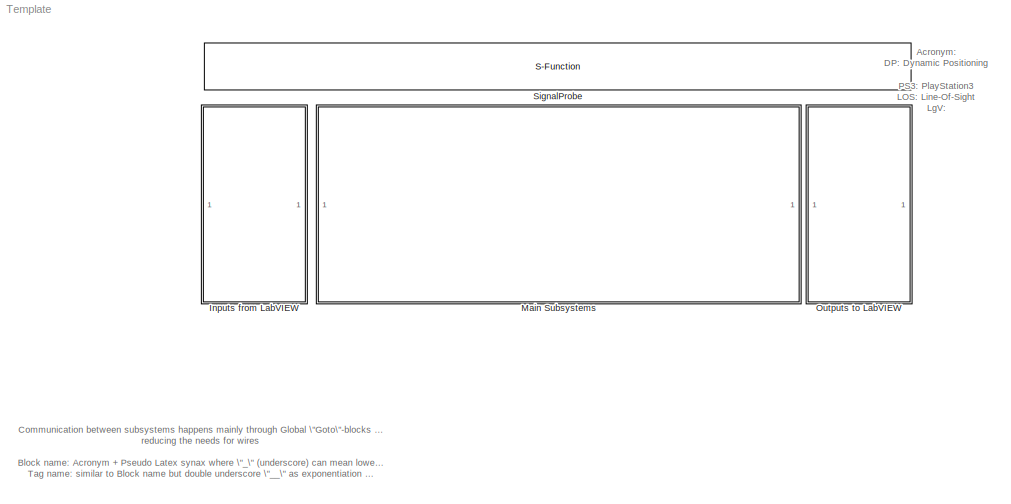
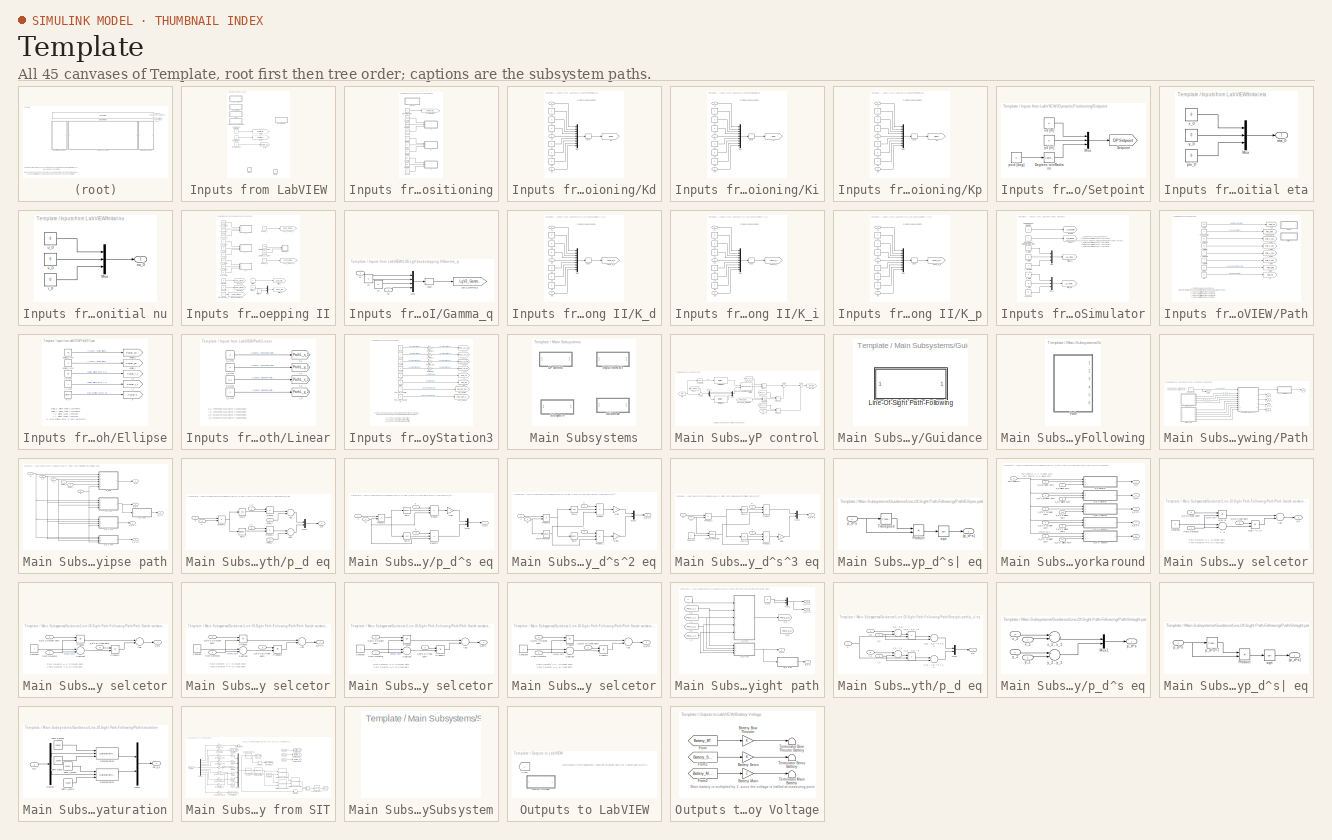
[diagram: thumbnail index - all 45 canvases of the model, root first then tree order]
MODEL Template
KIND model
BLOCK [SubSystem] Inputs from LabVIEW
  FunctionWithSeparateData = off
  MaskHideContents = off
  MinAlgLoopOccurrences = off
  Opaque = off
  Ports = []
  PropExecContextOutsideSubsystem = off
  RTWSystemCode = Auto
  RequestExecContextInheritance = off
BLOCK [Constant] Inputs from LabVIEW/Control Input Selector
  Value = 0
BLOCK [Constant] Inputs from LabVIEW/Control Mode Selector
  Value = 0
BLOCK [SubSystem] Inputs from LabVIEW/DynamicPositioning
  FunctionWithSeparateData = off
  MaskHideContents = off
  MinAlgLoopOccurrences = off
  Opaque = off
  Ports = []
  PropExecContextOutsideSubsystem = off
  RTWSystemCode = Auto
  RequestExecContextInheritance = off
BLOCK [SubSystem] Inputs from LabVIEW/DynamicPositioning/Kd
  FunctionWithSeparateData = off
  MaskHideContents = off
  MinAlgLoopOccurrences = off
  Opaque = off
  Ports = [3]
  PropExecContextOutsideSubsystem = off
  RTWSystemCode = Auto
  RequestExecContextInheritance = off
BLOCK [Inport] Inputs from LabVIEW/DynamicPositioning/Kd/11
  IconDisplay = Port number
BLOCK [Constant] Inputs from LabVIEW/DynamicPositioning/Kd/12
  Value = 0
BLOCK [Constant] Inputs from LabVIEW/DynamicPositioning/Kd/13
  Value = 0
BLOCK [Constant] Inputs from LabVIEW/DynamicPositioning/Kd/21
  Value = 0
BLOCK [Inport] Inputs from LabVIEW/DynamicPositioning/Kd/22
  IconDisplay = Port number
  Port = 2
BLOCK [Constant] Inputs from LabVIEW/DynamicPositioning/Kd/23
  Value = 0
BLOCK [Constant] Inputs from LabVIEW/DynamicPositioning/Kd/31
  Value = 0
BLOCK [Constant] Inputs from LabVIEW/DynamicPositioning/Kd/32
  Value = 0
BLOCK [Inport] Inputs from LabVIEW/DynamicPositioning/Kd/33
  IconDisplay = Port number
  Port = 3
BLOCK [Goto] Inputs from LabVIEW/DynamicPositioning/Kd/Kd
  GotoTag = DPKd
  TagVisibility = global
BLOCK [Mux] Inputs from LabVIEW/DynamicPositioning/Kd/Mux
  DisplayOption = bar
  Inputs = 9
  Ports = [9, 1]
BLOCK [Reshape] Inputs from LabVIEW/DynamicPositioning/Kd/[3x3]
  OutputDimensionality = Customize
  OutputDimensions = [3,3]
  Ports = [1, 1]
BLOCK [Constant] Inputs from LabVIEW/DynamicPositioning/Kdsurge
  Value = 50
BLOCK [Constant] Inputs from LabVIEW/DynamicPositioning/Kdsway
  Value = 30
BLOCK [Constant] Inputs from LabVIEW/DynamicPositioning/Kdyaw
  Value = 5
BLOCK [SubSystem] Inputs from LabVIEW/DynamicPositioning/Ki
  FunctionWithSeparateData = off
  MaskHideContents = off
  MinAlgLoopOccurrences = off
  Opaque = off
  Ports = [3]
  PropExecContextOutsideSubsystem = off
  RTWSystemCode = Auto
  RequestExecContextInheritance = off
BLOCK [Inport] Inputs from LabVIEW/DynamicPositioning/Ki/11
  IconDisplay = Port number
BLOCK [Constant] Inputs from LabVIEW/DynamicPositioning/Ki/12
  Value = 0
BLOCK [Constant] Inputs from LabVIEW/DynamicPositioning/Ki/13
  Value = 0
BLOCK [Constant] Inputs from LabVIEW/DynamicPositioning/Ki/21
  Value = 0
BLOCK [Inport] Inputs from LabVIEW/DynamicPositioning/Ki/22
  IconDisplay = Port number
  Port = 2
BLOCK [Constant] Inputs from LabVIEW/DynamicPositioning/Ki/23
  Value = 0
BLOCK [Constant] Inputs from LabVIEW/DynamicPositioning/Ki/31
  Value = 0
BLOCK [Constant] Inputs from LabVIEW/DynamicPositioning/Ki/32
  Value = 0
BLOCK [Inport] Inputs from LabVIEW/DynamicPositioning/Ki/33
  IconDisplay = Port number
  Port = 3
BLOCK [Goto] Inputs from LabVIEW/DynamicPositioning/Ki/Ki
  GotoTag = DPKi
  TagVisibility = global
BLOCK [Mux] Inputs from LabVIEW/DynamicPositioning/Ki/Mux
  DisplayOption = bar
  Inputs = 9
  Ports = [9, 1]
BLOCK [Reshape] Inputs from LabVIEW/DynamicPositioning/Ki/[3x3]
  OutputDimensionality = Customize
  OutputDimensions = [3,3]
  Ports = [1, 1]
BLOCK [Constant] Inputs from LabVIEW/DynamicPositioning/Kisurge
  Value = 0
BLOCK [Constant] Inputs from LabVIEW/DynamicPositioning/Kisway
  Value = 0
BLOCK [Constant] Inputs from LabVIEW/DynamicPositioning/Kiyaw
  Value = 0
BLOCK [SubSystem] Inputs from LabVIEW/DynamicPositioning/Kp
  FunctionWithSeparateData = off
  MaskHideContents = off
  MinAlgLoopOccurrences = off
  Opaque = off
  Ports = [3]
  PropExecContextOutsideSubsystem = off
  RTWSystemCode = Auto
  RequestExecContextInheritance = off
BLOCK [Inport] Inputs from LabVIEW/DynamicPositioning/Kp/11
  IconDisplay = Port number
BLOCK [Constant] Inputs from LabVIEW/DynamicPositioning/Kp/12
  Value = 0
BLOCK [Constant] Inputs from LabVIEW/DynamicPositioning/Kp/13
  Value = 0
BLOCK [Constant] Inputs from LabVIEW/DynamicPositioning/Kp/21
  Value = 0
BLOCK [Inport] Inputs from LabVIEW/DynamicPositioning/Kp/22
  IconDisplay = Port number
  Port = 2
BLOCK [Constant] Inputs from LabVIEW/DynamicPositioning/Kp/23
  Value = 0
BLOCK [Constant] Inputs from LabVIEW/DynamicPositioning/Kp/31
  Value = 0
BLOCK [Constant] Inputs from LabVIEW/DynamicPositioning/Kp/32
  Value = 0
BLOCK [Inport] Inputs from LabVIEW/DynamicPositioning/Kp/33
  IconDisplay = Port number
  Port = 3
BLOCK [Goto] Inputs from LabVIEW/DynamicPositioning/Kp/Kp
  GotoTag = DPKp
  TagVisibility = global
BLOCK [Mux] Inputs from LabVIEW/DynamicPositioning/Kp/Mux
  DisplayOption = bar
  Inputs = 9
  Ports = [9, 1]
BLOCK [Reshape] Inputs from LabVIEW/DynamicPositioning/Kp/[3x3]
  OutputDimensionality = Customize
  OutputDimensions = [3,3]
  Ports = [1, 1]
BLOCK [Constant] Inputs from LabVIEW/DynamicPositioning/Kpsurge
  Value = 2*1.5*2
BLOCK [Constant] Inputs from LabVIEW/DynamicPositioning/Kpsway
  Value = 2*10*2
BLOCK [Constant] Inputs from LabVIEW/DynamicPositioning/Kpyaw
  Value = 0.5*3
BLOCK [Constant] Inputs from LabVIEW/DynamicPositioning/Reset integrator
  Value = 0
BLOCK [SubSystem] Inputs from LabVIEW/DynamicPositioning/Setpoint
  FunctionWithSeparateData = off
  MaskHideContents = off
  MinAlgLoopOccurrences = off
  Opaque = off
  Ports = []
  PropExecContextOutsideSubsystem = off
  RTWSystemCode = Auto
  RequestExecContextInheritance = off
BLOCK [Constant] Inputs from LabVIEW/DynamicPositioning/Setpoint/ yd [m]
  Value = 0
BLOCK [Reference] Inputs from LabVIEW/DynamicPositioning/Setpoint/Degrees to\nRadians  REF=simulink_extras/Transformations/Degrees to\nRadians
  FunctionWithSeparateData = off
  Ports = [1, 1]
  RTWMemSecDataConstants = Inherit from model
  RTWMemSecDataInternal = Inherit from model
  RTWMemSecDataParameters = Inherit from model
  RTWMemSecFuncExecute = Inherit from model
  RTWMemSecFuncInitTerm = Inherit from model
  ShowPortLabels = FromPortIcon
  SourceBlock = simulink_extras/Transformations/Degrees to\nRadians
  SourceType = DegreesToRadians
  SystemSampleTime = -1
BLOCK [Mux] Inputs from LabVIEW/DynamicPositioning/Setpoint/Mux
  DisplayOption = bar
  Inputs = 3
  Ports = [3, 1]
BLOCK [Goto] Inputs from LabVIEW/DynamicPositioning/Setpoint/Setpoint
  GotoTag = DPSetpoint
  TagVisibility = global
BLOCK [Constant] Inputs from LabVIEW/DynamicPositioning/Setpoint/psid [deg]
  Value = 0
BLOCK [Constant] Inputs from LabVIEW/DynamicPositioning/Setpoint/xd [m]
  Value = 0
BLOCK [Goto] Inputs from LabVIEW/DynamicPositioning/resetIntegrator
  GotoTag = DPResetIntegrator
  TagVisibility = global
BLOCK [Constant] Inputs from LabVIEW/Enable CSE1
  Value = 0
BLOCK [Goto] Inputs from LabVIEW/Goto
  GotoTag = Control_Mode_Selector
  TagVisibility = global
BLOCK [Goto] Inputs from LabVIEW/Goto1
  GotoTag = Control_Input_Selector
  TagVisibility = global
BLOCK [Goto] Inputs from LabVIEW/Goto2
  GotoTag = Enable_CSE1
  TagVisibility = global
BLOCK [SubSystem] Inputs from LabVIEW/Initial eta
  FunctionWithSeparateData = off
  MaskHideContents = off
  MinAlgLoopOccurrences = off
  Opaque = off
  Ports = [0, 1]
  PropExecContextOutsideSubsystem = off
  RTWSystemCode = Auto
  RequestExecContextInheritance = off
BLOCK [Mux] Inputs from LabVIEW/Initial eta/Mux
  DisplayOption = bar
  Inputs = 3
  Ports = [3, 1]
BLOCK [Outport] Inputs from LabVIEW/Initial eta/eta_0
  IconDisplay = Port number
  OutDataType = fixdt(1, 16)
  OutScaling = 2^0
BLOCK [Constant] Inputs from LabVIEW/Initial eta/psi_0
  OutDataType = fixdt(1, 16)
  OutScaling = 2^0
  Value = 0
BLOCK [Constant] Inputs from LabVIEW/Initial eta/x_0
  OutDataType = fixdt(1, 16)
  OutScaling = 2^0
  Value = 0
BLOCK [Constant] Inputs from LabVIEW/Initial eta/y_0
  OutDataType = fixdt(1, 16)
  OutScaling = 2^0
  Value = 0
BLOCK [SubSystem] Inputs from LabVIEW/Initial nu
  FunctionWithSeparateData = off
  MaskHideContents = off
  MinAlgLoopOccurrences = off
  Opaque = off
  Ports = [0, 1]
  PropExecContextOutsideSubsystem = off
  RTWSystemCode = Auto
  RequestExecContextInheritance = off
BLOCK [Mux] Inputs from LabVIEW/Initial nu/Mux
  DisplayOption = bar
  Inputs = 3
  Ports = [3, 1]
BLOCK [Outport] Inputs from LabVIEW/Initial nu/nu_0
  IconDisplay = Port number
  OutDataType = fixdt(1, 16)
  OutScaling = 2^0
BLOCK [Constant] Inputs from LabVIEW/Initial nu/r_0
  OutDataType = fixdt(1, 16)
  OutScaling = 2^0
  Value = 0
BLOCK [Constant] Inputs from LabVIEW/Initial nu/u_0
  OutDataType = fixdt(1, 16)
  OutScaling = 2^0
  Value = 0
BLOCK [Constant] Inputs from LabVIEW/Initial nu/v_0
  OutDataType = fixdt(1, 16)
  OutScaling = 2^0
  Value = 0
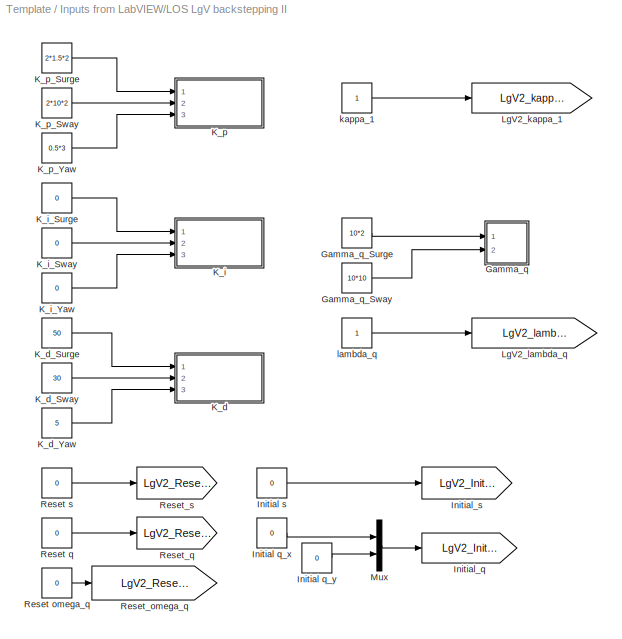
BLOCK [SubSystem] Inputs from LabVIEW/LOS LgV backstepping II
  FunctionWithSeparateData = off
  MaskHideContents = off
  MinAlgLoopOccurrences = off
  Opaque = off
  Ports = []
  PropExecContextOutsideSubsystem = off
  RTWSystemCode = Auto
  RequestExecContextInheritance = off
BLOCK [SubSystem] Inputs from LabVIEW/LOS LgV backstepping II/Gamma_q
  FunctionWithSeparateData = off
  MaskHideContents = off
  MinAlgLoopOccurrences = off
  Opaque = off
  Ports = [2]
  PropExecContextOutsideSubsystem = off
  RTWSystemCode = Auto
  RequestExecContextInheritance = off
BLOCK [Inport] Inputs from LabVIEW/LOS LgV backstepping II/Gamma_q/11
  IconDisplay = Port number
BLOCK [Constant] Inputs from LabVIEW/LOS LgV backstepping II/Gamma_q/12
  Value = 0
BLOCK [Constant] Inputs from LabVIEW/LOS LgV backstepping II/Gamma_q/21
  Value = 0
BLOCK [Inport] Inputs from LabVIEW/LOS LgV backstepping II/Gamma_q/22
  IconDisplay = Port number
  Port = 2
BLOCK [Goto] Inputs from LabVIEW/LOS LgV backstepping II/Gamma_q/LgV2_Gamma_q
  GotoTag = LgV2_Gamma_q
  TagVisibility = global
BLOCK [Mux] Inputs from LabVIEW/LOS LgV backstepping II/Gamma_q/Mux
  DisplayOption = bar
  Ports = [4, 1]
BLOCK [Reshape] Inputs from LabVIEW/LOS LgV backstepping II/Gamma_q/[2x2]
  OutputDimensionality = Customize
  OutputDimensions = [2,2]
  Ports = [1, 1]
BLOCK [Constant] Inputs from LabVIEW/LOS LgV backstepping II/Gamma_q_Surge
  Value = 10*2
BLOCK [Constant] Inputs from LabVIEW/LOS LgV backstepping II/Gamma_q_Sway
  Value = 10*10
BLOCK [Constant] Inputs from LabVIEW/LOS LgV backstepping II/Initial q_x
  OutDataType = fixdt(1, 16)
  OutScaling = 2^0
  Value = 0
BLOCK [Constant] Inputs from LabVIEW/LOS LgV backstepping II/Initial q_y
  OutDataType = fixdt(1, 16)
  OutScaling = 2^0
  Value = 0
BLOCK [Constant] Inputs from LabVIEW/LOS LgV backstepping II/Initial s
  OutDataType = fixdt(1, 16)
  OutScaling = 2^0
  Value = 0
BLOCK [Goto] Inputs from LabVIEW/LOS LgV backstepping II/Initial_q
  GotoTag = LgV2_Initial_q
  TagVisibility = global
BLOCK [Goto] Inputs from LabVIEW/LOS LgV backstepping II/Initial_s
  GotoTag = LgV2_Initial_s
  TagVisibility = global
BLOCK [SubSystem] Inputs from LabVIEW/LOS LgV backstepping II/K_d
  FunctionWithSeparateData = off
  MaskHideContents = off
  MinAlgLoopOccurrences = off
  Opaque = off
  Ports = [3]
  PropExecContextOutsideSubsystem = off
  RTWSystemCode = Auto
  RequestExecContextInheritance = off
BLOCK [Inport] Inputs from LabVIEW/LOS LgV backstepping II/K_d/11
  IconDisplay = Port number
BLOCK [Constant] Inputs from LabVIEW/LOS LgV backstepping II/K_d/12
  Value = 0
BLOCK [Constant] Inputs from LabVIEW/LOS LgV backstepping II/K_d/13
  Value = 0
BLOCK [Constant] Inputs from LabVIEW/LOS LgV backstepping II/K_d/21
  Value = 0
BLOCK [Inport] Inputs from LabVIEW/LOS LgV backstepping II/K_d/22
  IconDisplay = Port number
  Port = 2
BLOCK [Constant] Inputs from LabVIEW/LOS LgV backstepping II/K_d/23
  Value = 0
BLOCK [Constant] Inputs from LabVIEW/LOS LgV backstepping II/K_d/31
  Value = 0
BLOCK [Constant] Inputs from LabVIEW/LOS LgV backstepping II/K_d/32
  Value = 0
BLOCK [Inport] Inputs from LabVIEW/LOS LgV backstepping II/K_d/33
  IconDisplay = Port number
  Port = 3
BLOCK [Goto] Inputs from LabVIEW/LOS LgV backstepping II/K_d/LgV2_K_d
  GotoTag = LgV2_K_d
  TagVisibility = global
BLOCK [Mux] Inputs from LabVIEW/LOS LgV backstepping II/K_d/Mux
  DisplayOption = bar
  Inputs = 9
  Ports = [9, 1]
BLOCK [Reshape] Inputs from LabVIEW/LOS LgV backstepping II/K_d/[3x3]
  OutputDimensionality = Customize
  OutputDimensions = [3,3]
  Ports = [1, 1]
BLOCK [Constant] Inputs from LabVIEW/LOS LgV backstepping II/K_d_Surge
  Value = 50
BLOCK [Constant] Inputs from LabVIEW/LOS LgV backstepping II/K_d_Sway
  Value = 30
BLOCK [Constant] Inputs from LabVIEW/LOS LgV backstepping II/K_d_Yaw
  Value = 5
BLOCK [SubSystem] Inputs from LabVIEW/LOS LgV backstepping II/K_i
  FunctionWithSeparateData = off
  MaskHideContents = off
  MinAlgLoopOccurrences = off
  Opaque = off
  Ports = [3]
  PropExecContextOutsideSubsystem = off
  RTWSystemCode = Auto
  RequestExecContextInheritance = off
BLOCK [Inport] Inputs from LabVIEW/LOS LgV backstepping II/K_i/11
  IconDisplay = Port number
BLOCK [Constant] Inputs from LabVIEW/LOS LgV backstepping II/K_i/12
  Value = 0
BLOCK [Constant] Inputs from LabVIEW/LOS LgV backstepping II/K_i/13
  Value = 0
BLOCK [Constant] Inputs from LabVIEW/LOS LgV backstepping II/K_i/21
  Value = 0
BLOCK [Inport] Inputs from LabVIEW/LOS LgV backstepping II/K_i/22
  IconDisplay = Port number
  Port = 2
BLOCK [Constant] Inputs from LabVIEW/LOS LgV backstepping II/K_i/23
  Value = 0
BLOCK [Constant] Inputs from LabVIEW/LOS LgV backstepping II/K_i/31
  Value = 0
BLOCK [Constant] Inputs from LabVIEW/LOS LgV backstepping II/K_i/32
  Value = 0
BLOCK [Inport] Inputs from LabVIEW/LOS LgV backstepping II/K_i/33
  IconDisplay = Port number
  Port = 3
BLOCK [Goto] Inputs from LabVIEW/LOS LgV backstepping II/K_i/LgV2_K_i
  GotoTag = LgV2_K_i
  TagVisibility = global
BLOCK [Mux] Inputs from LabVIEW/LOS LgV backstepping II/K_i/Mux
  DisplayOption = bar
  Inputs = 9
  Ports = [9, 1]
BLOCK [Reshape] Inputs from LabVIEW/LOS LgV backstepping II/K_i/[3x3]
  OutputDimensionality = Customize
  OutputDimensions = [3,3]
  Ports = [1, 1]
BLOCK [Constant] Inputs from LabVIEW/LOS LgV backstepping II/K_i_Surge
  Value = 0
BLOCK [Constant] Inputs from LabVIEW/LOS LgV backstepping II/K_i_Sway
  Value = 0
BLOCK [Constant] Inputs from LabVIEW/LOS LgV backstepping II/K_i_Yaw
  Value = 0
BLOCK [SubSystem] Inputs from LabVIEW/LOS LgV backstepping II/K_p
  FunctionWithSeparateData = off
  MaskHideContents = off
  MinAlgLoopOccurrences = off
  Opaque = off
  Ports = [3]
  PropExecContextOutsideSubsystem = off
  RTWSystemCode = Auto
  RequestExecContextInheritance = off
BLOCK [Inport] Inputs from LabVIEW/LOS LgV backstepping II/K_p/11
  IconDisplay = Port number
BLOCK [Constant] Inputs from LabVIEW/LOS LgV backstepping II/K_p/12
  Value = 0
BLOCK [Constant] Inputs from LabVIEW/LOS LgV backstepping II/K_p/13
  Value = 0
BLOCK [Constant] Inputs from LabVIEW/LOS LgV backstepping II/K_p/21
  Value = 0
BLOCK [Inport] Inputs from LabVIEW/LOS LgV backstepping II/K_p/22
  IconDisplay = Port number
  Port = 2
BLOCK [Constant] Inputs from LabVIEW/LOS LgV backstepping II/K_p/23
  Value = 0
BLOCK [Constant] Inputs from LabVIEW/LOS LgV backstepping II/K_p/31
  Value = 0
BLOCK [Constant] Inputs from LabVIEW/LOS LgV backstepping II/K_p/32
  Value = 0
BLOCK [Inport] Inputs from LabVIEW/LOS LgV backstepping II/K_p/33
  IconDisplay = Port number
  Port = 3
BLOCK [Goto] Inputs from LabVIEW/LOS LgV backstepping II/K_p/LgV2_K_p
  GotoTag = LgV2_K_p
  TagVisibility = global
BLOCK [Mux] Inputs from LabVIEW/LOS LgV backstepping II/K_p/Mux
  DisplayOption = bar
  Inputs = 9
  Ports = [9, 1]
BLOCK [Reshape] Inputs from LabVIEW/LOS LgV backstepping II/K_p/[3x3]
  OutputDimensionality = Customize
  OutputDimensions = [3,3]
  Ports = [1, 1]
BLOCK [Constant] Inputs from LabVIEW/LOS LgV backstepping II/K_p_Surge
  Value = 2*1.5*2
BLOCK [Constant] Inputs from LabVIEW/LOS LgV backstepping II/K_p_Sway
  Value = 2*10*2
BLOCK [Constant] Inputs from LabVIEW/LOS LgV backstepping II/K_p_Yaw
  Value = 0.5*3
BLOCK [Goto] Inputs from LabVIEW/LOS LgV backstepping II/LgV2_kappa_1
  GotoTag = LgV2_kappa_1
  TagVisibility = global
BLOCK [Goto] Inputs from LabVIEW/LOS LgV backstepping II/LgV2_lambda_q
  GotoTag = LgV2_lambda_q
  TagVisibility = global
BLOCK [Mux] Inputs from LabVIEW/LOS LgV backstepping II/Mux
  DisplayOption = bar
  Inputs = 2
  Ports = [2, 1]
BLOCK [Constant] Inputs from LabVIEW/LOS LgV backstepping II/Reset omega_q
  Value = 0
BLOCK [Constant] Inputs from LabVIEW/LOS LgV backstepping II/Reset q
  Value = 0
BLOCK [Constant] Inputs from LabVIEW/LOS LgV backstepping II/Reset s
  Value = 0
BLOCK [Goto] Inputs from LabVIEW/LOS LgV backstepping II/Reset_omega_q
  GotoTag = LgV2_Reset_omega_q
  TagVisibility = global
BLOCK [Goto] Inputs from LabVIEW/LOS LgV backstepping II/Reset_q
  GotoTag = LgV2_Reset_q
  TagVisibility = global
BLOCK [Goto] Inputs from LabVIEW/LOS LgV backstepping II/Reset_s
  GotoTag = LgV2_Reset_s
  TagVisibility = global
BLOCK [Constant] Inputs from LabVIEW/LOS LgV backstepping II/kappa_1
BLOCK [Constant] Inputs from LabVIEW/LOS LgV backstepping II/lambda_q
BLOCK [SubSystem] Inputs from LabVIEW/Linear Simulator
  FunctionWithSeparateData = off
  MaskHideContents = off
  MinAlgLoopOccurrences = off
  Opaque = off
  Ports = []
  PropExecContextOutsideSubsystem = off
  RTWSystemCode = Auto
  RequestExecContextInheritance = off
BLOCK [Goto] Inputs from LabVIEW/Linear Simulator/Enable
  GotoTag = LS_Enable
  TagVisibility = global
BLOCK [Constant] Inputs from LabVIEW/Linear Simulator/Enable Linear Simulator
  Value = 0
BLOCK [Goto] Inputs from LabVIEW/Linear Simulator/Initial_eta
  GotoTag = LS_Initial_eta
  TagVisibility = global
BLOCK [Goto] Inputs from LabVIEW/Linear Simulator/Initial_nu
  GotoTag = LS_Initial_nu
  TagVisibility = global
BLOCK [Mux] Inputs from LabVIEW/Linear Simulator/Mux
  DisplayOption = bar
  Inputs = 3
  Ports = [3, 1]
BLOCK [Mux] Inputs from LabVIEW/Linear Simulator/Mux1
  DisplayOption = bar
  Inputs = 3
  Ports = [3, 1]
BLOCK [Goto] Inputs from LabVIEW/Linear Simulator/Reset
  GotoTag = LS_Reset
  TagVisibility = global
BLOCK [Constant] Inputs from LabVIEW/Linear Simulator/Reset Linear Simulator integrator
  Value = 0
BLOCK [Constant] Inputs from LabVIEW/Linear Simulator/psi_0 [rad]
  OutDataType = fixdt(1, 16)
  OutScaling = 2^0
  Value = 0
BLOCK [Constant] Inputs from LabVIEW/Linear Simulator/r_0 [rad//s]
  OutDataType = fixdt(1, 16)
  OutScaling = 2^0
  Value = 0
BLOCK [Constant] Inputs from LabVIEW/Linear Simulator/u_0 [m//s]
  OutDataType = fixdt(1, 16)
  OutScaling = 2^0
  Value = 0
BLOCK [Constant] Inputs from LabVIEW/Linear Simulator/v_0 [m//s]
  OutDataType = fixdt(1, 16)
  OutScaling = 2^0
  Value = 0
BLOCK [Constant] Inputs from LabVIEW/Linear Simulator/x_0 [m]
  OutDataType = fixdt(1, 16)
  OutScaling = 2^0
  Value = 0
BLOCK [Constant] Inputs from LabVIEW/Linear Simulator/y_0 [m]
  OutDataType = fixdt(1, 16)
  OutScaling = 2^0
  Value = 0
BLOCK [SubSystem] Inputs from LabVIEW/Path
  FunctionWithSeparateData = off
  MaskHideContents = off
  MinAlgLoopOccurrences = off
  Opaque = off
  Ports = []
  PropExecContextOutsideSubsystem = off
  RTWSystemCode = Auto
  RequestExecContextInheritance = off
BLOCK [Goto] Inputs from LabVIEW/Path/Delta
  GotoTag = Path_Delta
  TagVisibility = global
BLOCK [Constant] Inputs from LabVIEW/Path/Delta [m]
  OutDataType = fixdt(1, 16)
  OutScaling = 2^0
  Value = 2
BLOCK [SubSystem] Inputs from LabVIEW/Path/Ellipse
  FunctionWithSeparateData = off
  MaskHideContents = off
  MinAlgLoopOccurrences = off
  Opaque = off
  Ports = []
  PropExecContextOutsideSubsystem = off
  RTWSystemCode = Auto
  RequestExecContextInheritance = off
BLOCK [Goto] Inputs from LabVIEW/Path/Ellipse/k
  GotoTag = PathE_k
  TagVisibility = global
BLOCK [Constant] Inputs from LabVIEW/Path/Ellipse/k [-]
  OutDataType = fixdt(1, 16)
  OutScaling = 2^0
  Value = pi/180*2
BLOCK [Goto] Inputs from LabVIEW/Path/Ellipse/origin_x
  GotoTag = PathE_origin_x
  TagVisibility = global
BLOCK [Constant] Inputs from LabVIEW/Path/Ellipse/origin_x [m]
  OutDataType = fixdt(1, 16)
  OutScaling = 2^0
  Value = 4.5
BLOCK [Goto] Inputs from LabVIEW/Path/Ellipse/origin_y
  GotoTag = PathE_origin_y
  TagVisibility = global
BLOCK [Constant] Inputs from LabVIEW/Path/Ellipse/origo_y [m]
  OutDataType = fixdt(1, 16)
  OutScaling = 2^0
  Value = 0
BLOCK [Goto] Inputs from LabVIEW/Path/Ellipse/r_x
  GotoTag = PathE_r_x
  TagVisibility = global
BLOCK [Constant] Inputs from LabVIEW/Path/Ellipse/r_x [m]
  OutDataType = fixdt(1, 16)
  OutScaling = 2^0
  Value = 5.5
BLOCK [Goto] Inputs from LabVIEW/Path/Ellipse/r_y
  GotoTag = PathE_r_y
  TagVisibility = global
BLOCK [Constant] Inputs from LabVIEW/Path/Ellipse/r_y [m]
  OutDataType = fixdt(1, 16)
  OutScaling = 2^0
  Value = 2
BLOCK [SubSystem] Inputs from LabVIEW/Path/Linear
  FunctionWithSeparateData = off
  MaskHideContents = off
  MinAlgLoopOccurrences = off
  Opaque = off
  Ports = []
  PropExecContextOutsideSubsystem = off
  RTWSystemCode = Auto
  RequestExecContextInheritance = off
BLOCK [Goto] Inputs from LabVIEW/Path/Linear/x_1
  GotoTag = PathL_x_1
  TagVisibility = global
BLOCK [Constant] Inputs from LabVIEW/Path/Linear/x_1 [m]
  OutDataType = fixdt(1, 16)
  OutScaling = 2^0
  Value = 0
BLOCK [Goto] Inputs from LabVIEW/Path/Linear/x_2
  GotoTag = PathL_x_2
  TagVisibility = global
BLOCK [Constant] Inputs from LabVIEW/Path/Linear/x_2 [m]
  OutDataType = fixdt(1, 16)
  OutScaling = 2^0
  Value = 5.5
BLOCK [Goto] Inputs from LabVIEW/Path/Linear/y_1
  GotoTag = PathL_y_1
  TagVisibility = global
BLOCK [Constant] Inputs from LabVIEW/Path/Linear/y_1 [m]
  OutDataType = fixdt(1, 16)
  OutScaling = 2^0
  Value = 0
BLOCK [Goto] Inputs from LabVIEW/Path/Linear/y_2
  GotoTag = PathL_y_2
  TagVisibility = global
BLOCK [Constant] Inputs from LabVIEW/Path/Linear/y_2 [m]
  OutDataType = fixdt(1, 16)
  OutScaling = 2^0
  Value = 2
BLOCK [Goto] Inputs from LabVIEW/Path/Path Selector
  GotoTag = Path_Selector
  TagVisibility = global
BLOCK [Constant] Inputs from LabVIEW/Path/Path Selector  [-]
  Value = 0
BLOCK [Goto] Inputs from LabVIEW/Path/my
  GotoTag = Path_my
  TagVisibility = global
BLOCK [Constant] Inputs from LabVIEW/Path/my [-]
  OutDataType = fixdt(1, 16)
  OutScaling = 2^0
  Value = 10
BLOCK [Goto] Inputs from LabVIEW/Path/ud
  GotoTag = Path_ud
  TagVisibility = global
BLOCK [Constant] Inputs from LabVIEW/Path/ud [m]
  OutDataType = fixdt(1, 16)
  OutScaling = 2^0
  Value = 0.15
BLOCK [Goto] Inputs from LabVIEW/Path/x_dmax
  GotoTag = Path_x_dmax
  TagVisibility = global
BLOCK [Constant] Inputs from LabVIEW/Path/x_dmax [m]
  Value = 40
BLOCK [Goto] Inputs from LabVIEW/Path/x_dmin
  GotoTag = Path_x_dmin
  TagVisibility = global
BLOCK [Constant] Inputs from LabVIEW/Path/x_dmin [m]
  Value = -40
BLOCK [Goto] Inputs from LabVIEW/Path/y_dmax
  GotoTag = Path_x_dmax
  TagVisibility = global
BLOCK [Constant] Inputs from LabVIEW/Path/y_dmax [m]
  Value = 7
BLOCK [Goto] Inputs from LabVIEW/Path/y_dmin
  GotoTag = Path_x_dmin
  TagVisibility = global
BLOCK [Constant] Inputs from LabVIEW/Path/y_dmin [m]
  Value = -7
BLOCK [SubSystem] Inputs from LabVIEW/PlayStation3
  FunctionWithSeparateData = off
  MaskHideContents = off
  MinAlgLoopOccurrences = off
  Opaque = off
  Ports = []
  PropExecContextOutsideSubsystem = off
  RTWSystemCode = Auto
  RequestExecContextInheritance = off
BLOCK [Goto] Inputs from LabVIEW/PlayStation3/AS_LX
  GotoTag = PS3_AS_LX
  TagVisibility = global
BLOCK [Constant] Inputs from LabVIEW/PlayStation3/AS_LX [-] 
  Value = 0
BLOCK [Goto] Inputs from LabVIEW/PlayStation3/AS_LY
  GotoTag = PS3_AS_LY
  TagVisibility = global
BLOCK [Constant] Inputs from LabVIEW/PlayStation3/AS_LY [-]
  Value = 0
BLOCK [Goto] Inputs from LabVIEW/PlayStation3/AS_RX
  GotoTag = PS3_AS_RX
  TagVisibility = global
BLOCK [Constant] Inputs from LabVIEW/PlayStation3/AS_RX [-]
  Value = 0
BLOCK [Goto] Inputs from LabVIEW/PlayStation3/AS_RY
  GotoTag = PS3_AS_RY
  TagVisibility = global
BLOCK [Constant] Inputs from LabVIEW/PlayStation3/AS_RY [-]
  Value = 0
BLOCK [Goto] Inputs from LabVIEW/PlayStation3/BT_Power
  GotoTag = PS3_BT_Power
  TagVisibility = global
BLOCK [Goto] Inputs from LabVIEW/PlayStation3/L2
  GotoTag = PS3_L2
  TagVisibility = global
BLOCK [Constant] Inputs from LabVIEW/PlayStation3/L2 [-]
  Value = 0
BLOCK [Constant] Inputs from LabVIEW/PlayStation3/PS3_BT_Power  [-]
  Value = 0
BLOCK [Constant] Inputs from LabVIEW/PlayStation3/PS3_VSP_Speed  [-]
  Value = 0
BLOCK [Goto] Inputs from LabVIEW/PlayStation3/R2
  GotoTag = PS3_R2
  TagVisibility = global
BLOCK [Constant] Inputs from LabVIEW/PlayStation3/R2 [-]
  Value = 0
BLOCK [Gain] Inputs from LabVIEW/PlayStation3/ScalingLX
  Gain = 1/32767
  OutDataTypeMode = Inherit via internal rule
  OutDataTypeStr = Inherit: Inherit via internal rule
  ParamDataTypeStr = Inherit: Inherit via internal rule
  ParameterDataTypeMode = Inherit via internal rule
  SaturateOnIntegerOverflow = off
BLOCK [Gain] Inputs from LabVIEW/PlayStation3/ScalingLY
  Gain = 1/32767
  OutDataTypeMode = Inherit via internal rule
  OutDataTypeStr = Inherit: Inherit via internal rule
  ParamDataTypeStr = Inherit: Inherit via internal rule
  ParameterDataTypeMode = Inherit via internal rule
  SaturateOnIntegerOverflow = off
BLOCK [Gain] Inputs from LabVIEW/PlayStation3/ScalingRY
  Gain = 1/32767
  OutDataTypeMode = Inherit via internal rule
  OutDataTypeStr = Inherit: Inherit via internal rule
  ParamDataTypeStr = Inherit: Inherit via internal rule
  ParameterDataTypeMode = Inherit via internal rule
  SaturateOnIntegerOverflow = off
BLOCK [Gain] Inputs from LabVIEW/PlayStation3/Scaling_RX
  Gain = 1/32767
  OutDataTypeMode = Inherit via internal rule
  OutDataTypeStr = Inherit: Inherit via internal rule
  ParamDataTypeStr = Inherit: Inherit via internal rule
  ParameterDataTypeMode = Inherit via internal rule
  SaturateOnIntegerOverflow = off
BLOCK [Goto] Inputs from LabVIEW/PlayStation3/VSP_Speed
  GotoTag = PS3_VSP_Speed
  TagVisibility = global
BLOCK [SubSystem] Main Subsystems
  FunctionWithSeparateData = off
  MaskHideContents = off
  MinAlgLoopOccurrences = off
  Opaque = off
  Ports = []
  PropExecContextOutsideSubsystem = off
  RTWSystemCode = Auto
  RequestExecContextInheritance = off
BLOCK [SubSystem] Main Subsystems/DP control
  FunctionWithSeparateData = off
  MaskHideContents = off
  MinAlgLoopOccurrences = off
  Opaque = off
  Ports = []
  PropExecContextOutsideSubsystem = off
  RTWSystemCode = Auto
  RequestExecContextInheritance = off
BLOCK [From] Main Subsystems/DP control/DP_K_d
  GotoTag = DP_K_d
BLOCK [From] Main Subsystems/DP control/DP_K_i
  GotoTag = DP_K_i
BLOCK [From] Main Subsystems/DP control/DP_K_p
  GotoTag = DP_K_p
BLOCK [Goto] Main Subsystems/DP control/DP_tau
  GotoTag = DP_tau
  TagVisibility = global
BLOCK [Demux] Main Subsystems/DP control/Demux
  DisplayOption = bar
  Outputs = 3
  Ports = [1, 3]
BLOCK [Integrator] Main Subsystems/DP control/Integrator
  ExternalReset = level
  Ports = [2, 1]
BLOCK [Mux] Main Subsystems/DP control/Mux
  DisplayOption = bar
  Inputs = 3
  Ports = [3, 1]
BLOCK [Product] Main Subsystems/DP control/Product
  InputSameDT = off
  Multiplication = Matrix(*)
  OutDataType = fixdt(1, 16)
  OutDataTypeMode = Inherit via internal rule
  OutDataTypeStr = Inherit: Inherit via internal rule
  OutScaling = 2^0
  Ports = [2, 1]
  SaturateOnIntegerOverflow = off
BLOCK [Product] Main Subsystems/DP control/Product1
  InputSameDT = off
  Multiplication = Matrix(*)
  OutDataType = fixdt(1, 16)
  OutDataTypeMode = Inherit via internal rule
  OutDataTypeStr = Inherit: Inherit via internal rule
  OutScaling = 2^0
  Ports = [2, 1]
  SaturateOnIntegerOverflow = off
BLOCK [Product] Main Subsystems/DP control/Product2
  InputSameDT = off
  Multiplication = Matrix(*)
  OutDataType = fixdt(1, 16)
  OutDataTypeMode = Inherit via internal rule
  OutDataTypeStr = Inherit: Inherit via internal rule
  OutScaling = 2^0
  Ports = [2, 1]
  SaturateOnIntegerOverflow = off
BLOCK [From] Main Subsystems/DP control/Reset_DP_integrator
  GotoTag = Reset_DP_integrator
BLOCK [Sum] Main Subsystems/DP control/Sum1
  IconShape = round
  Inputs = |+-
  Ports = [2, 1]
BLOCK [Sum] Main Subsystems/DP control/Sum2
  IconShape = round
  Inputs = +-|
  Ports = [2, 1]
BLOCK [Sum] Main Subsystems/DP control/Sum3
  IconShape = round
  Inputs = |++
  Ports = [2, 1]
BLOCK [Reference] Main Subsystems/DP control/Transposed rotation\n matrix in yaw1  REF=marine_gnc/Models/ Kinematics/Transposed rotation\n matrix in yaw  (lib defined in mdl_10d96c221ba8, mdl_45f1105420c6)
  FunctionWithSeparateData = off
  Ports = [2, 1]
  RTWMemSecDataConstants = Inherit from model
  RTWMemSecDataInternal = Inherit from model
  RTWMemSecDataParameters = Inherit from model
  RTWMemSecFuncExecute = Inherit from model
  RTWMemSecFuncInitTerm = Inherit from model
  ShowPortLabels = FromPortIcon
  SourceBlock = marine_gnc/Models/ Kinematics/Transposed rotation\n matrix in yaw
  SystemSampleTime = -1
BLOCK [Reference] Main Subsystems/DP control/[-inf inf] to [-pi pi]  REF=marine_gnc/Utilities/Math Operations/[-inf inf] to [-pi pi]  (lib defined in mdl_10d96c221ba8, mdl_45f1105420c6)
  FunctionWithSeparateData = off
  Ports = [1, 1]
  RTWMemSecDataConstants = Inherit from model
  RTWMemSecDataInternal = Inherit from model
  RTWMemSecDataParameters = Inherit from model
  RTWMemSecFuncExecute = Inherit from model
  RTWMemSecFuncInitTerm = Inherit from model
  ShowPortLabels = FromPortIcon
  SourceBlock = marine_gnc/Utilities/Math Operations/[-inf inf] to [-pi pi]
  SourceType = [-inf inf] to [-pi pi]
  SystemSampleTime = -1
BLOCK [Reference] Main Subsystems/DP control/[-inf inf] to [-pi pi]1  REF=marine_gnc/Utilities/Math Operations/[-inf inf] to [-pi pi]  (lib defined in mdl_10d96c221ba8, mdl_45f1105420c6)
  FunctionWithSeparateData = off
  Ports = [1, 1]
  RTWMemSecDataConstants = Inherit from model
  RTWMemSecDataInternal = Inherit from model
  RTWMemSecDataParameters = Inherit from model
  RTWMemSecFuncExecute = Inherit from model
  RTWMemSecFuncInitTerm = Inherit from model
  ShowPortLabels = FromPortIcon
  SourceBlock = marine_gnc/Utilities/Math Operations/[-inf inf] to [-pi pi]
  SourceType = [-inf inf] to [-pi pi]
  SystemSampleTime = -1
BLOCK [From] Main Subsystems/DP control/eta
  GotoTag = eta
BLOCK [From] Main Subsystems/DP control/eta_d
  GotoTag = DP_Setpoint
BLOCK [From] Main Subsystems/DP control/nu
  GotoTag = nu
BLOCK [Fcn] Main Subsystems/DP control/yaw angle
  Expr = u(3)
BLOCK [SubSystem] Main Subsystems/Guidance
  FunctionWithSeparateData = off
  MaskHideContents = off
  MinAlgLoopOccurrences = off
  Opaque = off
  Ports = []
  PropExecContextOutsideSubsystem = off
  RTWSystemCode = Auto
  RequestExecContextInheritance = off
BLOCK [SubSystem] Main Subsystems/Guidance/Line-Of-Sight Path-Following
  FunctionWithSeparateData = off
  MaskHideContents = off
  MinAlgLoopOccurrences = off
  Opaque = off
  Ports = []
  PropExecContextOutsideSubsystem = off
  RTWSystemCode = Auto
  RequestExecContextInheritance = off
BLOCK [SubSystem] Main Subsystems/Guidance/Line-Of-Sight Path-Following/Path
  FunctionWithSeparateData = off
  MaskHideContents = off
  MinAlgLoopOccurrences = off
  Opaque = off
  Ports = [0, 6]
  PropExecContextOutsideSubsystem = off
  RTWSystemCode = Auto
  RequestExecContextInheritance = off
BLOCK [SubSystem] Main Subsystems/Guidance/Line-Of-Sight Path-Following/Path/Ellipse path
  FunctionWithSeparateData = off
  MaskHideContents = off
  MinAlgLoopOccurrences = off
  Opaque = off
  Ports = [6, 5]
  PropExecContextOutsideSubsystem = off
  RTWSystemCode = Auto
  RequestExecContextInheritance = off
BLOCK [Inport] Main Subsystems/Guidance/Line-Of-Sight Path-Following/Path/Ellipse path/k
  IconDisplay = Port number
  Port = 6
BLOCK [Inport] Main Subsystems/Guidance/Line-Of-Sight Path-Following/Path/Ellipse path/origo_x
  IconDisplay = Port number
  Port = 2
BLOCK [Inport] Main Subsystems/Guidance/Line-Of-Sight Path-Following/Path/Ellipse path/origo_y
  IconDisplay = Port number
  Port = 3
BLOCK [Outport] Main Subsystems/Guidance/Line-Of-Sight Path-Following/Path/Ellipse path/p_d
  IconDisplay = Port number
BLOCK [SubSystem] Main Subsystems/Guidance/Line-Of-Sight Path-Following/Path/Ellipse path/p_d eq
  FunctionWithSeparateData = off
  MaskHideContents = off
  MinAlgLoopOccurrences = off
  Opaque = off
  Ports = [6, 1]
  PropExecContextOutsideSubsystem = off
  RTWSystemCode = Auto
  RequestExecContextInheritance = off
BLOCK [Sum] Main Subsystems/Guidance/Line-Of-Sight Path-Following/Path/Ellipse path/p_d eq/Add
  InputSameDT = off
  OutDataType = fixdt(1, 16)
  OutDataTypeMode = Inherit via internal rule
  OutDataTypeStr = Inherit: Inherit via internal rule
  OutScaling = 2^-10
  Ports = [2, 1]
  SaturateOnIntegerOverflow = off
BLOCK [Sum] Main Subsystems/Guidance/Line-Of-Sight Path-Following/Path/Ellipse path/p_d eq/Add1
  InputSameDT = off
  OutDataType = fixdt(1, 16)
  OutDataTypeMode = Inherit via internal rule
  OutDataTypeStr = Inherit: Inherit via internal rule
  OutScaling = 2^-10
  Ports = [2, 1]
  SaturateOnIntegerOverflow = off
BLOCK [Mux] Main Subsystems/Guidance/Line-Of-Sight Path-Following/Path/Ellipse path/p_d eq/Mux1
  DisplayOption = bar
  Inputs = 2
  Ports = [2, 1]
BLOCK [Product] Main Subsystems/Guidance/Line-Of-Sight Path-Following/Path/Ellipse path/p_d eq/Product
  InputSameDT = off
  OutDataType = fixdt(1, 16)
  OutDataTypeMode = Inherit via internal rule
  OutDataTypeStr = Inherit: Inherit via internal rule
  OutScaling = 2^0
  Ports = [2, 1]
  SaturateOnIntegerOverflow = off
BLOCK [Product] Main Subsystems/Guidance/Line-Of-Sight Path-Following/Path/Ellipse path/p_d eq/Product1
  InputSameDT = off
  OutDataType = fixdt(1, 16)
  OutDataTypeMode = Inherit via internal rule
  OutDataTypeStr = Inherit: Inherit via internal rule
  OutScaling = 2^0
  Ports = [2, 1]
  SaturateOnIntegerOverflow = off
BLOCK [Product] Main Subsystems/Guidance/Line-Of-Sight Path-Following/Path/Ellipse path/p_d eq/Product2
  InputSameDT = off
  OutDataType = fixdt(1, 16)
  OutDataTypeMode = Inherit via internal rule
  OutDataTypeStr = Inherit: Inherit via internal rule
  OutScaling = 2^0
  Ports = [2, 1]
  SaturateOnIntegerOverflow = off
BLOCK [Trigonometry] Main Subsystems/Guidance/Line-Of-Sight Path-Following/Path/Ellipse path/p_d eq/cos(s)
  Operator = cos
  Ports = [1, 1]
BLOCK [Inport] Main Subsystems/Guidance/Line-Of-Sight Path-Following/Path/Ellipse path/p_d eq/k
  IconDisplay = Port number
  Port = 6
BLOCK [Inport] Main Subsystems/Guidance/Line-Of-Sight Path-Following/Path/Ellipse path/p_d eq/origo_x
  IconDisplay = Port number
  Port = 4
BLOCK [Inport] Main Subsystems/Guidance/Line-Of-Sight Path-Following/Path/Ellipse path/p_d eq/origo_y
  IconDisplay = Port number
  Port = 5
BLOCK [Outport] Main Subsystems/Guidance/Line-Of-Sight Path-Following/Path/Ellipse path/p_d eq/p_d
  IconDisplay = Port number
BLOCK [Inport] Main Subsystems/Guidance/Line-Of-Sight Path-Following/Path/Ellipse path/p_d eq/r_x
  IconDisplay = Port number
  Port = 2
BLOCK [Inport] Main Subsystems/Guidance/Line-Of-Sight Path-Following/Path/Ellipse path/p_d eq/r_y
  IconDisplay = Port number
  Port = 3
BLOCK [Inport] Main Subsystems/Guidance/Line-Of-Sight Path-Following/Path/Ellipse path/p_d eq/s
  IconDisplay = Port number
BLOCK [Trigonometry] Main Subsystems/Guidance/Line-Of-Sight Path-Following/Path/Ellipse path/p_d eq/sin(s)
  Ports = [1, 1]
BLOCK [Outport] Main Subsystems/Guidance/Line-Of-Sight Path-Following/Path/Ellipse path/p_d^s
  IconDisplay = Port number
  Port = 2
BLOCK [SubSystem] Main Subsystems/Guidance/Line-Of-Sight Path-Following/Path/Ellipse path/p_d^s eq
  FunctionWithSeparateData = off
  MaskHideContents = off
  MinAlgLoopOccurrences = off
  Opaque = off
  Ports = [4, 1]
  PropExecContextOutsideSubsystem = off
  RTWSystemCode = Auto
  RequestExecContextInheritance = off
BLOCK [Gain] Main Subsystems/Guidance/Line-Of-Sight Path-Following/Path/Ellipse path/p_d^s eq/Gain
  Gain = -1
  OutDataType = fixdt(1, 16)
  OutDataTypeMode = Inherit via internal rule
  OutDataTypeStr = Inherit: Inherit via internal rule
  OutScaling = 2^0
  ParamDataTypeStr = Inherit: Inherit via internal rule
  ParameterDataType = fixdt(1, 16)
  ParameterDataTypeMode = Inherit via internal rule
  ParameterScaling = 2^0
  SaturateOnIntegerOverflow = off
BLOCK [Mux] Main Subsystems/Guidance/Line-Of-Sight Path-Following/Path/Ellipse path/p_d^s eq/Mux1
  DisplayOption = bar
  Inputs = 2
  Ports = [2, 1]
BLOCK [Product] Main Subsystems/Guidance/Line-Of-Sight Path-Following/Path/Ellipse path/p_d^s eq/Product
  InputSameDT = off
  Inputs = 3
  OutDataType = fixdt(1, 16)
  OutDataTypeMode = Inherit via internal rule
  OutDataTypeStr = Inherit: Inherit via internal rule
  OutScaling = 2^0
  Ports = [3, 1]
  SaturateOnIntegerOverflow = off
BLOCK [Product] Main Subsystems/Guidance/Line-Of-Sight Path-Following/Path/Ellipse path/p_d^s eq/Product1
  InputSameDT = off
  Inputs = 3
  OutDataType = fixdt(1, 16)
  OutDataTypeMode = Inherit via internal rule
  OutDataTypeStr = Inherit: Inherit via internal rule
  OutScaling = 2^0
  Ports = [3, 1]
  SaturateOnIntegerOverflow = off
BLOCK [Product] Main Subsystems/Guidance/Line-Of-Sight Path-Following/Path/Ellipse path/p_d^s eq/Product2
  InputSameDT = off
  OutDataType = fixdt(1, 16)
  OutDataTypeMode = Inherit via internal rule
  OutDataTypeStr = Inherit: Inherit via internal rule
  OutScaling = 2^0
  Ports = [2, 1]
  SaturateOnIntegerOverflow = off
BLOCK [Inport] Main Subsystems/Guidance/Line-Of-Sight Path-Following/Path/Ellipse path/p_d^s eq/a
  IconDisplay = Port number
  Port = 2
BLOCK [Inport] Main Subsystems/Guidance/Line-Of-Sight Path-Following/Path/Ellipse path/p_d^s eq/b
  IconDisplay = Port number
  Port = 3
BLOCK [Trigonometry] Main Subsystems/Guidance/Line-Of-Sight Path-Following/Path/Ellipse path/p_d^s eq/cos(s)
  Operator = cos
  Ports = [1, 1]
BLOCK [Inport] Main Subsystems/Guidance/Line-Of-Sight Path-Following/Path/Ellipse path/p_d^s eq/k
  IconDisplay = Port number
  Port = 4
BLOCK [Outport] Main Subsystems/Guidance/Line-Of-Sight Path-Following/Path/Ellipse path/p_d^s eq/p_d^s
  IconDisplay = Port number
BLOCK [Inport] Main Subsystems/Guidance/Line-Of-Sight Path-Following/Path/Ellipse path/p_d^s eq/s
  IconDisplay = Port number
BLOCK [Trigonometry] Main Subsystems/Guidance/Line-Of-Sight Path-Following/Path/Ellipse path/p_d^s eq/sin(s)
  Ports = [1, 1]
BLOCK [Outport] Main Subsystems/Guidance/Line-Of-Sight Path-Following/Path/Ellipse path/p_d^s^2
  IconDisplay = Port number
  Port = 3
BLOCK [SubSystem] Main Subsystems/Guidance/Line-Of-Sight Path-Following/Path/Ellipse path/p_d^s^2 eq
  FunctionWithSeparateData = off
  MaskHideContents = off
  MinAlgLoopOccurrences = off
  Opaque = off
  Ports = [4, 1]
  PropExecContextOutsideSubsystem = off
  RTWSystemCode = Auto
  RequestExecContextInheritance = off
BLOCK [Gain] Main Subsystems/Guidance/Line-Of-Sight Path-Following/Path/Ellipse path/p_d^s^2 eq/Gain
  Gain = -1
  OutDataType = fixdt(1, 16)
  OutDataTypeMode = Inherit via internal rule
  OutDataTypeStr = Inherit: Inherit via internal rule
  OutScaling = 2^0
  ParamDataTypeStr = Inherit: Inherit via internal rule
  ParameterDataType = fixdt(1, 16)
  ParameterDataTypeMode = Inherit via internal rule
  ParameterScaling = 2^0
  SaturateOnIntegerOverflow = off
BLOCK [Gain] Main Subsystems/Guidance/Line-Of-Sight Path-Following/Path/Ellipse path/p_d^s^2 eq/Gain1
  Gain = -1
  OutDataType = fixdt(1, 16)
  OutDataTypeMode = Inherit via internal rule
  OutDataTypeStr = Inherit: Inherit via internal rule
  OutScaling = 2^0
  ParamDataTypeStr = Inherit: Inherit via internal rule
  ParameterDataType = fixdt(1, 16)
  ParameterDataTypeMode = Inherit via internal rule
  ParameterScaling = 2^0
  SaturateOnIntegerOverflow = off
BLOCK [Math] Main Subsystems/Guidance/Line-Of-Sight Path-Following/Path/Ellipse path/p_d^s^2 eq/Math\nFunction
  Operator = square
  OutDataType = fixdt(1, 16)
  OutScaling = 2^0
  Ports = [1, 1]
BLOCK [Mux] Main Subsystems/Guidance/Line-Of-Sight Path-Following/Path/Ellipse path/p_d^s^2 eq/Mux2
  DisplayOption = bar
  Inputs = 2
  Ports = [2, 1]
BLOCK [Product] Main Subsystems/Guidance/Line-Of-Sight Path-Following/Path/Ellipse path/p_d^s^2 eq/Product
  InputSameDT = off
  Inputs = 3
  OutDataType = fixdt(1, 16)
  OutDataTypeMode = Inherit via internal rule
  OutDataTypeStr = Inherit: Inherit via internal rule
  OutScaling = 2^0
  Ports = [3, 1]
  SaturateOnIntegerOverflow = off
BLOCK [Product] Main Subsystems/Guidance/Line-Of-Sight Path-Following/Path/Ellipse path/p_d^s^2 eq/Product1
  InputSameDT = off
  Inputs = 3
  OutDataType = fixdt(1, 16)
  OutDataTypeMode = Inherit via internal rule
  OutDataTypeStr = Inherit: Inherit via internal rule
  OutScaling = 2^0
  Ports = [3, 1]
  SaturateOnIntegerOverflow = off
BLOCK [Product] Main Subsystems/Guidance/Line-Of-Sight Path-Following/Path/Ellipse path/p_d^s^2 eq/Product2
  InputSameDT = off
  OutDataType = fixdt(1, 16)
  OutDataTypeMode = Inherit via internal rule
  OutDataTypeStr = Inherit: Inherit via internal rule
  OutScaling = 2^0
  Ports = [2, 1]
  SaturateOnIntegerOverflow = off
BLOCK [Inport] Main Subsystems/Guidance/Line-Of-Sight Path-Following/Path/Ellipse path/p_d^s^2 eq/a
  IconDisplay = Port number
  Port = 2
BLOCK [Inport] Main Subsystems/Guidance/Line-Of-Sight Path-Following/Path/Ellipse path/p_d^s^2 eq/b
  IconDisplay = Port number
  Port = 3
BLOCK [Trigonometry] Main Subsystems/Guidance/Line-Of-Sight Path-Following/Path/Ellipse path/p_d^s^2 eq/cos(s)
  Operator = cos
  Ports = [1, 1]
BLOCK [Inport] Main Subsystems/Guidance/Line-Of-Sight Path-Following/Path/Ellipse path/p_d^s^2 eq/k
  IconDisplay = Port number
  Port = 4
BLOCK [Outport] Main Subsystems/Guidance/Line-Of-Sight Path-Following/Path/Ellipse path/p_d^s^2 eq/p_d^s^2
  IconDisplay = Port number
BLOCK [Inport] Main Subsystems/Guidance/Line-Of-Sight Path-Following/Path/Ellipse path/p_d^s^2 eq/s
  IconDisplay = Port number
BLOCK [Trigonometry] Main Subsystems/Guidance/Line-Of-Sight Path-Following/Path/Ellipse path/p_d^s^2 eq/sin(s)
  Ports = [1, 1]
BLOCK [Outport] Main Subsystems/Guidance/Line-Of-Sight Path-Following/Path/Ellipse path/p_d^s^3
  IconDisplay = Port number
  Port = 4
BLOCK [SubSystem] Main Subsystems/Guidance/Line-Of-Sight Path-Following/Path/Ellipse path/p_d^s^3 eq
  FunctionWithSeparateData = off
  MaskHideContents = off
  MinAlgLoopOccurrences = off
  Opaque = off
  Ports = [4, 1]
  PropExecContextOutsideSubsystem = off
  RTWSystemCode = Auto
  RequestExecContextInheritance = off
BLOCK [Constant] Main Subsystems/Guidance/Line-Of-Sight Path-Following/Path/Ellipse path/p_d^s^3 eq/Constant
  OutDataType = fixdt(1, 16)
  OutScaling = 2^0
  Value = 3
BLOCK [Gain] Main Subsystems/Guidance/Line-Of-Sight Path-Following/Path/Ellipse path/p_d^s^3 eq/Gain
  Gain = -1
  OutDataType = fixdt(1, 16)
  OutDataTypeMode = Inherit via internal rule
  OutDataTypeStr = Inherit: Inherit via internal rule
  OutScaling = 2^0
  ParamDataTypeStr = Inherit: Inherit via internal rule
  ParameterDataType = fixdt(1, 16)
  ParameterDataTypeMode = Inherit via internal rule
  ParameterScaling = 2^0
  SaturateOnIntegerOverflow = off
BLOCK [Math] Main Subsystems/Guidance/Line-Of-Sight Path-Following/Path/Ellipse path/p_d^s^3 eq/Math\nFunction
  Operator = pow
  OutDataType = fixdt(1, 16)
  OutScaling = 2^0
  Ports = [2, 1]
BLOCK [Mux] Main Subsystems/Guidance/Line-Of-Sight Path-Following/Path/Ellipse path/p_d^s^3 eq/Mux3
  DisplayOption = bar
  Inputs = 2
  Ports = [2, 1]
BLOCK [Product] Main Subsystems/Guidance/Line-Of-Sight Path-Following/Path/Ellipse path/p_d^s^3 eq/Product
  InputSameDT = off
  Inputs = 3
  OutDataType = fixdt(1, 16)
  OutDataTypeMode = Inherit via internal rule
  OutDataTypeStr = Inherit: Inherit via internal rule
  OutScaling = 2^0
  Ports = [3, 1]
  SaturateOnIntegerOverflow = off
BLOCK [Product] Main Subsystems/Guidance/Line-Of-Sight Path-Following/Path/Ellipse path/p_d^s^3 eq/Product1
  InputSameDT = off
  Inputs = 3
  OutDataType = fixdt(1, 16)
  OutDataTypeMode = Inherit via internal rule
  OutDataTypeStr = Inherit: Inherit via internal rule
  OutScaling = 2^0
  Ports = [3, 1]
  SaturateOnIntegerOverflow = off
BLOCK [Product] Main Subsystems/Guidance/Line-Of-Sight Path-Following/Path/Ellipse path/p_d^s^3 eq/Product2
  InputSameDT = off
  OutDataType = fixdt(1, 16)
  OutDataTypeMode = Inherit via internal rule
  OutDataTypeStr = Inherit: Inherit via internal rule
  OutScaling = 2^0
  Ports = [2, 1]
  SaturateOnIntegerOverflow = off
BLOCK [Inport] Main Subsystems/Guidance/Line-Of-Sight Path-Following/Path/Ellipse path/p_d^s^3 eq/a
  IconDisplay = Port number
  Port = 2
BLOCK [Inport] Main Subsystems/Guidance/Line-Of-Sight Path-Following/Path/Ellipse path/p_d^s^3 eq/b
  IconDisplay = Port number
  Port = 3
BLOCK [Trigonometry] Main Subsystems/Guidance/Line-Of-Sight Path-Following/Path/Ellipse path/p_d^s^3 eq/cos(s)3
  Operator = cos
  Ports = [1, 1]
BLOCK [Inport] Main Subsystems/Guidance/Line-Of-Sight Path-Following/Path/Ellipse path/p_d^s^3 eq/k
  IconDisplay = Port number
  Port = 4
BLOCK [Outport] Main Subsystems/Guidance/Line-Of-Sight Path-Following/Path/Ellipse path/p_d^s^3 eq/p_d^s^3
  IconDisplay = Port number
BLOCK [Inport] Main Subsystems/Guidance/Line-Of-Sight Path-Following/Path/Ellipse path/p_d^s^3 eq/s
  IconDisplay = Port number
BLOCK [Trigonometry] Main Subsystems/Guidance/Line-Of-Sight Path-Following/Path/Ellipse path/p_d^s^3 eq/sin(s)3
  Ports = [1, 1]
BLOCK [Inport] Main Subsystems/Guidance/Line-Of-Sight Path-Following/Path/Ellipse path/r_x
  IconDisplay = Port number
  Port = 4
BLOCK [Inport] Main Subsystems/Guidance/Line-Of-Sight Path-Following/Path/Ellipse path/r_y
  IconDisplay = Port number
  Port = 5
BLOCK [Inport] Main Subsystems/Guidance/Line-Of-Sight Path-Following/Path/Ellipse path/s
  IconDisplay = Port number
BLOCK [Outport] Main Subsystems/Guidance/Line-Of-Sight Path-Following/Path/Ellipse path/|p_d^s|
  IconDisplay = Port number
  Port = 5
BLOCK [SubSystem] Main Subsystems/Guidance/Line-Of-Sight Path-Following/Path/Ellipse path/|p_d^s| eq
  FunctionWithSeparateData = off
  MaskHideContents = off
  MinAlgLoopOccurrences = off
  Opaque = off
  Ports = [1, 1]
  PropExecContextOutsideSubsystem = off
  RTWSystemCode = Auto
  RequestExecContextInheritance = off
BLOCK [Product] Main Subsystems/Guidance/Line-Of-Sight Path-Following/Path/Ellipse path/|p_d^s| eq/Product
  InputSameDT = off
  Multiplication = Matrix(*)
  OutDataType = fixdt(1, 16)
  OutDataTypeMode = Inherit via internal rule
  OutDataTypeStr = Inherit: Inherit via internal rule
  OutScaling = 2^0
  Ports = [2, 1]
  SaturateOnIntegerOverflow = off
BLOCK [Reference] Main Subsystems/Guidance/Line-Of-Sight Path-Following/Path/Ellipse path/|p_d^s| eq/Transpose  REF=dspmtrx3/Transpose
  FunctionWithSeparateData = off
  Hermitian = off
  Ports = [1, 1]
  RTWMemSecDataConstants = Inherit from model
  RTWMemSecDataInternal = Inherit from model
  RTWMemSecDataParameters = Inherit from model
  RTWMemSecFuncExecute = Inherit from model
  RTWMemSecFuncInitTerm = Inherit from model
  ShowPortLabels = FromPortIcon
  SourceBlock = dspmtrx3/Transpose
  SourceType = Transpose
  SystemSampleTime = -1
  overflowFlag = off
BLOCK [Inport] Main Subsystems/Guidance/Line-Of-Sight Path-Following/Path/Ellipse path/|p_d^s| eq/p_d^s
  IconDisplay = Port number
BLOCK [Math] Main Subsystems/Guidance/Line-Of-Sight Path-Following/Path/Ellipse path/|p_d^s| eq/sqrt
  Operator = sqrt
  OutDataType = fixdt(1, 16)
  OutScaling = 2^0
  Ports = [1, 1]
BLOCK [Outport] Main Subsystems/Guidance/Line-Of-Sight Path-Following/Path/Ellipse path/|p_d^s| eq/|p_d^s|
  IconDisplay = Port number
BLOCK [Constant] Main Subsystems/Guidance/Line-Of-Sight Path-Following/Path/Path Selector
  Value = 0
BLOCK [SubSystem] Main Subsystems/Guidance/Line-Of-Sight Path-Following/Path/Path Switch workaround
  FunctionWithSeparateData = off
  MaskHideContents = off
  MinAlgLoopOccurrences = off
  Opaque = off
  Ports = [11, 5]
  PropExecContextOutsideSubsystem = off
  RTWSystemCode = Auto
  RequestExecContextInheritance = off
BLOCK [Inport] Main Subsystems/Guidance/Line-Of-Sight Path-Following/Path/Path Switch workaround/Path Selector
  IconDisplay = Port number
  OutDataType = fixdt(1, 16)
  OutScaling = 2^0
BLOCK [Outport] Main Subsystems/Guidance/Line-Of-Sight Path-Following/Path/Path Switch workaround/p_d
  IconDisplay = Port number
BLOCK [Inport] Main Subsystems/Guidance/Line-Of-Sight Path-Following/Path/Path Switch workaround/p_d Ellipse path
  IconDisplay = Port number
  OutDataType = fixdt(1, 16)
  OutScaling = 2^0
  Port = 7
BLOCK [Inport] Main Subsystems/Guidance/Line-Of-Sight Path-Following/Path/Path Switch workaround/p_d Straight path
  IconDisplay = Port number
  OutDataType = fixdt(1, 16)
  OutScaling = 2^0
  Port = 2
BLOCK [SubSystem] Main Subsystems/Guidance/Line-Of-Sight Path-Following/Path/Path Switch workaround/p_d selcetor
  FunctionWithSeparateData = off
  MaskHideContents = off
  MinAlgLoopOccurrences = off
  Opaque = off
  Ports = [3, 1]
  PropExecContextOutsideSubsystem = off
  RTWSystemCode = Auto
  RequestExecContextInheritance = off
BLOCK [Sum] Main Subsystems/Guidance/Line-Of-Sight Path-Following/Path/Path Switch workaround/p_d selcetor/1 - a
  InputSameDT = off
  Inputs = +-
  OutDataType = fixdt(1, 16)
  OutDataTypeMode = Inherit via internal rule
  OutDataTypeStr = Inherit: Inherit via internal rule
  OutScaling = 2^-10
  Ports = [2, 1]
  SaturateOnIntegerOverflow = off
BLOCK [Sum] Main Subsystems/Guidance/Line-Of-Sight Path-Following/Path/Path Switch workaround/p_d selcetor/Add
  InputSameDT = off
  OutDataType = fixdt(1, 16)
  OutDataTypeMode = Inherit via internal rule
  OutDataTypeStr = Inherit: Inherit via internal rule
  OutScaling = 2^-10
  Ports = [2, 1]
  SaturateOnIntegerOverflow = off
BLOCK [Constant] Main Subsystems/Guidance/Line-Of-Sight Path-Following/Path/Path Switch workaround/p_d selcetor/Constant
  OutDataType = fixdt(1, 16)
  OutScaling = 2^0
BLOCK [Inport] Main Subsystems/Guidance/Line-Of-Sight Path-Following/Path/Path Switch workaround/p_d selcetor/Path Selector
  IconDisplay = Port number
  OutDataType = fixdt(1, 16)
  OutScaling = 2^0
BLOCK [Outport] Main Subsystems/Guidance/Line-Of-Sight Path-Following/Path/Path Switch workaround/p_d selcetor/p_d
  IconDisplay = Port number
BLOCK [Inport] Main Subsystems/Guidance/Line-Of-Sight Path-Following/Path/Path Switch workaround/p_d selcetor/p_d Ellipse path
  IconDisplay = Port number
  OutDataType = fixdt(1, 16)
  OutScaling = 2^0
  Port = 3
BLOCK [Inport] Main Subsystems/Guidance/Line-Of-Sight Path-Following/Path/Path Switch workaround/p_d selcetor/p_d Straight path
  IconDisplay = Port number
  OutDataType = fixdt(1, 16)
  OutScaling = 2^0
  Port = 2
BLOCK [Product] Main Subsystems/Guidance/Line-Of-Sight Path-Following/Path/Path Switch workaround/p_d selcetor/p_d1 *a
  InputSameDT = off
  OutDataType = fixdt(1, 16)
  OutDataTypeMode = Inherit via internal rule
  OutDataTypeStr = Inherit: Inherit via internal rule
  OutScaling = 2^0
  Ports = [2, 1]
  SaturateOnIntegerOverflow = off
BLOCK [Product] Main Subsystems/Guidance/Line-Of-Sight Path-Following/Path/Path Switch workaround/p_d selcetor/p_d2 * (1- a )
  InputSameDT = off
  OutDataType = fixdt(1, 16)
  OutDataTypeMode = Inherit via internal rule
  OutDataTypeStr = Inherit: Inherit via internal rule
  OutScaling = 2^0
  Ports = [2, 1]
  SaturateOnIntegerOverflow = off
BLOCK [Outport] Main Subsystems/Guidance/Line-Of-Sight Path-Following/Path/Path Switch workaround/p_d^s
  IconDisplay = Port number
  Port = 2
BLOCK [Inport] Main Subsystems/Guidance/Line-Of-Sight Path-Following/Path/Path Switch workaround/p_d^s Ellipse path
  IconDisplay = Port number
  OutDataType = fixdt(1, 16)
  OutScaling = 2^0
  Port = 8
BLOCK [Inport] Main Subsystems/Guidance/Line-Of-Sight Path-Following/Path/Path Switch workaround/p_d^s Straight path
  IconDisplay = Port number
  OutDataType = fixdt(1, 16)
  OutScaling = 2^0
  Port = 3
BLOCK [SubSystem] Main Subsystems/Guidance/Line-Of-Sight Path-Following/Path/Path Switch workaround/p_d^s selcetor
  FunctionWithSeparateData = off
  MaskHideContents = off
  MinAlgLoopOccurrences = off
  Opaque = off
  Ports = [3, 1]
  PropExecContextOutsideSubsystem = off
  RTWSystemCode = Auto
  RequestExecContextInheritance = off
BLOCK [Sum] Main Subsystems/Guidance/Line-Of-Sight Path-Following/Path/Path Switch workaround/p_d^s selcetor/Add
  InputSameDT = off
  OutDataType = fixdt(1, 16)
  OutDataTypeMode = Inherit via internal rule
  OutDataTypeStr = Inherit: Inherit via internal rule
  OutScaling = 2^-10
  Ports = [2, 1]
  SaturateOnIntegerOverflow = off
BLOCK [Constant] Main Subsystems/Guidance/Line-Of-Sight Path-Following/Path/Path Switch workaround/p_d^s selcetor/Constant
  OutDataType = fixdt(1, 16)
  OutScaling = 2^0
BLOCK [Inport] Main Subsystems/Guidance/Line-Of-Sight Path-Following/Path/Path Switch workaround/p_d^s selcetor/Path Selector
  IconDisplay = Port number
  OutDataType = fixdt(1, 16)
  OutScaling = 2^0
BLOCK [Product] Main Subsystems/Guidance/Line-Of-Sight Path-Following/Path/Path Switch workaround/p_d^s selcetor/Product
  InputSameDT = off
  OutDataType = fixdt(1, 16)
  OutDataTypeMode = Inherit via internal rule
  OutDataTypeStr = Inherit: Inherit via internal rule
  OutScaling = 2^0
  Ports = [2, 1]
  SaturateOnIntegerOverflow = off
BLOCK [Product] Main Subsystems/Guidance/Line-Of-Sight Path-Following/Path/Path Switch workaround/p_d^s selcetor/Product1
  InputSameDT = off
  OutDataType = fixdt(1, 16)
  OutDataTypeMode = Inherit via internal rule
  OutDataTypeStr = Inherit: Inherit via internal rule
  OutScaling = 2^0
  Ports = [2, 1]
  SaturateOnIntegerOverflow = off
BLOCK [Sum] Main Subsystems/Guidance/Line-Of-Sight Path-Following/Path/Path Switch workaround/p_d^s selcetor/Subtract
  InputSameDT = off
  Inputs = +-
  OutDataType = fixdt(1, 16)
  OutDataTypeMode = Inherit via internal rule
  OutDataTypeStr = Inherit: Inherit via internal rule
  OutScaling = 2^-10
  Ports = [2, 1]
  SaturateOnIntegerOverflow = off
BLOCK [Outport] Main Subsystems/Guidance/Line-Of-Sight Path-Following/Path/Path Switch workaround/p_d^s selcetor/p_d^s
  IconDisplay = Port number
BLOCK [Inport] Main Subsystems/Guidance/Line-Of-Sight Path-Following/Path/Path Switch workaround/p_d^s selcetor/p_d^s Ellipse path
  IconDisplay = Port number
  OutDataType = fixdt(1, 16)
  OutScaling = 2^0
  Port = 3
BLOCK [Inport] Main Subsystems/Guidance/Line-Of-Sight Path-Following/Path/Path Switch workaround/p_d^s selcetor/p_d^s Straight path
  IconDisplay = Port number
  OutDataType = fixdt(1, 16)
  OutScaling = 2^0
  Port = 2
BLOCK [Outport] Main Subsystems/Guidance/Line-Of-Sight Path-Following/Path/Path Switch workaround/p_d^s^2
  IconDisplay = Port number
  Port = 3
BLOCK [Inport] Main Subsystems/Guidance/Line-Of-Sight Path-Following/Path/Path Switch workaround/p_d^s^2 Ellipse path
  IconDisplay = Port number
  OutDataType = fixdt(1, 16)
  OutScaling = 2^0
  Port = 10
BLOCK [Inport] Main Subsystems/Guidance/Line-Of-Sight Path-Following/Path/Path Switch workaround/p_d^s^2 Straight path
  IconDisplay = Port number
  OutDataType = fixdt(1, 16)
  OutScaling = 2^0
  Port = 5
BLOCK [Outport] Main Subsystems/Guidance/Line-Of-Sight Path-Following/Path/Path Switch workaround/p_d^s^3
  IconDisplay = Port number
  Port = 4
BLOCK [Inport] Main Subsystems/Guidance/Line-Of-Sight Path-Following/Path/Path Switch workaround/p_d^s^3 Ellipse path
  IconDisplay = Port number
  OutDataType = fixdt(1, 16)
  OutScaling = 2^0
  Port = 9
BLOCK [Inport] Main Subsystems/Guidance/Line-Of-Sight Path-Following/Path/Path Switch workaround/p_d^s^3 Straight path
  IconDisplay = Port number
  OutDataType = fixdt(1, 16)
  OutScaling = 2^0
  Port = 4
BLOCK [SubSystem] Main Subsystems/Guidance/Line-Of-Sight Path-Following/Path/Path Switch workaround/p_d^s^3 selcetor
  FunctionWithSeparateData = off
  MaskHideContents = off
  MinAlgLoopOccurrences = off
  Opaque = off
  Ports = [3, 1]
  PropExecContextOutsideSubsystem = off
  RTWSystemCode = Auto
  RequestExecContextInheritance = off
BLOCK [Sum] Main Subsystems/Guidance/Line-Of-Sight Path-Following/Path/Path Switch workaround/p_d^s^3 selcetor/Add
  InputSameDT = off
  OutDataType = fixdt(1, 16)
  OutDataTypeMode = Inherit via internal rule
  OutDataTypeStr = Inherit: Inherit via internal rule
  OutScaling = 2^-10
  Ports = [2, 1]
  SaturateOnIntegerOverflow = off
BLOCK [Constant] Main Subsystems/Guidance/Line-Of-Sight Path-Following/Path/Path Switch workaround/p_d^s^3 selcetor/Constant
  OutDataType = fixdt(1, 16)
  OutScaling = 2^0
BLOCK [Inport] Main Subsystems/Guidance/Line-Of-Sight Path-Following/Path/Path Switch workaround/p_d^s^3 selcetor/Path Selector
  IconDisplay = Port number
  OutDataType = fixdt(1, 16)
  OutScaling = 2^0
BLOCK [Product] Main Subsystems/Guidance/Line-Of-Sight Path-Following/Path/Path Switch workaround/p_d^s^3 selcetor/Product
  InputSameDT = off
  OutDataType = fixdt(1, 16)
  OutDataTypeMode = Inherit via internal rule
  OutDataTypeStr = Inherit: Inherit via internal rule
  OutScaling = 2^0
  Ports = [2, 1]
  SaturateOnIntegerOverflow = off
BLOCK [Product] Main Subsystems/Guidance/Line-Of-Sight Path-Following/Path/Path Switch workaround/p_d^s^3 selcetor/Product1
  InputSameDT = off
  OutDataType = fixdt(1, 16)
  OutDataTypeMode = Inherit via internal rule
  OutDataTypeStr = Inherit: Inherit via internal rule
  OutScaling = 2^0
  Ports = [2, 1]
  SaturateOnIntegerOverflow = off
BLOCK [Sum] Main Subsystems/Guidance/Line-Of-Sight Path-Following/Path/Path Switch workaround/p_d^s^3 selcetor/Subtract
  InputSameDT = off
  Inputs = +-
  OutDataType = fixdt(1, 16)
  OutDataTypeMode = Inherit via internal rule
  OutDataTypeStr = Inherit: Inherit via internal rule
  OutScaling = 2^-10
  Ports = [2, 1]
  SaturateOnIntegerOverflow = off
BLOCK [Outport] Main Subsystems/Guidance/Line-Of-Sight Path-Following/Path/Path Switch workaround/p_d^s^3 selcetor/p_d^s^3 
  IconDisplay = Port number
BLOCK [Inport] Main Subsystems/Guidance/Line-Of-Sight Path-Following/Path/Path Switch workaround/p_d^s^3 selcetor/p_d^s^3 Ellipse path
  IconDisplay = Port number
  OutDataType = fixdt(1, 16)
  OutScaling = 2^0
  Port = 3
BLOCK [Inport] Main Subsystems/Guidance/Line-Of-Sight Path-Following/Path/Path Switch workaround/p_d^s^3 selcetor/p_d^s^3 Straight path
  IconDisplay = Port number
  OutDataType = fixdt(1, 16)
  OutScaling = 2^0
  Port = 2
BLOCK [SubSystem] Main Subsystems/Guidance/Line-Of-Sight Path-Following/Path/Path Switch workaround/p_ds^2 selcetor
  FunctionWithSeparateData = off
  MaskHideContents = off
  MinAlgLoopOccurrences = off
  Opaque = off
  Ports = [3, 1]
  PropExecContextOutsideSubsystem = off
  RTWSystemCode = Auto
  RequestExecContextInheritance = off
BLOCK [Sum] Main Subsystems/Guidance/Line-Of-Sight Path-Following/Path/Path Switch workaround/p_ds^2 selcetor/Add
  InputSameDT = off
  OutDataType = fixdt(1, 16)
  OutDataTypeMode = Inherit via internal rule
  OutDataTypeStr = Inherit: Inherit via internal rule
  OutScaling = 2^-10
  Ports = [2, 1]
  SaturateOnIntegerOverflow = off
BLOCK [Constant] Main Subsystems/Guidance/Line-Of-Sight Path-Following/Path/Path Switch workaround/p_ds^2 selcetor/Constant
  OutDataType = fixdt(1, 16)
  OutScaling = 2^0
BLOCK [Inport] Main Subsystems/Guidance/Line-Of-Sight Path-Following/Path/Path Switch workaround/p_ds^2 selcetor/Path Selector
  IconDisplay = Port number
  OutDataType = fixdt(1, 16)
  OutScaling = 2^0
BLOCK [Product] Main Subsystems/Guidance/Line-Of-Sight Path-Following/Path/Path Switch workaround/p_ds^2 selcetor/Product
  InputSameDT = off
  OutDataType = fixdt(1, 16)
  OutDataTypeMode = Inherit via internal rule
  OutDataTypeStr = Inherit: Inherit via internal rule
  OutScaling = 2^0
  Ports = [2, 1]
  SaturateOnIntegerOverflow = off
BLOCK [Product] Main Subsystems/Guidance/Line-Of-Sight Path-Following/Path/Path Switch workaround/p_ds^2 selcetor/Product1
  InputSameDT = off
  OutDataType = fixdt(1, 16)
  OutDataTypeMode = Inherit via internal rule
  OutDataTypeStr = Inherit: Inherit via internal rule
  OutScaling = 2^0
  Ports = [2, 1]
  SaturateOnIntegerOverflow = off
BLOCK [Sum] Main Subsystems/Guidance/Line-Of-Sight Path-Following/Path/Path Switch workaround/p_ds^2 selcetor/Subtract
  InputSameDT = off
  Inputs = +-
  OutDataType = fixdt(1, 16)
  OutDataTypeMode = Inherit via internal rule
  OutDataTypeStr = Inherit: Inherit via internal rule
  OutScaling = 2^-10
  Ports = [2, 1]
  SaturateOnIntegerOverflow = off
BLOCK [Outport] Main Subsystems/Guidance/Line-Of-Sight Path-Following/Path/Path Switch workaround/p_ds^2 selcetor/p_ds^2 
  IconDisplay = Port number
BLOCK [Inport] Main Subsystems/Guidance/Line-Of-Sight Path-Following/Path/Path Switch workaround/p_ds^2 selcetor/p_ds^2  Ellipse path
  IconDisplay = Port number
  OutDataType = fixdt(1, 16)
  OutScaling = 2^0
  Port = 3
BLOCK [Inport] Main Subsystems/Guidance/Line-Of-Sight Path-Following/Path/Path Switch workaround/p_ds^2 selcetor/p_ds^2  Straight path
  IconDisplay = Port number
  OutDataType = fixdt(1, 16)
  OutScaling = 2^0
  Port = 2
BLOCK [Outport] Main Subsystems/Guidance/Line-Of-Sight Path-Following/Path/Path Switch workaround/|p_d^s|
  IconDisplay = Port number
  Port = 5
BLOCK [Inport] Main Subsystems/Guidance/Line-Of-Sight Path-Following/Path/Path Switch workaround/|p_d^s| Ellipse path
  IconDisplay = Port number
  OutDataType = fixdt(1, 16)
  OutScaling = 2^0
  Port = 11
BLOCK [Inport] Main Subsystems/Guidance/Line-Of-Sight Path-Following/Path/Path Switch workaround/|p_d^s| Straight path
  IconDisplay = Port number
  OutDataType = fixdt(1, 16)
  OutScaling = 2^0
  Port = 6
BLOCK [SubSystem] Main Subsystems/Guidance/Line-Of-Sight Path-Following/Path/Path Switch workaround/|p_d^s| selcetor
  FunctionWithSeparateData = off
  MaskHideContents = off
  MinAlgLoopOccurrences = off
  Opaque = off
  Ports = [3, 1]
  PropExecContextOutsideSubsystem = off
  RTWSystemCode = Auto
  RequestExecContextInheritance = off
BLOCK [Sum] Main Subsystems/Guidance/Line-Of-Sight Path-Following/Path/Path Switch workaround/|p_d^s| selcetor/Add
  InputSameDT = off
  OutDataType = fixdt(1, 16)
  OutDataTypeMode = Inherit via internal rule
  OutDataTypeStr = Inherit: Inherit via internal rule
  OutScaling = 2^-10
  Ports = [2, 1]
  SaturateOnIntegerOverflow = off
BLOCK [Constant] Main Subsystems/Guidance/Line-Of-Sight Path-Following/Path/Path Switch workaround/|p_d^s| selcetor/Constant
  OutDataType = fixdt(1, 16)
  OutScaling = 2^0
BLOCK [Inport] Main Subsystems/Guidance/Line-Of-Sight Path-Following/Path/Path Switch workaround/|p_d^s| selcetor/Path Selector
  IconDisplay = Port number
  OutDataType = fixdt(1, 16)
  OutScaling = 2^0
BLOCK [Product] Main Subsystems/Guidance/Line-Of-Sight Path-Following/Path/Path Switch workaround/|p_d^s| selcetor/Product
  InputSameDT = off
  OutDataType = fixdt(1, 16)
  OutDataTypeMode = Inherit via internal rule
  OutDataTypeStr = Inherit: Inherit via internal rule
  OutScaling = 2^0
  Ports = [2, 1]
  SaturateOnIntegerOverflow = off
BLOCK [Product] Main Subsystems/Guidance/Line-Of-Sight Path-Following/Path/Path Switch workaround/|p_d^s| selcetor/Product1
  InputSameDT = off
  OutDataType = fixdt(1, 16)
  OutDataTypeMode = Inherit via internal rule
  OutDataTypeStr = Inherit: Inherit via internal rule
  OutScaling = 2^0
  Ports = [2, 1]
  SaturateOnIntegerOverflow = off
BLOCK [Sum] Main Subsystems/Guidance/Line-Of-Sight Path-Following/Path/Path Switch workaround/|p_d^s| selcetor/Subtract
  InputSameDT = off
  Inputs = +-
  OutDataType = fixdt(1, 16)
  OutDataTypeMode = Inherit via internal rule
  OutDataTypeStr = Inherit: Inherit via internal rule
  OutScaling = 2^-10
  Ports = [2, 1]
  SaturateOnIntegerOverflow = off
BLOCK [Outport] Main Subsystems/Guidance/Line-Of-Sight Path-Following/Path/Path Switch workaround/|p_d^s| selcetor/|p_d^s|
  IconDisplay = Port number
BLOCK [Inport] Main Subsystems/Guidance/Line-Of-Sight Path-Following/Path/Path Switch workaround/|p_d^s| selcetor/|p_d^s| Ellipse path
  IconDisplay = Port number
  OutDataType = fixdt(1, 16)
  OutScaling = 2^0
  Port = 3
BLOCK [Inport] Main Subsystems/Guidance/Line-Of-Sight Path-Following/Path/Path Switch workaround/|p_d^s| selcetor/|p_d^s| Straight path
  IconDisplay = Port number
  OutDataType = fixdt(1, 16)
  OutScaling = 2^0
  Port = 2
BLOCK [SubSystem] Main Subsystems/Guidance/Line-Of-Sight Path-Following/Path/Straight path
  FunctionWithSeparateData = off
  MaskHideContents = off
  MinAlgLoopOccurrences = off
  Opaque = off
  Ports = [0, 4]
  PropExecContextOutsideSubsystem = off
  RTWSystemCode = Auto
  RequestExecContextInheritance = off
BLOCK [Constant] Main Subsystems/Guidance/Line-Of-Sight Path-Following/Path/Straight path/0_2x1
  OutDataType = fixdt(1, 16)
  OutScaling = 2^0
  Value = 0
  VectorParams1D = off
BLOCK [Mux] Main Subsystems/Guidance/Line-Of-Sight Path-Following/Path/Straight path/Mux1
  DisplayOption = bar
  Inputs = 2
  Ports = [2, 1]
BLOCK [Goto] Main Subsystems/Guidance/Line-Of-Sight Path-Following/Path/Straight path/p_d
  GotoTag = PathL_p_d
  TagVisibility = global
BLOCK [SubSystem] Main Subsystems/Guidance/Line-Of-Sight Path-Following/Path/Straight path/p_d eq
  FunctionWithSeparateData = off
  MaskHideContents = off
  MinAlgLoopOccurrences = off
  Opaque = off
  Ports = [5, 1]
  PropExecContextOutsideSubsystem = off
  RTWSystemCode = Auto
  RequestExecContextInheritance = off
BLOCK [Product] Main Subsystems/Guidance/Line-Of-Sight Path-Following/Path/Straight path/p_d eq/(x_2 - x_1) * s
  InputSameDT = off
  OutDataType = fixdt(1, 16)
  OutDataTypeMode = Inherit via internal rule
  OutDataTypeStr = Inherit: Inherit via internal rule
  OutScaling = 2^0
  Ports = [2, 1]
  SaturateOnIntegerOverflow = off
BLOCK [Sum] Main Subsystems/Guidance/Line-Of-Sight Path-Following/Path/Straight path/p_d eq/(x_2 - x_1) * s + x_1
  InputSameDT = off
  OutDataType = fixdt(1, 16)
  OutDataTypeMode = Inherit via internal rule
  OutDataTypeStr = Inherit: Inherit via internal rule
  OutScaling = 2^-10
  Ports = [2, 1]
  SaturateOnIntegerOverflow = off
BLOCK [Product] Main Subsystems/Guidance/Line-Of-Sight Path-Following/Path/Straight path/p_d eq/(y_2 - y_1) * s
  InputSameDT = off
  OutDataType = fixdt(1, 16)
  OutDataTypeMode = Inherit via internal rule
  OutDataTypeStr = Inherit: Inherit via internal rule
  OutScaling = 2^0
  Ports = [2, 1]
  SaturateOnIntegerOverflow = off
BLOCK [Sum] Main Subsystems/Guidance/Line-Of-Sight Path-Following/Path/Straight path/p_d eq/(y_2 - y_1) * s + y_1
  InputSameDT = off
  OutDataType = fixdt(1, 16)
  OutDataTypeMode = Inherit via internal rule
  OutDataTypeStr = Inherit: Inherit via internal rule
  OutScaling = 2^-10
  Ports = [2, 1]
  SaturateOnIntegerOverflow = off
BLOCK [Mux] Main Subsystems/Guidance/Line-Of-Sight Path-Following/Path/Straight path/p_d eq/Mux1
  DisplayOption = bar
  Inputs = 2
  Ports = [2, 1]
BLOCK [Outport] Main Subsystems/Guidance/Line-Of-Sight Path-Following/Path/Straight path/p_d eq/p_d
  IconDisplay = Port number
BLOCK [Inport] Main Subsystems/Guidance/Line-Of-Sight Path-Following/Path/Straight path/p_d eq/s
  IconDisplay = Port number
BLOCK [Inport] Main Subsystems/Guidance/Line-Of-Sight Path-Following/Path/Straight path/p_d eq/x_1
  IconDisplay = Port number
  Port = 2
BLOCK [Inport] Main Subsystems/Guidance/Line-Of-Sight Path-Following/Path/Straight path/p_d eq/x_2
  IconDisplay = Port number
  Port = 4
BLOCK [Sum] Main Subsystems/Guidance/Line-Of-Sight Path-Following/Path/Straight path/p_d eq/x_2 - x_1
  InputSameDT = off
  Inputs = +-
  OutDataType = fixdt(1, 16)
  OutDataTypeMode = Inherit via internal rule
  OutDataTypeStr = Inherit: Inherit via internal rule
  OutScaling = 2^-10
  Ports = [2, 1]
  SaturateOnIntegerOverflow = off
BLOCK [Inport] Main Subsystems/Guidance/Line-Of-Sight Path-Following/Path/Straight path/p_d eq/y_1
  IconDisplay = Port number
  Port = 3
BLOCK [Inport] Main Subsystems/Guidance/Line-Of-Sight Path-Following/Path/Straight path/p_d eq/y_2
  IconDisplay = Port number
  Port = 5
BLOCK [Sum] Main Subsystems/Guidance/Line-Of-Sight Path-Following/Path/Straight path/p_d eq/y_2 - y_1
  InputSameDT = off
  Inputs = +-
  OutDataType = fixdt(1, 16)
  OutDataTypeMode = Inherit via internal rule
  OutDataTypeStr = Inherit: Inherit via internal rule
  OutScaling = 2^-10
  Ports = [2, 1]
  SaturateOnIntegerOverflow = off
BLOCK [Goto] Main Subsystems/Guidance/Line-Of-Sight Path-Following/Path/Straight path/p_d1
  GotoTag = PathL_p_d
  TagVisibility = global
BLOCK [Outport] Main Subsystems/Guidance/Line-Of-Sight Path-Following/Path/Straight path/p_d^s
  IconDisplay = Port number
BLOCK [SubSystem] Main Subsystems/Guidance/Line-Of-Sight Path-Following/Path/Straight path/p_d^s eq
  FunctionWithSeparateData = off
  MaskHideContents = off
  MinAlgLoopOccurrences = off
  Opaque = off
  Ports = [4, 1]
  PropExecContextOutsideSubsystem = off
  RTWSystemCode = Auto
  RequestExecContextInheritance = off
BLOCK [Mux] Main Subsystems/Guidance/Line-Of-Sight Path-Following/Path/Straight path/p_d^s eq/Mux1
  DisplayOption = bar
  Inputs = 2
  Ports = [2, 1]
BLOCK [Outport] Main Subsystems/Guidance/Line-Of-Sight Path-Following/Path/Straight path/p_d^s eq/p_d^s
  IconDisplay = Port number
BLOCK [Inport] Main Subsystems/Guidance/Line-Of-Sight Path-Following/Path/Straight path/p_d^s eq/x_1
  IconDisplay = Port number
BLOCK [Inport] Main Subsystems/Guidance/Line-Of-Sight Path-Following/Path/Straight path/p_d^s eq/x_2
  IconDisplay = Port number
  Port = 3
BLOCK [Sum] Main Subsystems/Guidance/Line-Of-Sight Path-Following/Path/Straight path/p_d^s eq/x_2 - x_1
  InputSameDT = off
  Inputs = +-
  OutDataType = fixdt(1, 16)
  OutDataTypeMode = Inherit via internal rule
  OutDataTypeStr = Inherit: Inherit via internal rule
  OutScaling = 2^-10
  Ports = [2, 1]
  SaturateOnIntegerOverflow = off
BLOCK [Inport] Main Subsystems/Guidance/Line-Of-Sight Path-Following/Path/Straight path/p_d^s eq/y_1
  IconDisplay = Port number
  Port = 2
BLOCK [Inport] Main Subsystems/Guidance/Line-Of-Sight Path-Following/Path/Straight path/p_d^s eq/y_2
  IconDisplay = Port number
  Port = 4
BLOCK [Sum] Main Subsystems/Guidance/Line-Of-Sight Path-Following/Path/Straight path/p_d^s eq/y_2 - y_1
  InputSameDT = off
  Inputs = +-
  OutDataType = fixdt(1, 16)
  OutDataTypeMode = Inherit via internal rule
  OutDataTypeStr = Inherit: Inherit via internal rule
  OutScaling = 2^-10
  Ports = [2, 1]
  SaturateOnIntegerOverflow = off
BLOCK [Outport] Main Subsystems/Guidance/Line-Of-Sight Path-Following/Path/Straight path/p_d^s^2
  IconDisplay = Port number
  Port = 2
BLOCK [Outport] Main Subsystems/Guidance/Line-Of-Sight Path-Following/Path/Straight path/p_d^s^3
  IconDisplay = Port number
  Port = 3
BLOCK [From] Main Subsystems/Guidance/Line-Of-Sight Path-Following/Path/Straight path/s
  GotoTag = s
BLOCK [From] Main Subsystems/Guidance/Line-Of-Sight Path-Following/Path/Straight path/x_1
  GotoTag = PathL_x_1
BLOCK [From] Main Subsystems/Guidance/Line-Of-Sight Path-Following/Path/Straight path/x_2
  GotoTag = PathL_x_2
BLOCK [From] Main Subsystems/Guidance/Line-Of-Sight Path-Following/Path/Straight path/y_1
  GotoTag = PathL_y_1
BLOCK [From] Main Subsystems/Guidance/Line-Of-Sight Path-Following/Path/Straight path/y_2
  GotoTag = PathL_y_2
BLOCK [Outport] Main Subsystems/Guidance/Line-Of-Sight Path-Following/Path/Straight path/|p_d^s|
  IconDisplay = Port number
  Port = 4
BLOCK [SubSystem] Main Subsystems/Guidance/Line-Of-Sight Path-Following/Path/Straight path/|p_d^s| eq
  FunctionWithSeparateData = off
  MaskHideContents = off
  MinAlgLoopOccurrences = off
  Opaque = off
  Ports = [1, 1]
  PropExecContextOutsideSubsystem = off
  RTWSystemCode = Auto
  RequestExecContextInheritance = off
BLOCK [Product] Main Subsystems/Guidance/Line-Of-Sight Path-Following/Path/Straight path/|p_d^s| eq/Product
  InputSameDT = off
  Multiplication = Matrix(*)
  OutDataType = fixdt(1, 16)
  OutDataTypeMode = Inherit via internal rule
  OutDataTypeStr = Inherit: Inherit via internal rule
  OutScaling = 2^0
  Ports = [2, 1]
  SaturateOnIntegerOverflow = off
BLOCK [Inport] Main Subsystems/Guidance/Line-Of-Sight Path-Following/Path/Straight path/|p_d^s| eq/p_d^s
  IconDisplay = Port number
BLOCK [Reference] Main Subsystems/Guidance/Line-Of-Sight Path-Following/Path/Straight path/|p_d^s| eq/p_d^s^T  REF=dspmtrx3/Transpose
  FunctionWithSeparateData = off
  Hermitian = off
  Ports = [1, 1]
  RTWMemSecDataConstants = Inherit from model
  RTWMemSecDataInternal = Inherit from model
  RTWMemSecDataParameters = Inherit from model
  RTWMemSecFuncExecute = Inherit from model
  RTWMemSecFuncInitTerm = Inherit from model
  ShowPortLabels = FromPortIcon
  SourceBlock = dspmtrx3/Transpose
  SourceType = Transpose
  SystemSampleTime = -1
  overflowFlag = off
BLOCK [Math] Main Subsystems/Guidance/Line-Of-Sight Path-Following/Path/Straight path/|p_d^s| eq/sqrt
  Operator = sqrt
  OutDataType = fixdt(1, 16)
  OutScaling = 2^0
  Ports = [1, 1]
BLOCK [Outport] Main Subsystems/Guidance/Line-Of-Sight Path-Following/Path/Straight path/|p_d^s| eq/|p_d^s|
  IconDisplay = Port number
BLOCK [Outport] Main Subsystems/Guidance/Line-Of-Sight Path-Following/Path/p_d
  IconDisplay = Port number
  Port = 4
BLOCK [Outport] Main Subsystems/Guidance/Line-Of-Sight Path-Following/Path/p_d^s
  IconDisplay = Port number
BLOCK [Outport] Main Subsystems/Guidance/Line-Of-Sight Path-Following/Path/p_d^s^2
  IconDisplay = Port number
  Port = 2
BLOCK [Outport] Main Subsystems/Guidance/Line-Of-Sight Path-Following/Path/p_d^s^3
  IconDisplay = Port number
  Port = 3
BLOCK [Outport] Main Subsystems/Guidance/Line-Of-Sight Path-Following/Path/path
  IconDisplay = Port number
  Port = 6
BLOCK [SubSystem] Main Subsystems/Guidance/Line-Of-Sight Path-Following/Path/saturation
  FunctionWithSeparateData = off
  MaskHideContents = off
  MinAlgLoopOccurrences = off
  Opaque = off
  Ports = [1, 1]
  PropExecContextOutsideSubsystem = off
  RTWSystemCode = Auto
  RequestExecContextInheritance = off
BLOCK [Demux] Main Subsystems/Guidance/Line-Of-Sight Path-Following/Path/saturation/Demux
  Outputs = 2
  Ports = [1, 2]
BLOCK [Mux] Main Subsystems/Guidance/Line-Of-Sight Path-Following/Path/saturation/Mux1
  DisplayOption = bar
  Inputs = 2
  Ports = [2, 1]
BLOCK [Reference] Main Subsystems/Guidance/Line-Of-Sight Path-Following/Path/saturation/Saturation\nx  REF=simulink/Discontinuities/Saturation\nDynamic
  DoSatur = off
  FunctionWithSeparateData = off
  LockScale = off
  OutDataType = fixdt(1, 16)
  OutDataTypeStr = Inherit: Same as second input
  OutMax = []
  OutMin = []
  OutScaling = 2^-10
  OutputDataTypeScalingMode = Same as second input
  Ports = [3, 1]
  RTWMemSecDataConstants = Inherit from model
  RTWMemSecDataInternal = Inherit from model
  RTWMemSecDataParameters = Inherit from model
  RTWMemSecFuncExecute = Inherit from model
  RTWMemSecFuncInitTerm = Inherit from model
  RndMeth = Floor
  ShowPortLabels = FromPortIcon
  SourceBlock = simulink/Discontinuities/Saturation\nDynamic
  SourceType = Saturation Dynamic
  SystemSampleTime = -1
BLOCK [Reference] Main Subsystems/Guidance/Line-Of-Sight Path-Following/Path/saturation/Saturation\ny  REF=simulink/Discontinuities/Saturation\nDynamic
  DoSatur = off
  FunctionWithSeparateData = off
  LockScale = off
  OutDataType = fixdt(1, 16)
  OutDataTypeStr = Inherit: Same as second input
  OutMax = []
  OutMin = []
  OutScaling = 2^-10
  OutputDataTypeScalingMode = Same as second input
  Ports = [3, 1]
  RTWMemSecDataConstants = Inherit from model
  RTWMemSecDataInternal = Inherit from model
  RTWMemSecDataParameters = Inherit from model
  RTWMemSecFuncExecute = Inherit from model
  RTWMemSecFuncInitTerm = Inherit from model
  RndMeth = Floor
  ShowPortLabels = FromPortIcon
  SourceBlock = simulink/Discontinuities/Saturation\nDynamic
  SourceType = Saturation Dynamic
  SystemSampleTime = -1
BLOCK [Inport] Main Subsystems/Guidance/Line-Of-Sight Path-Following/Path/saturation/p_d
  IconDisplay = Port number
  OutDataType = sfix(16)
  OutScaling = 2^0
BLOCK [Constant] Main Subsystems/Guidance/Line-Of-Sight Path-Following/Path/saturation/path x_dmax
  Value = 10000
BLOCK [Constant] Main Subsystems/Guidance/Line-Of-Sight Path-Following/Path/saturation/path x_dmin
  Value = -10000
BLOCK [Constant] Main Subsystems/Guidance/Line-Of-Sight Path-Following/Path/saturation/path y_dmax
  Value = 10000
BLOCK [Constant] Main Subsystems/Guidance/Line-Of-Sight Path-Following/Path/saturation/path y_dmin
  Value = -10000
BLOCK [Outport] Main Subsystems/Guidance/Line-Of-Sight Path-Following/Path/saturation/sat_p_d
  IconDisplay = Port number
  OutDataType = sfix(16)
  OutScaling = 2^0
BLOCK [Outport] Main Subsystems/Guidance/Line-Of-Sight Path-Following/Path/|p_d^s|
  IconDisplay = Port number
  Port = 5
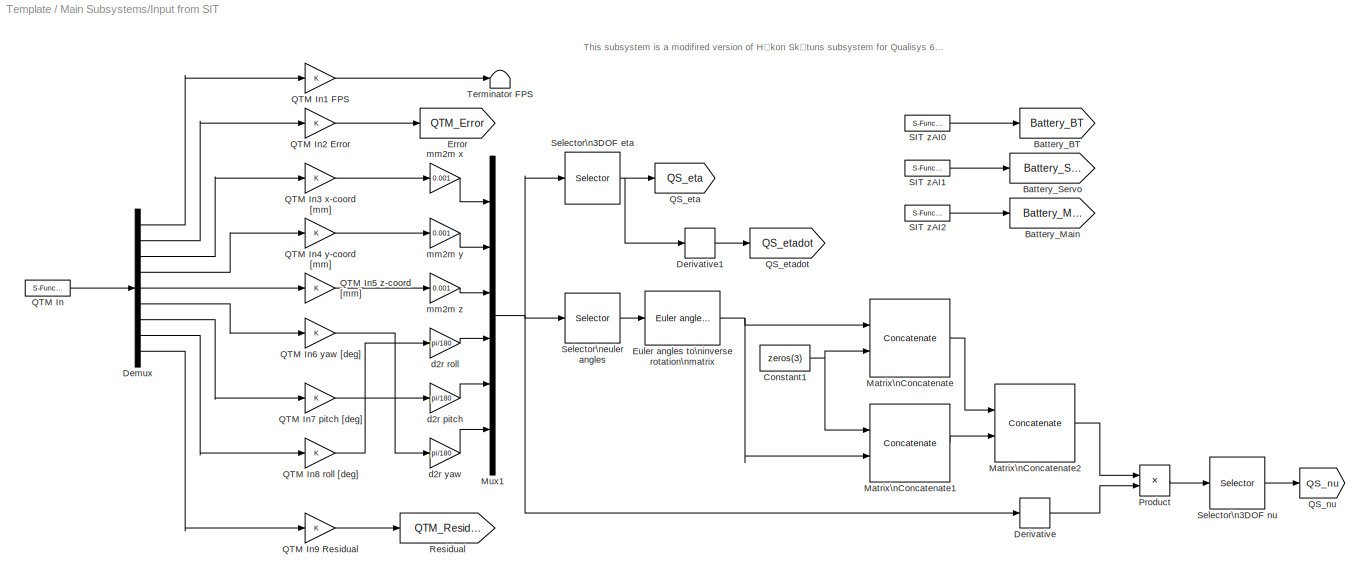
BLOCK [SubSystem] Main Subsystems/Input from SIT
  FunctionWithSeparateData = off
  MaskHideContents = off
  MinAlgLoopOccurrences = off
  Opaque = off
  Ports = []
  PropExecContextOutsideSubsystem = off
  RTWSystemCode = Auto
  RequestExecContextInheritance = off
BLOCK [Goto] Main Subsystems/Input from SIT/Battery_BT
  GotoTag = Battery_BT
  TagVisibility = global
BLOCK [Goto] Main Subsystems/Input from SIT/Battery_Main
  GotoTag = Battery_Main
  TagVisibility = global
BLOCK [Goto] Main Subsystems/Input from SIT/Battery_Servo
  GotoTag = Battery_Servo
  TagVisibility = global
BLOCK [Constant] Main Subsystems/Input from SIT/Constant1
  Value = zeros(3)
BLOCK [Demux] Main Subsystems/Input from SIT/Demux
  DisplayOption = bar
  Outputs = 9
  Ports = [1, 9]
BLOCK [Derivative] Main Subsystems/Input from SIT/Derivative
BLOCK [Derivative] Main Subsystems/Input from SIT/Derivative1
BLOCK [Goto] Main Subsystems/Input from SIT/Error
  GotoTag = QTM_Error
  TagVisibility = global
BLOCK [Reference] Main Subsystems/Input from SIT/Euler angles to\ninverse rotation\nmatrix  REF=marine_gnc/Models/ Kinematics/Euler angles to\ninverse rotation\nmatrix  (lib defined in mdl_10d96c221ba8, mdl_45f1105420c6)
  FunctionWithSeparateData = off
  Ports = [1, 1]
  RTWMemSecDataConstants = Inherit from model
  RTWMemSecDataInternal = Inherit from model
  RTWMemSecDataParameters = Inherit from model
  RTWMemSecFuncExecute = Inherit from model
  RTWMemSecFuncInitTerm = Inherit from model
  ShowPortLabels = FromPortIcon
  SourceBlock = marine_gnc/Models/ Kinematics/Euler angles to\ninverse rotation\nmatrix
  SourceType = Rbn
  SystemSampleTime = -1
BLOCK [Concatenate] Main Subsystems/Input from SIT/Matrix\nConcatenate
  Mode = Multidimensional array
  Ports = [2, 1]
BLOCK [Concatenate] Main Subsystems/Input from SIT/Matrix\nConcatenate1
  Mode = Multidimensional array
  Ports = [2, 1]
BLOCK [Concatenate] Main Subsystems/Input from SIT/Matrix\nConcatenate2
  ConcatenateDimension = 2
  Mode = Multidimensional array
  Ports = [2, 1]
BLOCK [Mux] Main Subsystems/Input from SIT/Mux1
  DisplayOption = bar
  Inputs = 6
  Ports = [6, 1]
BLOCK [Product] Main Subsystems/Input from SIT/Product
  InputSameDT = off
  Multiplication = Matrix(*)
  OutDataTypeMode = Inherit via internal rule
  OutDataTypeStr = Inherit: Inherit via internal rule
  Ports = [2, 1]
  SaturateOnIntegerOverflow = off
BLOCK [Goto] Main Subsystems/Input from SIT/QS_eta
  GotoTag = QS_eta
  TagVisibility = global
BLOCK [Goto] Main Subsystems/Input from SIT/QS_etadot
  GotoTag = QS_etadot
  TagVisibility = global
BLOCK [Goto] Main Subsystems/Input from SIT/QS_nu
  GotoTag = QS_nu
  TagVisibility = global
BLOCK [S-Function] Main Subsystems/Input from SIT/QTM In
  CopyFcn = NI_SIT_IO_callbacks(1);
  DeleteFcn = NI_SIT_IO_callbacks(2);
  EnableBusSupport = off
  FunctionName = NI_SIT_IO
  MaskCallbackString = NI_SIT_IO_callbacks(3);|||NI_SIT_IO_callbacks(4);||
  MaskDescription = Use this inport on any level of nested subsystems to allow the LabVIEW Simulation Interface Toolkit to map hardware to it.
  MaskDisplay = patch([-x x], [-y y], [.90980 .81960 .32156]);\nplot([0 -x x 0], [rad -y y rad]);\nfprintf('SIT%d', portnum);
  MaskEnableString = on,on,on,on,on,on
  MaskIconFrame = off
  MaskIconOpaque = on
  MaskIconRotate = none
  MaskIconUnits = autoscale
  MaskInitialization = NI_SIT_IO_init;
  MaskPortRotate = default
  MaskPromptString = Port number:|Port dimensions (-1 for dynamically sized):|Sample time (-1 for inherited):|Data type:|Signal type:|Block type:
  MaskStyleString = edit,edit,edit,popup(auto|double|single|int8|uint8|int16|uint16|int32|uint32|boolean),popup(auto|real|complex),edit
  MaskTabNameString = Parameters,Parameters,Parameters,Parameters,Parameters,Parameters
  MaskToolTipString = on,on,on,on,on,on
  MaskTunableValueString = off,off,off,off,off,off
  MaskType = SIT Inport
  MaskValueString = 1|9|-1|auto|auto|1
  MaskVarAliasString = ,,,,,
  MaskVariables = portnum=@1;width=@2;stime=@3;dtype=@4;stype=@5;btype=@6;
  MaskVisibilityString = on,on,on,on,on,off
  Parameters = width dtype portnum stime stype btype
  Ports = [0, 1]
  Priority = 1
BLOCK [Gain] Main Subsystems/Input from SIT/QTM In1 FPS
  OutDataType = fixdt(1, 16)
  OutDataTypeMode = Inherit via internal rule
  OutDataTypeStr = Inherit: Inherit via internal rule
  OutScaling = 2^0
  ParamDataTypeStr = Inherit: Inherit via internal rule
  ParameterDataType = fixdt(1, 16)
  ParameterDataTypeMode = Inherit via internal rule
  ParameterScaling = 2^0
  SaturateOnIntegerOverflow = off
BLOCK [Gain] Main Subsystems/Input from SIT/QTM In2 Error
  OutDataType = fixdt(1, 16)
  OutDataTypeMode = Inherit via internal rule
  OutDataTypeStr = Inherit: Inherit via internal rule
  OutScaling = 2^0
  ParamDataTypeStr = Inherit: Inherit via internal rule
  ParameterDataType = fixdt(1, 16)
  ParameterDataTypeMode = Inherit via internal rule
  ParameterScaling = 2^0
  SaturateOnIntegerOverflow = off
BLOCK [Gain] Main Subsystems/Input from SIT/QTM In3 x-coord [mm]
  OutDataType = fixdt(1, 16)
  OutDataTypeMode = Inherit via internal rule
  OutDataTypeStr = Inherit: Inherit via internal rule
  OutScaling = 2^0
  ParamDataTypeStr = Inherit: Inherit via internal rule
  ParameterDataType = fixdt(1, 16)
  ParameterDataTypeMode = Inherit via internal rule
  ParameterScaling = 2^0
  SaturateOnIntegerOverflow = off
BLOCK [Gain] Main Subsystems/Input from SIT/QTM In4 y-coord [mm]
  OutDataType = fixdt(1, 16)
  OutDataTypeMode = Inherit via internal rule
  OutDataTypeStr = Inherit: Inherit via internal rule
  OutScaling = 2^0
  ParamDataTypeStr = Inherit: Inherit via internal rule
  ParameterDataType = fixdt(1, 16)
  ParameterDataTypeMode = Inherit via internal rule
  ParameterScaling = 2^0
  SaturateOnIntegerOverflow = off
BLOCK [Gain] Main Subsystems/Input from SIT/QTM In5 z-coord [mm]
  OutDataType = fixdt(1, 16)
  OutDataTypeMode = Inherit via internal rule
  OutDataTypeStr = Inherit: Inherit via internal rule
  OutScaling = 2^0
  ParamDataTypeStr = Inherit: Inherit via internal rule
  ParameterDataType = fixdt(1, 16)
  ParameterDataTypeMode = Inherit via internal rule
  ParameterScaling = 2^0
  SaturateOnIntegerOverflow = off
BLOCK [Gain] Main Subsystems/Input from SIT/QTM In6 yaw [deg]
  OutDataType = fixdt(1, 16)
  OutDataTypeMode = Inherit via internal rule
  OutDataTypeStr = Inherit: Inherit via internal rule
  OutScaling = 2^0
  ParamDataTypeStr = Inherit: Inherit via internal rule
  ParameterDataType = fixdt(1, 16)
  ParameterDataTypeMode = Inherit via internal rule
  ParameterScaling = 2^0
  SaturateOnIntegerOverflow = off
BLOCK [Gain] Main Subsystems/Input from SIT/QTM In7 pitch [deg]
  OutDataType = fixdt(1, 16)
  OutDataTypeMode = Inherit via internal rule
  OutDataTypeStr = Inherit: Inherit via internal rule
  OutScaling = 2^0
  ParamDataTypeStr = Inherit: Inherit via internal rule
  ParameterDataType = fixdt(1, 16)
  ParameterDataTypeMode = Inherit via internal rule
  ParameterScaling = 2^0
  SaturateOnIntegerOverflow = off
BLOCK [Gain] Main Subsystems/Input from SIT/QTM In8 roll [deg]
  OutDataType = fixdt(1, 16)
  OutDataTypeMode = Inherit via internal rule
  OutDataTypeStr = Inherit: Inherit via internal rule
  OutScaling = 2^0
  ParamDataTypeStr = Inherit: Inherit via internal rule
  ParameterDataType = fixdt(1, 16)
  ParameterDataTypeMode = Inherit via internal rule
  ParameterScaling = 2^0
  SaturateOnIntegerOverflow = off
BLOCK [Gain] Main Subsystems/Input from SIT/QTM In9 Residual
  OutDataType = fixdt(1, 16)
  OutDataTypeMode = Inherit via internal rule
  OutDataTypeStr = Inherit: Inherit via internal rule
  OutScaling = 2^0
  ParamDataTypeStr = Inherit: Inherit via internal rule
  ParameterDataType = fixdt(1, 16)
  ParameterDataTypeMode = Inherit via internal rule
  ParameterScaling = 2^0
  SaturateOnIntegerOverflow = off
BLOCK [Goto] Main Subsystems/Input from SIT/Residual
  GotoTag = QTM_Residual
  TagVisibility = global
BLOCK [S-Function] Main Subsystems/Input from SIT/SIT zAI0
  CopyFcn = NI_SIT_IO_callbacks(1);
  DeleteFcn = NI_SIT_IO_callbacks(2);
  EnableBusSupport = off
  FunctionName = NI_SIT_IO
  MaskCallbackString = NI_SIT_IO_callbacks(3);|||NI_SIT_IO_callbacks(4);||
  MaskDescription = Use this inport on any level of nested subsystems to allow the LabVIEW Simulation Interface Toolkit to map hardware to it.
  MaskDisplay = patch([-x x], [-y y], [.90980 .81960 .32156]);\nplot([0 -x x 0], [rad -y y rad]);\nfprintf('SIT%d', portnum);
  MaskEnableString = on,on,on,on,on,on
  MaskIconFrame = off
  MaskIconOpaque = on
  MaskIconRotate = none
  MaskIconUnits = autoscale
  MaskInitialization = NI_SIT_IO_init;
  MaskPortRotate = default
  MaskPromptString = Port number:|Port dimensions (-1 for dynamically sized):|Sample time (-1 for inherited):|Data type:|Signal type:|Block type:
  MaskStyleString = edit,edit,edit,popup(auto|double|single|int8|uint8|int16|uint16|int32|uint32|boolean),popup(auto|real|complex),edit
  MaskTabNameString = Parameters,Parameters,Parameters,Parameters,Parameters,Parameters
  MaskToolTipString = on,on,on,on,on,on
  MaskTunableValueString = off,off,off,off,off,off
  MaskType = SIT Inport
  MaskValueString = 2|-1|-1|auto|auto|1
  MaskVarAliasString = ,,,,,
  MaskVariables = portnum=@1;width=@2;stime=@3;dtype=@4;stype=@5;btype=@6;
  MaskVisibilityString = on,on,on,on,on,off
  Parameters = width dtype portnum stime stype btype
  Ports = [0, 1]
  Priority = 2
BLOCK [S-Function] Main Subsystems/Input from SIT/SIT zAI1
  CopyFcn = NI_SIT_IO_callbacks(1);
  DeleteFcn = NI_SIT_IO_callbacks(2);
  EnableBusSupport = off
  FunctionName = NI_SIT_IO
  MaskCallbackString = NI_SIT_IO_callbacks(3);|||NI_SIT_IO_callbacks(4);||
  MaskDescription = Use this inport on any level of nested subsystems to allow the LabVIEW Simulation Interface Toolkit to map hardware to it.
  MaskDisplay = patch([-x x], [-y y], [.90980 .81960 .32156]);\nplot([0 -x x 0], [rad -y y rad]);\nfprintf('SIT%d', portnum);
  MaskEnableString = on,on,on,on,on,on
  MaskIconFrame = off
  MaskIconOpaque = on
  MaskIconRotate = none
  MaskIconUnits = autoscale
  MaskInitialization = NI_SIT_IO_init;
  MaskPortRotate = default
  MaskPromptString = Port number:|Port dimensions (-1 for dynamically sized):|Sample time (-1 for inherited):|Data type:|Signal type:|Block type:
  MaskStyleString = edit,edit,edit,popup(auto|double|single|int8|uint8|int16|uint16|int32|uint32|boolean),popup(auto|real|complex),edit
  MaskTabNameString = Parameters,Parameters,Parameters,Parameters,Parameters,Parameters
  MaskToolTipString = on,on,on,on,on,on
  MaskTunableValueString = off,off,off,off,off,off
  MaskType = SIT Inport
  MaskValueString = 3|-1|-1|auto|auto|1
  MaskVarAliasString = ,,,,,
  MaskVariables = portnum=@1;width=@2;stime=@3;dtype=@4;stype=@5;btype=@6;
  MaskVisibilityString = on,on,on,on,on,off
  Parameters = width dtype portnum stime stype btype
  Ports = [0, 1]
  Priority = 3
BLOCK [S-Function] Main Subsystems/Input from SIT/SIT zAI2
  CopyFcn = NI_SIT_IO_callbacks(1);
  DeleteFcn = NI_SIT_IO_callbacks(2);
  EnableBusSupport = off
  FunctionName = NI_SIT_IO
  MaskCallbackString = NI_SIT_IO_callbacks(3);|||NI_SIT_IO_callbacks(4);||
  MaskDescription = Use this inport on any level of nested subsystems to allow the LabVIEW Simulation Interface Toolkit to map hardware to it.
  MaskDisplay = patch([-x x], [-y y], [.90980 .81960 .32156]);\nplot([0 -x x 0], [rad -y y rad]);\nfprintf('SIT%d', portnum);
  MaskEnableString = on,on,on,on,on,on
  MaskIconFrame = off
  MaskIconOpaque = on
  MaskIconRotate = none
  MaskIconUnits = autoscale
  MaskInitialization = NI_SIT_IO_init;
  MaskPortRotate = default
  MaskPromptString = Port number:|Port dimensions (-1 for dynamically sized):|Sample time (-1 for inherited):|Data type:|Signal type:|Block type:
  MaskStyleString = edit,edit,edit,popup(auto|double|single|int8|uint8|int16|uint16|int32|uint32|boolean),popup(auto|real|complex),edit
  MaskTabNameString = Parameters,Parameters,Parameters,Parameters,Parameters,Parameters
  MaskToolTipString = on,on,on,on,on,on
  MaskTunableValueString = off,off,off,off,off,off
  MaskType = SIT Inport
  MaskValueString = 4|-1|-1|auto|auto|1
  MaskVarAliasString = ,,,,,
  MaskVariables = portnum=@1;width=@2;stime=@3;dtype=@4;stype=@5;btype=@6;
  MaskVisibilityString = on,on,on,on,on,off
  Parameters = width dtype portnum stime stype btype
  Ports = [0, 1]
  Priority = 4
BLOCK [Selector] Main Subsystems/Input from SIT/Selector\n3DOF eta
  IndexOptions = Index vector (dialog)
  Indices = [1 2 6]
  InputPortWidth = 6
  OutputSizes = 1
  Ports = [1, 1]
BLOCK [Selector] Main Subsystems/Input from SIT/Selector\n3DOF nu
  IndexOptions = Index vector (dialog)
  Indices = [1 2 6]
  InputPortWidth = 6
  OutputSizes = 1
  Ports = [1, 1]
BLOCK [Selector] Main Subsystems/Input from SIT/Selector\neuler angles
  IndexOptions = Index vector (dialog)
  Indices = [4 5 6]
  InputPortWidth = 6
  OutputSizes = 1
  Ports = [1, 1]
BLOCK [Terminator] Main Subsystems/Input from SIT/Terminator FPS
BLOCK [Gain] Main Subsystems/Input from SIT/d2r pitch
  Gain = pi/180
  OutDataType = fixdt(1, 16)
  OutDataTypeMode = Inherit via internal rule
  OutDataTypeStr = Inherit: Inherit via internal rule
  OutScaling = 2^0
  ParamDataTypeStr = Inherit: Inherit via internal rule
  ParameterDataType = fixdt(1, 16)
  ParameterDataTypeMode = Inherit via internal rule
  ParameterScaling = 2^0
  SaturateOnIntegerOverflow = off
BLOCK [Gain] Main Subsystems/Input from SIT/d2r roll
  Gain = pi/180
  OutDataType = fixdt(1, 16)
  OutDataTypeMode = Inherit via internal rule
  OutDataTypeStr = Inherit: Inherit via internal rule
  OutScaling = 2^0
  ParamDataTypeStr = Inherit: Inherit via internal rule
  ParameterDataType = fixdt(1, 16)
  ParameterDataTypeMode = Inherit via internal rule
  ParameterScaling = 2^0
  SaturateOnIntegerOverflow = off
BLOCK [Gain] Main Subsystems/Input from SIT/d2r yaw
  Gain = pi/180
  OutDataType = fixdt(1, 16)
  OutDataTypeMode = Inherit via internal rule
  OutDataTypeStr = Inherit: Inherit via internal rule
  OutScaling = 2^0
  ParamDataTypeStr = Inherit: Inherit via internal rule
  ParameterDataType = fixdt(1, 16)
  ParameterDataTypeMode = Inherit via internal rule
  ParameterScaling = 2^0
  SaturateOnIntegerOverflow = off
BLOCK [Gain] Main Subsystems/Input from SIT/mm2m x
  Gain = 0.001
  OutDataTypeMode = Inherit via internal rule
  OutDataTypeStr = Inherit: Inherit via internal rule
  ParamDataTypeStr = Inherit: Inherit via internal rule
  ParameterDataTypeMode = Inherit via internal rule
  SaturateOnIntegerOverflow = off
BLOCK [Gain] Main Subsystems/Input from SIT/mm2m y
  Gain = 0.001
  OutDataTypeMode = Inherit via internal rule
  OutDataTypeStr = Inherit: Inherit via internal rule
  ParamDataTypeStr = Inherit: Inherit via internal rule
  ParameterDataTypeMode = Inherit via internal rule
  SaturateOnIntegerOverflow = off
BLOCK [Gain] Main Subsystems/Input from SIT/mm2m z
  Gain = 0.001
  OutDataTypeMode = Inherit via internal rule
  OutDataTypeStr = Inherit: Inherit via internal rule
  ParamDataTypeStr = Inherit: Inherit via internal rule
  ParameterDataTypeMode = Inherit via internal rule
  SaturateOnIntegerOverflow = off
BLOCK [SubSystem] Main Subsystems/Subsystem
  FunctionWithSeparateData = off
  MaskHideContents = off
  MinAlgLoopOccurrences = off
  Opaque = off
  Ports = []
  PropExecContextOutsideSubsystem = off
  RTWSystemCode = Auto
  RequestExecContextInheritance = off
BLOCK [SubSystem] Outputs to LabVIEW
  FunctionWithSeparateData = off
  MaskHideContents = off
  MinAlgLoopOccurrences = off
  Opaque = off
  Ports = []
  PropExecContextOutsideSubsystem = off
  RTWSystemCode = Auto
  RequestExecContextInheritance = off
BLOCK [SubSystem] Outputs to LabVIEW/Battery Voltage
  FunctionWithSeparateData = off
  MaskHideContents = off
  MinAlgLoopOccurrences = off
  Opaque = off
  Ports = []
  PropExecContextOutsideSubsystem = off
  RTWSystemCode = Auto
  RequestExecContextInheritance = off
BLOCK [Gain] Outputs to LabVIEW/Battery Voltage/Battery Bow Thruster
  OutDataType = fixdt(1, 16)
  OutDataTypeMode = Inherit via internal rule
  OutDataTypeStr = Inherit: Inherit via internal rule
  OutScaling = 2^0
  ParamDataTypeStr = Inherit: Inherit via internal rule
  ParameterDataType = fixdt(1, 16)
  ParameterDataTypeMode = Inherit via internal rule
  ParameterScaling = 2^0
  SaturateOnIntegerOverflow = off
BLOCK [Gain] Outputs to LabVIEW/Battery Voltage/Battery Main
  Gain = 2
  OutDataType = fixdt(1, 16)
  OutDataTypeMode = Inherit via internal rule
  OutDataTypeStr = Inherit: Inherit via internal rule
  OutScaling = 2^0
  ParamDataTypeStr = Inherit: Inherit via internal rule
  ParameterDataType = fixdt(1, 16)
  ParameterDataTypeMode = Inherit via internal rule
  ParameterScaling = 2^0
  SaturateOnIntegerOverflow = off
BLOCK [Gain] Outputs to LabVIEW/Battery Voltage/Battery Servo
  OutDataType = fixdt(1, 16)
  OutDataTypeMode = Inherit via internal rule
  OutDataTypeStr = Inherit: Inherit via internal rule
  OutScaling = 2^0
  ParamDataTypeStr = Inherit: Inherit via internal rule
  ParameterDataType = fixdt(1, 16)
  ParameterDataTypeMode = Inherit via internal rule
  ParameterScaling = 2^0
  SaturateOnIntegerOverflow = off
BLOCK [From] Outputs to LabVIEW/Battery Voltage/From
  GotoTag = Battery_BT
BLOCK [From] Outputs to LabVIEW/Battery Voltage/From1
  GotoTag = Battery_Servo
BLOCK [From] Outputs to LabVIEW/Battery Voltage/From2
  GotoTag = Battery_Main
BLOCK [Terminator] Outputs to LabVIEW/Battery Voltage/Terminator Bow Thruster Battery
BLOCK [Terminator] Outputs to LabVIEW/Battery Voltage/Terminator Main Battery
BLOCK [Terminator] Outputs to LabVIEW/Battery Voltage/Terminator Servo Battery
BLOCK [From] Outputs to LabVIEW/From
  GotoTag = A
BLOCK [S-Function] SignalProbe
  Description = Use this block with SIT.
  EnableBusSupport = off
  FunctionName = SignalProbe
  MaskDescription = The LabVIEW Simulation Interface Toolkit uses the SignalProbe block to probe the signals in the model. The SignalProbe block must be on the top level of the model hierarchy. You can have only one SignalProbe block per model file. Do not rename the SignalProbe block. Do not change the name of another model block to SignalProbe.
  MaskIconFrame = on
  MaskIconOpaque = on
  MaskIconRotate = none
  MaskIconUnits = autoscale
  MaskPortRotate = default
  Parameters = 1
  Ports = []
  PreSaveFcn = NISIT_ModelVars;
ANNOTATION (root): Acronym:\nDP: Dynamic Positioning\nPS3: PlayStation3\nLOS: Line-Of-Sight\nLgV:
ANNOTATION (root): Communication between subsystems happens mainly through Global \"Goto\"-blocks and \"From\" Blocks,\nreducing the needs for wires \n\nBlock name: Acronym + Pseudo Latex synax where \"_\" (underscore) can mean lower what to follow or space\nTag name: similar to Block name but double underscore \"__\" as exponentiation symbol\n\n[ letter inside ]: unit, e.g. [m] == assumes input in meter\n[ number i...<+494ch>
ANNOTATION Inputs from LabVIEW/DynamicPositioning/Kd: Creating 3x3 diagonal matrix
ANNOTATION Inputs from LabVIEW/DynamicPositioning/Ki: Creating 3x3 diagonal matrix
ANNOTATION Inputs from LabVIEW/DynamicPositioning/Kp: Creating 3x3 diagonal matrix
ANNOTATION Inputs from LabVIEW/LOS LgV backstepping II/K_d: Creating 3x3 diagonal matrix
ANNOTATION Inputs from LabVIEW/LOS LgV backstepping II/K_i: Creating 3x3 diagonal matrix
ANNOTATION Inputs from LabVIEW/LOS LgV backstepping II/K_p: Creating 3x3 diagonal matrix
ANNOTATION Inputs from LabVIEW/Linear Simulator: u_d: Desired surge speed of vessel\nPath Selector: Workaround parameter for switching between linear path(==0) and ellipse path(==1)\nx_dmax: Upper limit of desired x-ooordinate\nx_dmin: Lower limit of desired x-coordiante\ny_dmax: Upper limit of desired y-ooordinate\ny_dmin: Lower limit of desired y-coordiante\nDelta: Lookahead distance for LOS guidance\nmy:
ANNOTATION Inputs from LabVIEW/Path: u_d: Desired surge speed of vessel\nPath Selector: Workaround parameter for switching between linear path(==0) and ellipse path(==1)\nx_dmax: Upper limit of desired x-ooordinate\nx_dmin: Lower limit of desired x-coordiante\ny_dmax: Upper limit of desired y-ooordinate\ny_dmin: Lower limit of desired y-coordiante\nDelta: Lookahead distance for LOS guidance\nmy:
ANNOTATION Inputs from LabVIEW/Path/Ellipse: origin_x: ellipse origin x-coordinate\norigin_y: ellipse origin y-coordinate\nr_x: ellipse radius x-direction\nr_y: ellipse radius y-direction\nk: step scaling factor of path parameter
ANNOTATION Inputs from LabVIEW/Path/Linear: x_1: reference way-point x-coordinate\ny_1: reference way-point y-coordinate\nx_2: direction way-point x-coordinate\ny_2: direction way-point y-coordinate
ANNOTATION Inputs from LabVIEW/PlayStation3: Postive Y-axis of analog sticks points up (in the direction of the shoulder buttons)\nPostive X-axis of analog sticks points to the right (in the direction of Triange, Circle, X and Square buttons)\n\nAS_LX: PS3 Analog Stick Left X-postition\nAS_LY: PS3 Analog Stick Left Y-postition\nAS_RX: PS3 Analog Stick Right X-postition\nAS_RY: PS3 Analog Stick Right Y-postition\nL2: PS3 bottom left sholderbu...<+157ch>
ANNOTATION Main Subsystems/DP control: Modified version of the DP control found in MSS toolbx
ANNOTATION Main Subsystems/Guidance/Line-Of-Sight Path-Following/Path: Path Selector == 1: Straight path\nPath Selector == 0: Ellipse path
ANNOTATION Main Subsystems/Guidance/Line-Of-Sight Path-Following/Path/Path Switch workaround: Path Selector == 1: Straight path\nPath Selector == 0: Ellipse path
ANNOTATION Main Subsystems/Guidance/Line-Of-Sight Path-Following/Path/Path Switch workaround/p_d selcetor: Path Selector == 1: Straight path\nPath Selector == 0: Ellipse path
ANNOTATION Main Subsystems/Guidance/Line-Of-Sight Path-Following/Path/Path Switch workaround/p_d^s selcetor: Path Selector == 1: Straight path\nPath Selector == 0: Ellipse path
ANNOTATION Main Subsystems/Guidance/Line-Of-Sight Path-Following/Path/Path Switch workaround/p_d^s^3 selcetor: Path Selector == 1: Straight path\nPath Selector == 0: Ellipse path
ANNOTATION Main Subsystems/Guidance/Line-Of-Sight Path-Following/Path/Path Switch workaround/p_ds^2 selcetor: Path Selector == 1: Straight path\nPath Selector == 0: Ellipse path
ANNOTATION Main Subsystems/Guidance/Line-Of-Sight Path-Following/Path/Path Switch workaround/|p_d^s| selcetor: Path Selector == 1: Straight path\nPath Selector == 0: Ellipse path
ANNOTATION Main Subsystems/Input from SIT: This subsystem is a modifired version of Håkon Skåtuns subsystem for Qualisys 6 DOF
ANNOTATION Outputs to LabVIEW: Gain blocks in this subsystem, functions as output ports for linking LabVIEW indicators through SIT Connection Manager
ANNOTATION Outputs to LabVIEW/Battery Voltage: Main battery is multipled by 2, since the voltage is halfed at measuring point
LINE Inputs from LabVIEW/Control Input Selector:1 -> Inputs from LabVIEW/Goto1:1
LINE Inputs from LabVIEW/Control Mode Selector:1 -> Inputs from LabVIEW/Goto:1
LINE Inputs from LabVIEW/DynamicPositioning/Kd/11:1 -> Inputs from LabVIEW/DynamicPositioning/Kd/Mux:1
LINE Inputs from LabVIEW/DynamicPositioning/Kd/12:1 -> Inputs from LabVIEW/DynamicPositioning/Kd/Mux:4
LINE Inputs from LabVIEW/DynamicPositioning/Kd/13:1 -> Inputs from LabVIEW/DynamicPositioning/Kd/Mux:7
LINE Inputs from LabVIEW/DynamicPositioning/Kd/21:1 -> Inputs from LabVIEW/DynamicPositioning/Kd/Mux:2
LINE Inputs from LabVIEW/DynamicPositioning/Kd/22:1 -> Inputs from LabVIEW/DynamicPositioning/Kd/Mux:5
LINE Inputs from LabVIEW/DynamicPositioning/Kd/23:1 -> Inputs from LabVIEW/DynamicPositioning/Kd/Mux:8
LINE Inputs from LabVIEW/DynamicPositioning/Kd/31:1 -> Inputs from LabVIEW/DynamicPositioning/Kd/Mux:3
LINE Inputs from LabVIEW/DynamicPositioning/Kd/32:1 -> Inputs from LabVIEW/DynamicPositioning/Kd/Mux:6
LINE Inputs from LabVIEW/DynamicPositioning/Kd/33:1 -> Inputs from LabVIEW/DynamicPositioning/Kd/Mux:9
LINE Inputs from LabVIEW/DynamicPositioning/Kd/Mux:1 -> Inputs from LabVIEW/DynamicPositioning/Kd/[3x3]:1
LINE Inputs from LabVIEW/DynamicPositioning/Kd/[3x3]:1 -> Inputs from LabVIEW/DynamicPositioning/Kd/Kd:1
LINE Inputs from LabVIEW/DynamicPositioning/Kdsurge:1 -> Inputs from LabVIEW/DynamicPositioning/Kd:1
LINE Inputs from LabVIEW/DynamicPositioning/Kdsway:1 -> Inputs from LabVIEW/DynamicPositioning/Kd:2
LINE Inputs from LabVIEW/DynamicPositioning/Kdyaw:1 -> Inputs from LabVIEW/DynamicPositioning/Kd:3
LINE Inputs from LabVIEW/DynamicPositioning/Ki/11:1 -> Inputs from LabVIEW/DynamicPositioning/Ki/Mux:1
LINE Inputs from LabVIEW/DynamicPositioning/Ki/12:1 -> Inputs from LabVIEW/DynamicPositioning/Ki/Mux:4
LINE Inputs from LabVIEW/DynamicPositioning/Ki/13:1 -> Inputs from LabVIEW/DynamicPositioning/Ki/Mux:7
LINE Inputs from LabVIEW/DynamicPositioning/Ki/21:1 -> Inputs from LabVIEW/DynamicPositioning/Ki/Mux:2
LINE Inputs from LabVIEW/DynamicPositioning/Ki/22:1 -> Inputs from LabVIEW/DynamicPositioning/Ki/Mux:5
LINE Inputs from LabVIEW/DynamicPositioning/Ki/23:1 -> Inputs from LabVIEW/DynamicPositioning/Ki/Mux:8
LINE Inputs from LabVIEW/DynamicPositioning/Ki/31:1 -> Inputs from LabVIEW/DynamicPositioning/Ki/Mux:3
LINE Inputs from LabVIEW/DynamicPositioning/Ki/32:1 -> Inputs from LabVIEW/DynamicPositioning/Ki/Mux:6
LINE Inputs from LabVIEW/DynamicPositioning/Ki/33:1 -> Inputs from LabVIEW/DynamicPositioning/Ki/Mux:9
LINE Inputs from LabVIEW/DynamicPositioning/Ki/Mux:1 -> Inputs from LabVIEW/DynamicPositioning/Ki/[3x3]:1
LINE Inputs from LabVIEW/DynamicPositioning/Ki/[3x3]:1 -> Inputs from LabVIEW/DynamicPositioning/Ki/Ki:1
LINE Inputs from LabVIEW/DynamicPositioning/Kisurge:1 -> Inputs from LabVIEW/DynamicPositioning/Ki:1
LINE Inputs from LabVIEW/DynamicPositioning/Kisway:1 -> Inputs from LabVIEW/DynamicPositioning/Ki:2
LINE Inputs from LabVIEW/DynamicPositioning/Kiyaw:1 -> Inputs from LabVIEW/DynamicPositioning/Ki:3
LINE Inputs from LabVIEW/DynamicPositioning/Kp/11:1 -> Inputs from LabVIEW/DynamicPositioning/Kp/Mux:1
LINE Inputs from LabVIEW/DynamicPositioning/Kp/12:1 -> Inputs from LabVIEW/DynamicPositioning/Kp/Mux:4
LINE Inputs from LabVIEW/DynamicPositioning/Kp/13:1 -> Inputs from LabVIEW/DynamicPositioning/Kp/Mux:7
LINE Inputs from LabVIEW/DynamicPositioning/Kp/21:1 -> Inputs from LabVIEW/DynamicPositioning/Kp/Mux:2
LINE Inputs from LabVIEW/DynamicPositioning/Kp/22:1 -> Inputs from LabVIEW/DynamicPositioning/Kp/Mux:5
LINE Inputs from LabVIEW/DynamicPositioning/Kp/23:1 -> Inputs from LabVIEW/DynamicPositioning/Kp/Mux:8
LINE Inputs from LabVIEW/DynamicPositioning/Kp/31:1 -> Inputs from LabVIEW/DynamicPositioning/Kp/Mux:3
LINE Inputs from LabVIEW/DynamicPositioning/Kp/32:1 -> Inputs from LabVIEW/DynamicPositioning/Kp/Mux:6
LINE Inputs from LabVIEW/DynamicPositioning/Kp/33:1 -> Inputs from LabVIEW/DynamicPositioning/Kp/Mux:9
LINE Inputs from LabVIEW/DynamicPositioning/Kp/Mux:1 -> Inputs from LabVIEW/DynamicPositioning/Kp/[3x3]:1
LINE Inputs from LabVIEW/DynamicPositioning/Kp/[3x3]:1 -> Inputs from LabVIEW/DynamicPositioning/Kp/Kp:1
LINE Inputs from LabVIEW/DynamicPositioning/Kpsurge:1 -> Inputs from LabVIEW/DynamicPositioning/Kp:1
LINE Inputs from LabVIEW/DynamicPositioning/Kpsway:1 -> Inputs from LabVIEW/DynamicPositioning/Kp:2
LINE Inputs from LabVIEW/DynamicPositioning/Kpyaw:1 -> Inputs from LabVIEW/DynamicPositioning/Kp:3
LINE Inputs from LabVIEW/DynamicPositioning/Reset integrator:1 -> Inputs from LabVIEW/DynamicPositioning/resetIntegrator:1
LINE Inputs from LabVIEW/DynamicPositioning/Setpoint/ yd [m]:1 -> Inputs from LabVIEW/DynamicPositioning/Setpoint/Mux:2
LINE Inputs from LabVIEW/DynamicPositioning/Setpoint/Degrees to\nRadians:1 -> Inputs from LabVIEW/DynamicPositioning/Setpoint/Mux:3
LINE Inputs from LabVIEW/DynamicPositioning/Setpoint/Mux:1 -> Inputs from LabVIEW/DynamicPositioning/Setpoint/Setpoint:1
LINE Inputs from LabVIEW/DynamicPositioning/Setpoint/psid [deg]:1 -> Inputs from LabVIEW/DynamicPositioning/Setpoint/Degrees to\nRadians:1
LINE Inputs from LabVIEW/DynamicPositioning/Setpoint/xd [m]:1 -> Inputs from LabVIEW/DynamicPositioning/Setpoint/Mux:1
LINE Inputs from LabVIEW/Enable CSE1:1 -> Inputs from LabVIEW/Goto2:1
LINE Inputs from LabVIEW/Initial eta/Mux:1 -> Inputs from LabVIEW/Initial eta/eta_0:1
LINE Inputs from LabVIEW/Initial eta/psi_0:1 -> Inputs from LabVIEW/Initial eta/Mux:3
LINE Inputs from LabVIEW/Initial eta/x_0:1 -> Inputs from LabVIEW/Initial eta/Mux:1
LINE Inputs from LabVIEW/Initial eta/y_0:1 -> Inputs from LabVIEW/Initial eta/Mux:2
LINE Inputs from LabVIEW/Initial nu/Mux:1 -> Inputs from LabVIEW/Initial nu/nu_0:1
LINE Inputs from LabVIEW/Initial nu/r_0:1 -> Inputs from LabVIEW/Initial nu/Mux:3
LINE Inputs from LabVIEW/Initial nu/u_0:1 -> Inputs from LabVIEW/Initial nu/Mux:1
LINE Inputs from LabVIEW/Initial nu/v_0:1 -> Inputs from LabVIEW/Initial nu/Mux:2
LINE Inputs from LabVIEW/LOS LgV backstepping II/Gamma_q/11:1 -> Inputs from LabVIEW/LOS LgV backstepping II/Gamma_q/Mux:1
LINE Inputs from LabVIEW/LOS LgV backstepping II/Gamma_q/12:1 -> Inputs from LabVIEW/LOS LgV backstepping II/Gamma_q/Mux:3
LINE Inputs from LabVIEW/LOS LgV backstepping II/Gamma_q/21:1 -> Inputs from LabVIEW/LOS LgV backstepping II/Gamma_q/Mux:2
LINE Inputs from LabVIEW/LOS LgV backstepping II/Gamma_q/22:1 -> Inputs from LabVIEW/LOS LgV backstepping II/Gamma_q/Mux:4
LINE Inputs from LabVIEW/LOS LgV backstepping II/Gamma_q/Mux:1 -> Inputs from LabVIEW/LOS LgV backstepping II/Gamma_q/[2x2]:1
LINE Inputs from LabVIEW/LOS LgV backstepping II/Gamma_q/[2x2]:1 -> Inputs from LabVIEW/LOS LgV backstepping II/Gamma_q/LgV2_Gamma_q:1
LINE Inputs from LabVIEW/LOS LgV backstepping II/Gamma_q_Surge:1 -> Inputs from LabVIEW/LOS LgV backstepping II/Gamma_q:1
LINE Inputs from LabVIEW/LOS LgV backstepping II/Gamma_q_Sway:1 -> Inputs from LabVIEW/LOS LgV backstepping II/Gamma_q:2
LINE Inputs from LabVIEW/LOS LgV backstepping II/Initial q_x:1 -> Inputs from LabVIEW/LOS LgV backstepping II/Mux:1
LINE Inputs from LabVIEW/LOS LgV backstepping II/Initial q_y:1 -> Inputs from LabVIEW/LOS LgV backstepping II/Mux:2
LINE Inputs from LabVIEW/LOS LgV backstepping II/Initial s:1 -> Inputs from LabVIEW/LOS LgV backstepping II/Initial_s:1
LINE Inputs from LabVIEW/LOS LgV backstepping II/K_d/11:1 -> Inputs from LabVIEW/LOS LgV backstepping II/K_d/Mux:1
LINE Inputs from LabVIEW/LOS LgV backstepping II/K_d/12:1 -> Inputs from LabVIEW/LOS LgV backstepping II/K_d/Mux:4
LINE Inputs from LabVIEW/LOS LgV backstepping II/K_d/13:1 -> Inputs from LabVIEW/LOS LgV backstepping II/K_d/Mux:7
LINE Inputs from LabVIEW/LOS LgV backstepping II/K_d/21:1 -> Inputs from LabVIEW/LOS LgV backstepping II/K_d/Mux:2
LINE Inputs from LabVIEW/LOS LgV backstepping II/K_d/22:1 -> Inputs from LabVIEW/LOS LgV backstepping II/K_d/Mux:5
LINE Inputs from LabVIEW/LOS LgV backstepping II/K_d/23:1 -> Inputs from LabVIEW/LOS LgV backstepping II/K_d/Mux:8
LINE Inputs from LabVIEW/LOS LgV backstepping II/K_d/31:1 -> Inputs from LabVIEW/LOS LgV backstepping II/K_d/Mux:3
LINE Inputs from LabVIEW/LOS LgV backstepping II/K_d/32:1 -> Inputs from LabVIEW/LOS LgV backstepping II/K_d/Mux:6
LINE Inputs from LabVIEW/LOS LgV backstepping II/K_d/33:1 -> Inputs from LabVIEW/LOS LgV backstepping II/K_d/Mux:9
LINE Inputs from LabVIEW/LOS LgV backstepping II/K_d/Mux:1 -> Inputs from LabVIEW/LOS LgV backstepping II/K_d/[3x3]:1
LINE Inputs from LabVIEW/LOS LgV backstepping II/K_d/[3x3]:1 -> Inputs from LabVIEW/LOS LgV backstepping II/K_d/LgV2_K_d:1
LINE Inputs from LabVIEW/LOS LgV backstepping II/K_d_Surge:1 -> Inputs from LabVIEW/LOS LgV backstepping II/K_d:1
LINE Inputs from LabVIEW/LOS LgV backstepping II/K_d_Sway:1 -> Inputs from LabVIEW/LOS LgV backstepping II/K_d:2
LINE Inputs from LabVIEW/LOS LgV backstepping II/K_d_Yaw:1 -> Inputs from LabVIEW/LOS LgV backstepping II/K_d:3
LINE Inputs from LabVIEW/LOS LgV backstepping II/K_i/11:1 -> Inputs from LabVIEW/LOS LgV backstepping II/K_i/Mux:1
LINE Inputs from LabVIEW/LOS LgV backstepping II/K_i/12:1 -> Inputs from LabVIEW/LOS LgV backstepping II/K_i/Mux:4
LINE Inputs from LabVIEW/LOS LgV backstepping II/K_i/13:1 -> Inputs from LabVIEW/LOS LgV backstepping II/K_i/Mux:7
LINE Inputs from LabVIEW/LOS LgV backstepping II/K_i/21:1 -> Inputs from LabVIEW/LOS LgV backstepping II/K_i/Mux:2
LINE Inputs from LabVIEW/LOS LgV backstepping II/K_i/22:1 -> Inputs from LabVIEW/LOS LgV backstepping II/K_i/Mux:5
LINE Inputs from LabVIEW/LOS LgV backstepping II/K_i/23:1 -> Inputs from LabVIEW/LOS LgV backstepping II/K_i/Mux:8
LINE Inputs from LabVIEW/LOS LgV backstepping II/K_i/31:1 -> Inputs from LabVIEW/LOS LgV backstepping II/K_i/Mux:3
LINE Inputs from LabVIEW/LOS LgV backstepping II/K_i/32:1 -> Inputs from LabVIEW/LOS LgV backstepping II/K_i/Mux:6
LINE Inputs from LabVIEW/LOS LgV backstepping II/K_i/33:1 -> Inputs from LabVIEW/LOS LgV backstepping II/K_i/Mux:9
LINE Inputs from LabVIEW/LOS LgV backstepping II/K_i/Mux:1 -> Inputs from LabVIEW/LOS LgV backstepping II/K_i/[3x3]:1
LINE Inputs from LabVIEW/LOS LgV backstepping II/K_i/[3x3]:1 -> Inputs from LabVIEW/LOS LgV backstepping II/K_i/LgV2_K_i:1
LINE Inputs from LabVIEW/LOS LgV backstepping II/K_i_Surge:1 -> Inputs from LabVIEW/LOS LgV backstepping II/K_i:1
LINE Inputs from LabVIEW/LOS LgV backstepping II/K_i_Sway:1 -> Inputs from LabVIEW/LOS LgV backstepping II/K_i:2
LINE Inputs from LabVIEW/LOS LgV backstepping II/K_i_Yaw:1 -> Inputs from LabVIEW/LOS LgV backstepping II/K_i:3
LINE Inputs from LabVIEW/LOS LgV backstepping II/K_p/11:1 -> Inputs from LabVIEW/LOS LgV backstepping II/K_p/Mux:1
LINE Inputs from LabVIEW/LOS LgV backstepping II/K_p/12:1 -> Inputs from LabVIEW/LOS LgV backstepping II/K_p/Mux:4
LINE Inputs from LabVIEW/LOS LgV backstepping II/K_p/13:1 -> Inputs from LabVIEW/LOS LgV backstepping II/K_p/Mux:7
LINE Inputs from LabVIEW/LOS LgV backstepping II/K_p/21:1 -> Inputs from LabVIEW/LOS LgV backstepping II/K_p/Mux:2
LINE Inputs from LabVIEW/LOS LgV backstepping II/K_p/22:1 -> Inputs from LabVIEW/LOS LgV backstepping II/K_p/Mux:5
LINE Inputs from LabVIEW/LOS LgV backstepping II/K_p/23:1 -> Inputs from LabVIEW/LOS LgV backstepping II/K_p/Mux:8
LINE Inputs from LabVIEW/LOS LgV backstepping II/K_p/31:1 -> Inputs from LabVIEW/LOS LgV backstepping II/K_p/Mux:3
LINE Inputs from LabVIEW/LOS LgV backstepping II/K_p/32:1 -> Inputs from LabVIEW/LOS LgV backstepping II/K_p/Mux:6
LINE Inputs from LabVIEW/LOS LgV backstepping II/K_p/33:1 -> Inputs from LabVIEW/LOS LgV backstepping II/K_p/Mux:9
LINE Inputs from LabVIEW/LOS LgV backstepping II/K_p/Mux:1 -> Inputs from LabVIEW/LOS LgV backstepping II/K_p/[3x3]:1
LINE Inputs from LabVIEW/LOS LgV backstepping II/K_p/[3x3]:1 -> Inputs from LabVIEW/LOS LgV backstepping II/K_p/LgV2_K_p:1
LINE Inputs from LabVIEW/LOS LgV backstepping II/K_p_Surge:1 -> Inputs from LabVIEW/LOS LgV backstepping II/K_p:1
LINE Inputs from LabVIEW/LOS LgV backstepping II/K_p_Sway:1 -> Inputs from LabVIEW/LOS LgV backstepping II/K_p:2
LINE Inputs from LabVIEW/LOS LgV backstepping II/K_p_Yaw:1 -> Inputs from LabVIEW/LOS LgV backstepping II/K_p:3
LINE Inputs from LabVIEW/LOS LgV backstepping II/Mux:1 -> Inputs from LabVIEW/LOS LgV backstepping II/Initial_q:1
LINE Inputs from LabVIEW/LOS LgV backstepping II/Reset omega_q:1 -> Inputs from LabVIEW/LOS LgV backstepping II/Reset_omega_q:1
LINE Inputs from LabVIEW/LOS LgV backstepping II/Reset q:1 -> Inputs from LabVIEW/LOS LgV backstepping II/Reset_q:1
LINE Inputs from LabVIEW/LOS LgV backstepping II/Reset s:1 -> Inputs from LabVIEW/LOS LgV backstepping II/Reset_s:1
LINE Inputs from LabVIEW/LOS LgV backstepping II/kappa_1:1 -> Inputs from LabVIEW/LOS LgV backstepping II/LgV2_kappa_1:1
LINE Inputs from LabVIEW/LOS LgV backstepping II/lambda_q:1 -> Inputs from LabVIEW/LOS LgV backstepping II/LgV2_lambda_q:1
LINE Inputs from LabVIEW/Linear Simulator/Enable Linear Simulator:1 -> Inputs from LabVIEW/Linear Simulator/Enable:1
LINE Inputs from LabVIEW/Linear Simulator/Mux1:1 -> Inputs from LabVIEW/Linear Simulator/Initial_eta:1
LINE Inputs from LabVIEW/Linear Simulator/Mux:1 -> Inputs from LabVIEW/Linear Simulator/Initial_nu:1
LINE Inputs from LabVIEW/Linear Simulator/Reset Linear Simulator integrator:1 -> Inputs from LabVIEW/Linear Simulator/Reset:1
LINE Inputs from LabVIEW/Linear Simulator/psi_0 [rad]:1 -> Inputs from LabVIEW/Linear Simulator/Mux1:3
LINE Inputs from LabVIEW/Linear Simulator/r_0 [rad//s]:1 -> Inputs from LabVIEW/Linear Simulator/Mux:3
LINE Inputs from LabVIEW/Linear Simulator/u_0 [m//s]:1 -> Inputs from LabVIEW/Linear Simulator/Mux:1
LINE Inputs from LabVIEW/Linear Simulator/v_0 [m//s]:1 -> Inputs from LabVIEW/Linear Simulator/Mux:2
LINE Inputs from LabVIEW/Linear Simulator/x_0 [m]:1 -> Inputs from LabVIEW/Linear Simulator/Mux1:1
LINE Inputs from LabVIEW/Linear Simulator/y_0 [m]:1 -> Inputs from LabVIEW/Linear Simulator/Mux1:2
LINE Inputs from LabVIEW/Path/Delta [m]:1 -> Inputs from LabVIEW/Path/Delta:1
LINE Inputs from LabVIEW/Path/Ellipse/k [-]:1 -> Inputs from LabVIEW/Path/Ellipse/k:1
LINE Inputs from LabVIEW/Path/Ellipse/origin_x [m]:1 -> Inputs from LabVIEW/Path/Ellipse/origin_x:1
LINE Inputs from LabVIEW/Path/Ellipse/origo_y [m]:1 -> Inputs from LabVIEW/Path/Ellipse/origin_y:1
LINE Inputs from LabVIEW/Path/Ellipse/r_x [m]:1 -> Inputs from LabVIEW/Path/Ellipse/r_x:1
LINE Inputs from LabVIEW/Path/Ellipse/r_y [m]:1 -> Inputs from LabVIEW/Path/Ellipse/r_y:1
LINE Inputs from LabVIEW/Path/Linear/x_1 [m]:1 -> Inputs from LabVIEW/Path/Linear/x_1:1
LINE Inputs from LabVIEW/Path/Linear/x_2 [m]:1 -> Inputs from LabVIEW/Path/Linear/x_2:1
LINE Inputs from LabVIEW/Path/Linear/y_1 [m]:1 -> Inputs from LabVIEW/Path/Linear/y_1:1
LINE Inputs from LabVIEW/Path/Linear/y_2 [m]:1 -> Inputs from LabVIEW/Path/Linear/y_2:1
LINE Inputs from LabVIEW/Path/Path Selector  [-]:1 -> Inputs from LabVIEW/Path/Path Selector:1
LINE Inputs from LabVIEW/Path/my [-]:1 -> Inputs from LabVIEW/Path/my:1
LINE Inputs from LabVIEW/Path/ud [m]:1 -> Inputs from LabVIEW/Path/ud:1
LINE Inputs from LabVIEW/Path/x_dmax [m]:1 -> Inputs from LabVIEW/Path/x_dmax:1
LINE Inputs from LabVIEW/Path/x_dmin [m]:1 -> Inputs from LabVIEW/Path/x_dmin:1
LINE Inputs from LabVIEW/Path/y_dmax [m]:1 -> Inputs from LabVIEW/Path/y_dmax:1
LINE Inputs from LabVIEW/Path/y_dmin [m]:1 -> Inputs from LabVIEW/Path/y_dmin:1
LINE Inputs from LabVIEW/PlayStation3/AS_LX [-] :1 -> Inputs from LabVIEW/PlayStation3/ScalingLX:1
LINE Inputs from LabVIEW/PlayStation3/AS_LY [-]:1 -> Inputs from LabVIEW/PlayStation3/ScalingLY:1
LINE Inputs from LabVIEW/PlayStation3/AS_RX [-]:1 -> Inputs from LabVIEW/PlayStation3/Scaling_RX:1
LINE Inputs from LabVIEW/PlayStation3/AS_RY [-]:1 -> Inputs from LabVIEW/PlayStation3/ScalingRY:1
LINE Inputs from LabVIEW/PlayStation3/L2 [-]:1 -> Inputs from LabVIEW/PlayStation3/L2:1
LINE Inputs from LabVIEW/PlayStation3/PS3_BT_Power  [-]:1 -> Inputs from LabVIEW/PlayStation3/BT_Power:1
LINE Inputs from LabVIEW/PlayStation3/PS3_VSP_Speed  [-]:1 -> Inputs from LabVIEW/PlayStation3/VSP_Speed:1
LINE Inputs from LabVIEW/PlayStation3/R2 [-]:1 -> Inputs from LabVIEW/PlayStation3/R2:1
LINE Inputs from LabVIEW/PlayStation3/ScalingLX:1 -> Inputs from LabVIEW/PlayStation3/AS_LX:1
LINE Inputs from LabVIEW/PlayStation3/ScalingLY:1 -> Inputs from LabVIEW/PlayStation3/AS_LY:1
LINE Inputs from LabVIEW/PlayStation3/ScalingRY:1 -> Inputs from LabVIEW/PlayStation3/AS_RY:1
LINE Inputs from LabVIEW/PlayStation3/Scaling_RX:1 -> Inputs from LabVIEW/PlayStation3/AS_RX:1
LINE Main Subsystems/DP control/DP_K_d:1 -> Main Subsystems/DP control/Product2:1
LINE Main Subsystems/DP control/DP_K_i:1 -> Main Subsystems/DP control/Product1:1
LINE Main Subsystems/DP control/DP_K_p:1 -> Main Subsystems/DP control/Product:1
LINE Main Subsystems/DP control/Demux:1 -> Main Subsystems/DP control/Mux:1
LINE Main Subsystems/DP control/Demux:2 -> Main Subsystems/DP control/Mux:2
LINE Main Subsystems/DP control/Demux:3 -> Main Subsystems/DP control/[-inf inf] to [-pi pi]:1
LINE Main Subsystems/DP control/Integrator:1 -> Main Subsystems/DP control/Product1:2
LINE Main Subsystems/DP control/Mux:1 -> Main Subsystems/DP control/Transposed rotation\n matrix in yaw1:2
LINE Main Subsystems/DP control/Product1:1 -> Main Subsystems/DP control/Sum3:2
LINE Main Subsystems/DP control/Product2:1 -> Main Subsystems/DP control/Sum1:2
LINE Main Subsystems/DP control/Product:1 -> Main Subsystems/DP control/Sum3:1
LINE Main Subsystems/DP control/Reset_DP_integrator:1 -> Main Subsystems/DP control/Integrator:2
LINE Main Subsystems/DP control/Sum1:1 -> Main Subsystems/DP control/DP_tau:1
LINE Main Subsystems/DP control/Sum2:1 -> Main Subsystems/DP control/Demux:1
LINE Main Subsystems/DP control/Sum3:1 -> Main Subsystems/DP control/Sum1:1
NET Main Subsystems/DP control/Transposed rotation\n matrix in yaw1:1 -> Main Subsystems/DP control/Integrator:1, Main Subsystems/DP control/Product:2
LINE Main Subsystems/DP control/[-inf inf] to [-pi pi]1:1 -> Main Subsystems/DP control/Transposed rotation\n matrix in yaw1:1
LINE Main Subsystems/DP control/[-inf inf] to [-pi pi]:1 -> Main Subsystems/DP control/Mux:3
NET Main Subsystems/DP control/eta:1 -> Main Subsystems/DP control/Sum2:2, Main Subsystems/DP control/yaw angle:1
LINE Main Subsystems/DP control/eta_d:1 -> Main Subsystems/DP control/Sum2:1
LINE Main Subsystems/DP control/nu:1 -> Main Subsystems/DP control/Product2:2
LINE Main Subsystems/DP control/yaw angle:1 -> Main Subsystems/DP control/[-inf inf] to [-pi pi]1:1
NET Main Subsystems/Guidance/Line-Of-Sight Path-Following/Path/Ellipse path/k:1 -> Main Subsystems/Guidance/Line-Of-Sight Path-Following/Path/Ellipse path/p_d eq:6, Main Subsystems/Guidance/Line-Of-Sight Path-Following/Path/Ellipse path/p_d^s eq:4, Main Subsystems/Guidance/Line-Of-Sight Path-Following/Path/Ellipse path/p_d^s^2 eq:4, Main Subsystems/Guidance/Line-Of-Sight Path-Following/Path/Ellipse path/p_d^s^3 eq:4
LINE Main Subsystems/Guidance/Line-Of-Sight Path-Following/Path/Ellipse path/origo_x:1 -> Main Subsystems/Guidance/Line-Of-Sight Path-Following/Path/Ellipse path/p_d eq:4
LINE Main Subsystems/Guidance/Line-Of-Sight Path-Following/Path/Ellipse path/origo_y:1 -> Main Subsystems/Guidance/Line-Of-Sight Path-Following/Path/Ellipse path/p_d eq:5
LINE Main Subsystems/Guidance/Line-Of-Sight Path-Following/Path/Ellipse path/p_d eq/Add1:1 -> Main Subsystems/Guidance/Line-Of-Sight Path-Following/Path/Ellipse path/p_d eq/Mux1:2
LINE Main Subsystems/Guidance/Line-Of-Sight Path-Following/Path/Ellipse path/p_d eq/Add:1 -> Main Subsystems/Guidance/Line-Of-Sight Path-Following/Path/Ellipse path/p_d eq/Mux1:1
LINE Main Subsystems/Guidance/Line-Of-Sight Path-Following/Path/Ellipse path/p_d eq/Mux1:1 -> Main Subsystems/Guidance/Line-Of-Sight Path-Following/Path/Ellipse path/p_d eq/p_d:1
LINE Main Subsystems/Guidance/Line-Of-Sight Path-Following/Path/Ellipse path/p_d eq/Product1:1 -> Main Subsystems/Guidance/Line-Of-Sight Path-Following/Path/Ellipse path/p_d eq/Add1:1
NET Main Subsystems/Guidance/Line-Of-Sight Path-Following/Path/Ellipse path/p_d eq/Product2:1 -> Main Subsystems/Guidance/Line-Of-Sight Path-Following/Path/Ellipse path/p_d eq/cos(s):1, Main Subsystems/Guidance/Line-Of-Sight Path-Following/Path/Ellipse path/p_d eq/sin(s):1
LINE Main Subsystems/Guidance/Line-Of-Sight Path-Following/Path/Ellipse path/p_d eq/Product:1 -> Main Subsystems/Guidance/Line-Of-Sight Path-Following/Path/Ellipse path/p_d eq/Add:1
LINE Main Subsystems/Guidance/Line-Of-Sight Path-Following/Path/Ellipse path/p_d eq/cos(s):1 -> Main Subsystems/Guidance/Line-Of-Sight Path-Following/Path/Ellipse path/p_d eq/Product:2
LINE Main Subsystems/Guidance/Line-Of-Sight Path-Following/Path/Ellipse path/p_d eq/k:1 -> Main Subsystems/Guidance/Line-Of-Sight Path-Following/Path/Ellipse path/p_d eq/Product2:2
LINE Main Subsystems/Guidance/Line-Of-Sight Path-Following/Path/Ellipse path/p_d eq/origo_x:1 -> Main Subsystems/Guidance/Line-Of-Sight Path-Following/Path/Ellipse path/p_d eq/Add:2
LINE Main Subsystems/Guidance/Line-Of-Sight Path-Following/Path/Ellipse path/p_d eq/origo_y:1 -> Main Subsystems/Guidance/Line-Of-Sight Path-Following/Path/Ellipse path/p_d eq/Add1:2
LINE Main Subsystems/Guidance/Line-Of-Sight Path-Following/Path/Ellipse path/p_d eq/r_x:1 -> Main Subsystems/Guidance/Line-Of-Sight Path-Following/Path/Ellipse path/p_d eq/Product:1
LINE Main Subsystems/Guidance/Line-Of-Sight Path-Following/Path/Ellipse path/p_d eq/r_y:1 -> Main Subsystems/Guidance/Line-Of-Sight Path-Following/Path/Ellipse path/p_d eq/Product1:1
LINE Main Subsystems/Guidance/Line-Of-Sight Path-Following/Path/Ellipse path/p_d eq/s:1 -> Main Subsystems/Guidance/Line-Of-Sight Path-Following/Path/Ellipse path/p_d eq/Product2:1
LINE Main Subsystems/Guidance/Line-Of-Sight Path-Following/Path/Ellipse path/p_d eq/sin(s):1 -> Main Subsystems/Guidance/Line-Of-Sight Path-Following/Path/Ellipse path/p_d eq/Product1:2
LINE Main Subsystems/Guidance/Line-Of-Sight Path-Following/Path/Ellipse path/p_d eq:1 -> Main Subsystems/Guidance/Line-Of-Sight Path-Following/Path/Ellipse path/p_d:1
LINE Main Subsystems/Guidance/Line-Of-Sight Path-Following/Path/Ellipse path/p_d^s eq/Gain:1 -> Main Subsystems/Guidance/Line-Of-Sight Path-Following/Path/Ellipse path/p_d^s eq/Mux1:1
LINE Main Subsystems/Guidance/Line-Of-Sight Path-Following/Path/Ellipse path/p_d^s eq/Mux1:1 -> Main Subsystems/Guidance/Line-Of-Sight Path-Following/Path/Ellipse path/p_d^s eq/p_d^s:1
LINE Main Subsystems/Guidance/Line-Of-Sight Path-Following/Path/Ellipse path/p_d^s eq/Product1:1 -> Main Subsystems/Guidance/Line-Of-Sight Path-Following/Path/Ellipse path/p_d^s eq/Mux1:2
NET Main Subsystems/Guidance/Line-Of-Sight Path-Following/Path/Ellipse path/p_d^s eq/Product2:1 -> Main Subsystems/Guidance/Line-Of-Sight Path-Following/Path/Ellipse path/p_d^s eq/cos(s):1, Main Subsystems/Guidance/Line-Of-Sight Path-Following/Path/Ellipse path/p_d^s eq/sin(s):1
LINE Main Subsystems/Guidance/Line-Of-Sight Path-Following/Path/Ellipse path/p_d^s eq/Product:1 -> Main Subsystems/Guidance/Line-Of-Sight Path-Following/Path/Ellipse path/p_d^s eq/Gain:1
LINE Main Subsystems/Guidance/Line-Of-Sight Path-Following/Path/Ellipse path/p_d^s eq/a:1 -> Main Subsystems/Guidance/Line-Of-Sight Path-Following/Path/Ellipse path/p_d^s eq/Product:1
LINE Main Subsystems/Guidance/Line-Of-Sight Path-Following/Path/Ellipse path/p_d^s eq/b:1 -> Main Subsystems/Guidance/Line-Of-Sight Path-Following/Path/Ellipse path/p_d^s eq/Product1:1
LINE Main Subsystems/Guidance/Line-Of-Sight Path-Following/Path/Ellipse path/p_d^s eq/cos(s):1 -> Main Subsystems/Guidance/Line-Of-Sight Path-Following/Path/Ellipse path/p_d^s eq/Product1:2
NET Main Subsystems/Guidance/Line-Of-Sight Path-Following/Path/Ellipse path/p_d^s eq/k:1 -> Main Subsystems/Guidance/Line-Of-Sight Path-Following/Path/Ellipse path/p_d^s eq/Product1:3, Main Subsystems/Guidance/Line-Of-Sight Path-Following/Path/Ellipse path/p_d^s eq/Product2:2, Main Subsystems/Guidance/Line-Of-Sight Path-Following/Path/Ellipse path/p_d^s eq/Product:3
LINE Main Subsystems/Guidance/Line-Of-Sight Path-Following/Path/Ellipse path/p_d^s eq/s:1 -> Main Subsystems/Guidance/Line-Of-Sight Path-Following/Path/Ellipse path/p_d^s eq/Product2:1
LINE Main Subsystems/Guidance/Line-Of-Sight Path-Following/Path/Ellipse path/p_d^s eq/sin(s):1 -> Main Subsystems/Guidance/Line-Of-Sight Path-Following/Path/Ellipse path/p_d^s eq/Product:2
NET Main Subsystems/Guidance/Line-Of-Sight Path-Following/Path/Ellipse path/p_d^s eq:1 -> Main Subsystems/Guidance/Line-Of-Sight Path-Following/Path/Ellipse path/p_d^s:1, Main Subsystems/Guidance/Line-Of-Sight Path-Following/Path/Ellipse path/|p_d^s| eq:1
LINE Main Subsystems/Guidance/Line-Of-Sight Path-Following/Path/Ellipse path/p_d^s^2 eq/Gain1:1 -> Main Subsystems/Guidance/Line-Of-Sight Path-Following/Path/Ellipse path/p_d^s^2 eq/Mux2:2
LINE Main Subsystems/Guidance/Line-Of-Sight Path-Following/Path/Ellipse path/p_d^s^2 eq/Gain:1 -> Main Subsystems/Guidance/Line-Of-Sight Path-Following/Path/Ellipse path/p_d^s^2 eq/Mux2:1
NET Main Subsystems/Guidance/Line-Of-Sight Path-Following/Path/Ellipse path/p_d^s^2 eq/Math\nFunction:1 -> Main Subsystems/Guidance/Line-Of-Sight Path-Following/Path/Ellipse path/p_d^s^2 eq/Product1:3, Main Subsystems/Guidance/Line-Of-Sight Path-Following/Path/Ellipse path/p_d^s^2 eq/Product:3
LINE Main Subsystems/Guidance/Line-Of-Sight Path-Following/Path/Ellipse path/p_d^s^2 eq/Mux2:1 -> Main Subsystems/Guidance/Line-Of-Sight Path-Following/Path/Ellipse path/p_d^s^2 eq/p_d^s^2:1
LINE Main Subsystems/Guidance/Line-Of-Sight Path-Following/Path/Ellipse path/p_d^s^2 eq/Product1:1 -> Main Subsystems/Guidance/Line-Of-Sight Path-Following/Path/Ellipse path/p_d^s^2 eq/Gain1:1
NET Main Subsystems/Guidance/Line-Of-Sight Path-Following/Path/Ellipse path/p_d^s^2 eq/Product2:1 -> Main Subsystems/Guidance/Line-Of-Sight Path-Following/Path/Ellipse path/p_d^s^2 eq/cos(s):1, Main Subsystems/Guidance/Line-Of-Sight Path-Following/Path/Ellipse path/p_d^s^2 eq/sin(s):1
LINE Main Subsystems/Guidance/Line-Of-Sight Path-Following/Path/Ellipse path/p_d^s^2 eq/Product:1 -> Main Subsystems/Guidance/Line-Of-Sight Path-Following/Path/Ellipse path/p_d^s^2 eq/Gain:1
LINE Main Subsystems/Guidance/Line-Of-Sight Path-Following/Path/Ellipse path/p_d^s^2 eq/a:1 -> Main Subsystems/Guidance/Line-Of-Sight Path-Following/Path/Ellipse path/p_d^s^2 eq/Product:1
LINE Main Subsystems/Guidance/Line-Of-Sight Path-Following/Path/Ellipse path/p_d^s^2 eq/b:1 -> Main Subsystems/Guidance/Line-Of-Sight Path-Following/Path/Ellipse path/p_d^s^2 eq/Product1:1
LINE Main Subsystems/Guidance/Line-Of-Sight Path-Following/Path/Ellipse path/p_d^s^2 eq/cos(s):1 -> Main Subsystems/Guidance/Line-Of-Sight Path-Following/Path/Ellipse path/p_d^s^2 eq/Product:2
NET Main Subsystems/Guidance/Line-Of-Sight Path-Following/Path/Ellipse path/p_d^s^2 eq/k:1 -> Main Subsystems/Guidance/Line-Of-Sight Path-Following/Path/Ellipse path/p_d^s^2 eq/Math\nFunction:1, Main Subsystems/Guidance/Line-Of-Sight Path-Following/Path/Ellipse path/p_d^s^2 eq/Product2:2
LINE Main Subsystems/Guidance/Line-Of-Sight Path-Following/Path/Ellipse path/p_d^s^2 eq/s:1 -> Main Subsystems/Guidance/Line-Of-Sight Path-Following/Path/Ellipse path/p_d^s^2 eq/Product2:1
LINE Main Subsystems/Guidance/Line-Of-Sight Path-Following/Path/Ellipse path/p_d^s^2 eq/sin(s):1 -> Main Subsystems/Guidance/Line-Of-Sight Path-Following/Path/Ellipse path/p_d^s^2 eq/Product1:2
LINE Main Subsystems/Guidance/Line-Of-Sight Path-Following/Path/Ellipse path/p_d^s^2 eq:1 -> Main Subsystems/Guidance/Line-Of-Sight Path-Following/Path/Ellipse path/p_d^s^2:1
LINE Main Subsystems/Guidance/Line-Of-Sight Path-Following/Path/Ellipse path/p_d^s^3 eq/Constant:1 -> Main Subsystems/Guidance/Line-Of-Sight Path-Following/Path/Ellipse path/p_d^s^3 eq/Math\nFunction:2
LINE Main Subsystems/Guidance/Line-Of-Sight Path-Following/Path/Ellipse path/p_d^s^3 eq/Gain:1 -> Main Subsystems/Guidance/Line-Of-Sight Path-Following/Path/Ellipse path/p_d^s^3 eq/Mux3:2
NET Main Subsystems/Guidance/Line-Of-Sight Path-Following/Path/Ellipse path/p_d^s^3 eq/Math\nFunction:1 -> Main Subsystems/Guidance/Line-Of-Sight Path-Following/Path/Ellipse path/p_d^s^3 eq/Product1:3, Main Subsystems/Guidance/Line-Of-Sight Path-Following/Path/Ellipse path/p_d^s^3 eq/Product:3
LINE Main Subsystems/Guidance/Line-Of-Sight Path-Following/Path/Ellipse path/p_d^s^3 eq/Mux3:1 -> Main Subsystems/Guidance/Line-Of-Sight Path-Following/Path/Ellipse path/p_d^s^3 eq/p_d^s^3:1
LINE Main Subsystems/Guidance/Line-Of-Sight Path-Following/Path/Ellipse path/p_d^s^3 eq/Product1:1 -> Main Subsystems/Guidance/Line-Of-Sight Path-Following/Path/Ellipse path/p_d^s^3 eq/Gain:1
NET Main Subsystems/Guidance/Line-Of-Sight Path-Following/Path/Ellipse path/p_d^s^3 eq/Product2:1 -> Main Subsystems/Guidance/Line-Of-Sight Path-Following/Path/Ellipse path/p_d^s^3 eq/cos(s)3:1, Main Subsystems/Guidance/Line-Of-Sight Path-Following/Path/Ellipse path/p_d^s^3 eq/sin(s)3:1
LINE Main Subsystems/Guidance/Line-Of-Sight Path-Following/Path/Ellipse path/p_d^s^3 eq/Product:1 -> Main Subsystems/Guidance/Line-Of-Sight Path-Following/Path/Ellipse path/p_d^s^3 eq/Mux3:1
LINE Main Subsystems/Guidance/Line-Of-Sight Path-Following/Path/Ellipse path/p_d^s^3 eq/a:1 -> Main Subsystems/Guidance/Line-Of-Sight Path-Following/Path/Ellipse path/p_d^s^3 eq/Product:1
LINE Main Subsystems/Guidance/Line-Of-Sight Path-Following/Path/Ellipse path/p_d^s^3 eq/b:1 -> Main Subsystems/Guidance/Line-Of-Sight Path-Following/Path/Ellipse path/p_d^s^3 eq/Product1:1
LINE Main Subsystems/Guidance/Line-Of-Sight Path-Following/Path/Ellipse path/p_d^s^3 eq/cos(s)3:1 -> Main Subsystems/Guidance/Line-Of-Sight Path-Following/Path/Ellipse path/p_d^s^3 eq/Product1:2
NET Main Subsystems/Guidance/Line-Of-Sight Path-Following/Path/Ellipse path/p_d^s^3 eq/k:1 -> Main Subsystems/Guidance/Line-Of-Sight Path-Following/Path/Ellipse path/p_d^s^3 eq/Math\nFunction:1, Main Subsystems/Guidance/Line-Of-Sight Path-Following/Path/Ellipse path/p_d^s^3 eq/Product2:2
LINE Main Subsystems/Guidance/Line-Of-Sight Path-Following/Path/Ellipse path/p_d^s^3 eq/s:1 -> Main Subsystems/Guidance/Line-Of-Sight Path-Following/Path/Ellipse path/p_d^s^3 eq/Product2:1
LINE Main Subsystems/Guidance/Line-Of-Sight Path-Following/Path/Ellipse path/p_d^s^3 eq/sin(s)3:1 -> Main Subsystems/Guidance/Line-Of-Sight Path-Following/Path/Ellipse path/p_d^s^3 eq/Product:2
LINE Main Subsystems/Guidance/Line-Of-Sight Path-Following/Path/Ellipse path/p_d^s^3 eq:1 -> Main Subsystems/Guidance/Line-Of-Sight Path-Following/Path/Ellipse path/p_d^s^3:1
NET Main Subsystems/Guidance/Line-Of-Sight Path-Following/Path/Ellipse path/r_x:1 -> Main Subsystems/Guidance/Line-Of-Sight Path-Following/Path/Ellipse path/p_d eq:2, Main Subsystems/Guidance/Line-Of-Sight Path-Following/Path/Ellipse path/p_d^s eq:2, Main Subsystems/Guidance/Line-Of-Sight Path-Following/Path/Ellipse path/p_d^s^2 eq:2, Main Subsystems/Guidance/Line-Of-Sight Path-Following/Path/Ellipse path/p_d^s^3 eq:2
NET Main Subsystems/Guidance/Line-Of-Sight Path-Following/Path/Ellipse path/r_y:1 -> Main Subsystems/Guidance/Line-Of-Sight Path-Following/Path/Ellipse path/p_d eq:3, Main Subsystems/Guidance/Line-Of-Sight Path-Following/Path/Ellipse path/p_d^s eq:3, Main Subsystems/Guidance/Line-Of-Sight Path-Following/Path/Ellipse path/p_d^s^2 eq:3, Main Subsystems/Guidance/Line-Of-Sight Path-Following/Path/Ellipse path/p_d^s^3 eq:3
NET Main Subsystems/Guidance/Line-Of-Sight Path-Following/Path/Ellipse path/s:1 -> Main Subsystems/Guidance/Line-Of-Sight Path-Following/Path/Ellipse path/p_d eq:1, Main Subsystems/Guidance/Line-Of-Sight Path-Following/Path/Ellipse path/p_d^s eq:1, Main Subsystems/Guidance/Line-Of-Sight Path-Following/Path/Ellipse path/p_d^s^2 eq:1, Main Subsystems/Guidance/Line-Of-Sight Path-Following/Path/Ellipse path/p_d^s^3 eq:1
LINE Main Subsystems/Guidance/Line-Of-Sight Path-Following/Path/Ellipse path/|p_d^s| eq/Product:1 -> Main Subsystems/Guidance/Line-Of-Sight Path-Following/Path/Ellipse path/|p_d^s| eq/sqrt:1
LINE Main Subsystems/Guidance/Line-Of-Sight Path-Following/Path/Ellipse path/|p_d^s| eq/Transpose:1 -> Main Subsystems/Guidance/Line-Of-Sight Path-Following/Path/Ellipse path/|p_d^s| eq/Product:1
NET Main Subsystems/Guidance/Line-Of-Sight Path-Following/Path/Ellipse path/|p_d^s| eq/p_d^s:1 -> Main Subsystems/Guidance/Line-Of-Sight Path-Following/Path/Ellipse path/|p_d^s| eq/Product:2, Main Subsystems/Guidance/Line-Of-Sight Path-Following/Path/Ellipse path/|p_d^s| eq/Transpose:1
LINE Main Subsystems/Guidance/Line-Of-Sight Path-Following/Path/Ellipse path/|p_d^s| eq/sqrt:1 -> Main Subsystems/Guidance/Line-Of-Sight Path-Following/Path/Ellipse path/|p_d^s| eq/|p_d^s|:1
LINE Main Subsystems/Guidance/Line-Of-Sight Path-Following/Path/Ellipse path/|p_d^s| eq:1 -> Main Subsystems/Guidance/Line-Of-Sight Path-Following/Path/Ellipse path/|p_d^s|:1
LINE Main Subsystems/Guidance/Line-Of-Sight Path-Following/Path/Ellipse path:1 -> Main Subsystems/Guidance/Line-Of-Sight Path-Following/Path/Path Switch workaround:7
LINE Main Subsystems/Guidance/Line-Of-Sight Path-Following/Path/Ellipse path:2 -> Main Subsystems/Guidance/Line-Of-Sight Path-Following/Path/Path Switch workaround:8
LINE Main Subsystems/Guidance/Line-Of-Sight Path-Following/Path/Ellipse path:3 -> Main Subsystems/Guidance/Line-Of-Sight Path-Following/Path/Path Switch workaround:9
LINE Main Subsystems/Guidance/Line-Of-Sight Path-Following/Path/Ellipse path:4 -> Main Subsystems/Guidance/Line-Of-Sight Path-Following/Path/Path Switch workaround:10
LINE Main Subsystems/Guidance/Line-Of-Sight Path-Following/Path/Ellipse path:5 -> Main Subsystems/Guidance/Line-Of-Sight Path-Following/Path/Path Switch workaround:11
NET Main Subsystems/Guidance/Line-Of-Sight Path-Following/Path/Path Selector:1 -> Main Subsystems/Guidance/Line-Of-Sight Path-Following/Path/Path Switch workaround:1, Main Subsystems/Guidance/Line-Of-Sight Path-Following/Path/path:1
NET Main Subsystems/Guidance/Line-Of-Sight Path-Following/Path/Path Switch workaround/Path Selector:1 -> Main Subsystems/Guidance/Line-Of-Sight Path-Following/Path/Path Switch workaround/p_d selcetor:1, Main Subsystems/Guidance/Line-Of-Sight Path-Following/Path/Path Switch workaround/p_d^s selcetor:1, Main Subsystems/Guidance/Line-Of-Sight Path-Following/Path/Path Switch workaround/p_d^s^3 selcetor:1, Main Subsystems/Guidance/Line-Of-Sight Path-Following/Path/Path Switch workaround/p_ds^2 selcetor:1, Main Subsystems/Guidance/Line-Of-Sight Path-Following/Path/Path Switch workaround/|p_d^s| selcetor:1
LINE Main Subsystems/Guidance/Line-Of-Sight Path-Following/Path/Path Switch workaround/p_d Ellipse path:1 -> Main Subsystems/Guidance/Line-Of-Sight Path-Following/Path/Path Switch workaround/p_d selcetor:3
LINE Main Subsystems/Guidance/Line-Of-Sight Path-Following/Path/Path Switch workaround/p_d Straight path:1 -> Main Subsystems/Guidance/Line-Of-Sight Path-Following/Path/Path Switch workaround/p_d selcetor:2
LINE Main Subsystems/Guidance/Line-Of-Sight Path-Following/Path/Path Switch workaround/p_d selcetor/1 - a:1 -> Main Subsystems/Guidance/Line-Of-Sight Path-Following/Path/Path Switch workaround/p_d selcetor/p_d2 * (1- a ):2
LINE Main Subsystems/Guidance/Line-Of-Sight Path-Following/Path/Path Switch workaround/p_d selcetor/Add:1 -> Main Subsystems/Guidance/Line-Of-Sight Path-Following/Path/Path Switch workaround/p_d selcetor/p_d:1
LINE Main Subsystems/Guidance/Line-Of-Sight Path-Following/Path/Path Switch workaround/p_d selcetor/Constant:1 -> Main Subsystems/Guidance/Line-Of-Sight Path-Following/Path/Path Switch workaround/p_d selcetor/1 - a:1
NET Main Subsystems/Guidance/Line-Of-Sight Path-Following/Path/Path Switch workaround/p_d selcetor/Path Selector:1 -> Main Subsystems/Guidance/Line-Of-Sight Path-Following/Path/Path Switch workaround/p_d selcetor/1 - a:2, Main Subsystems/Guidance/Line-Of-Sight Path-Following/Path/Path Switch workaround/p_d selcetor/p_d1 *a:2
LINE Main Subsystems/Guidance/Line-Of-Sight Path-Following/Path/Path Switch workaround/p_d selcetor/p_d Ellipse path:1 -> Main Subsystems/Guidance/Line-Of-Sight Path-Following/Path/Path Switch workaround/p_d selcetor/p_d2 * (1- a ):1
LINE Main Subsystems/Guidance/Line-Of-Sight Path-Following/Path/Path Switch workaround/p_d selcetor/p_d Straight path:1 -> Main Subsystems/Guidance/Line-Of-Sight Path-Following/Path/Path Switch workaround/p_d selcetor/p_d1 *a:1
LINE Main Subsystems/Guidance/Line-Of-Sight Path-Following/Path/Path Switch workaround/p_d selcetor/p_d1 *a:1 -> Main Subsystems/Guidance/Line-Of-Sight Path-Following/Path/Path Switch workaround/p_d selcetor/Add:1
LINE Main Subsystems/Guidance/Line-Of-Sight Path-Following/Path/Path Switch workaround/p_d selcetor/p_d2 * (1- a ):1 -> Main Subsystems/Guidance/Line-Of-Sight Path-Following/Path/Path Switch workaround/p_d selcetor/Add:2
LINE Main Subsystems/Guidance/Line-Of-Sight Path-Following/Path/Path Switch workaround/p_d selcetor:1 -> Main Subsystems/Guidance/Line-Of-Sight Path-Following/Path/Path Switch workaround/p_d:1
LINE Main Subsystems/Guidance/Line-Of-Sight Path-Following/Path/Path Switch workaround/p_d^s Ellipse path:1 -> Main Subsystems/Guidance/Line-Of-Sight Path-Following/Path/Path Switch workaround/p_d^s selcetor:3
LINE Main Subsystems/Guidance/Line-Of-Sight Path-Following/Path/Path Switch workaround/p_d^s Straight path:1 -> Main Subsystems/Guidance/Line-Of-Sight Path-Following/Path/Path Switch workaround/p_d^s selcetor:2
LINE Main Subsystems/Guidance/Line-Of-Sight Path-Following/Path/Path Switch workaround/p_d^s selcetor/Add:1 -> Main Subsystems/Guidance/Line-Of-Sight Path-Following/Path/Path Switch workaround/p_d^s selcetor/p_d^s:1
LINE Main Subsystems/Guidance/Line-Of-Sight Path-Following/Path/Path Switch workaround/p_d^s selcetor/Constant:1 -> Main Subsystems/Guidance/Line-Of-Sight Path-Following/Path/Path Switch workaround/p_d^s selcetor/Subtract:1
NET Main Subsystems/Guidance/Line-Of-Sight Path-Following/Path/Path Switch workaround/p_d^s selcetor/Path Selector:1 -> Main Subsystems/Guidance/Line-Of-Sight Path-Following/Path/Path Switch workaround/p_d^s selcetor/Product:2, Main Subsystems/Guidance/Line-Of-Sight Path-Following/Path/Path Switch workaround/p_d^s selcetor/Subtract:2
LINE Main Subsystems/Guidance/Line-Of-Sight Path-Following/Path/Path Switch workaround/p_d^s selcetor/Product1:1 -> Main Subsystems/Guidance/Line-Of-Sight Path-Following/Path/Path Switch workaround/p_d^s selcetor/Add:2
LINE Main Subsystems/Guidance/Line-Of-Sight Path-Following/Path/Path Switch workaround/p_d^s selcetor/Product:1 -> Main Subsystems/Guidance/Line-Of-Sight Path-Following/Path/Path Switch workaround/p_d^s selcetor/Add:1
LINE Main Subsystems/Guidance/Line-Of-Sight Path-Following/Path/Path Switch workaround/p_d^s selcetor/Subtract:1 -> Main Subsystems/Guidance/Line-Of-Sight Path-Following/Path/Path Switch workaround/p_d^s selcetor/Product1:2
LINE Main Subsystems/Guidance/Line-Of-Sight Path-Following/Path/Path Switch workaround/p_d^s selcetor/p_d^s Ellipse path:1 -> Main Subsystems/Guidance/Line-Of-Sight Path-Following/Path/Path Switch workaround/p_d^s selcetor/Product1:1
LINE Main Subsystems/Guidance/Line-Of-Sight Path-Following/Path/Path Switch workaround/p_d^s selcetor/p_d^s Straight path:1 -> Main Subsystems/Guidance/Line-Of-Sight Path-Following/Path/Path Switch workaround/p_d^s selcetor/Product:1
LINE Main Subsystems/Guidance/Line-Of-Sight Path-Following/Path/Path Switch workaround/p_d^s selcetor:1 -> Main Subsystems/Guidance/Line-Of-Sight Path-Following/Path/Path Switch workaround/p_d^s:1
LINE Main Subsystems/Guidance/Line-Of-Sight Path-Following/Path/Path Switch workaround/p_d^s^2 Ellipse path:1 -> Main Subsystems/Guidance/Line-Of-Sight Path-Following/Path/Path Switch workaround/p_ds^2 selcetor:3
LINE Main Subsystems/Guidance/Line-Of-Sight Path-Following/Path/Path Switch workaround/p_d^s^2 Straight path:1 -> Main Subsystems/Guidance/Line-Of-Sight Path-Following/Path/Path Switch workaround/p_ds^2 selcetor:2
LINE Main Subsystems/Guidance/Line-Of-Sight Path-Following/Path/Path Switch workaround/p_d^s^3 Ellipse path:1 -> Main Subsystems/Guidance/Line-Of-Sight Path-Following/Path/Path Switch workaround/p_d^s^3 selcetor:3
LINE Main Subsystems/Guidance/Line-Of-Sight Path-Following/Path/Path Switch workaround/p_d^s^3 Straight path:1 -> Main Subsystems/Guidance/Line-Of-Sight Path-Following/Path/Path Switch workaround/p_d^s^3 selcetor:2
LINE Main Subsystems/Guidance/Line-Of-Sight Path-Following/Path/Path Switch workaround/p_d^s^3 selcetor/Add:1 -> Main Subsystems/Guidance/Line-Of-Sight Path-Following/Path/Path Switch workaround/p_d^s^3 selcetor/p_d^s^3 :1
LINE Main Subsystems/Guidance/Line-Of-Sight Path-Following/Path/Path Switch workaround/p_d^s^3 selcetor/Constant:1 -> Main Subsystems/Guidance/Line-Of-Sight Path-Following/Path/Path Switch workaround/p_d^s^3 selcetor/Subtract:1
NET Main Subsystems/Guidance/Line-Of-Sight Path-Following/Path/Path Switch workaround/p_d^s^3 selcetor/Path Selector:1 -> Main Subsystems/Guidance/Line-Of-Sight Path-Following/Path/Path Switch workaround/p_d^s^3 selcetor/Product:2, Main Subsystems/Guidance/Line-Of-Sight Path-Following/Path/Path Switch workaround/p_d^s^3 selcetor/Subtract:2
LINE Main Subsystems/Guidance/Line-Of-Sight Path-Following/Path/Path Switch workaround/p_d^s^3 selcetor/Product1:1 -> Main Subsystems/Guidance/Line-Of-Sight Path-Following/Path/Path Switch workaround/p_d^s^3 selcetor/Add:2
LINE Main Subsystems/Guidance/Line-Of-Sight Path-Following/Path/Path Switch workaround/p_d^s^3 selcetor/Product:1 -> Main Subsystems/Guidance/Line-Of-Sight Path-Following/Path/Path Switch workaround/p_d^s^3 selcetor/Add:1
LINE Main Subsystems/Guidance/Line-Of-Sight Path-Following/Path/Path Switch workaround/p_d^s^3 selcetor/Subtract:1 -> Main Subsystems/Guidance/Line-Of-Sight Path-Following/Path/Path Switch workaround/p_d^s^3 selcetor/Product1:2
LINE Main Subsystems/Guidance/Line-Of-Sight Path-Following/Path/Path Switch workaround/p_d^s^3 selcetor/p_d^s^3 Ellipse path:1 -> Main Subsystems/Guidance/Line-Of-Sight Path-Following/Path/Path Switch workaround/p_d^s^3 selcetor/Product1:1
LINE Main Subsystems/Guidance/Line-Of-Sight Path-Following/Path/Path Switch workaround/p_d^s^3 selcetor/p_d^s^3 Straight path:1 -> Main Subsystems/Guidance/Line-Of-Sight Path-Following/Path/Path Switch workaround/p_d^s^3 selcetor/Product:1
LINE Main Subsystems/Guidance/Line-Of-Sight Path-Following/Path/Path Switch workaround/p_d^s^3 selcetor:1 -> Main Subsystems/Guidance/Line-Of-Sight Path-Following/Path/Path Switch workaround/p_d^s^3:1
LINE Main Subsystems/Guidance/Line-Of-Sight Path-Following/Path/Path Switch workaround/p_ds^2 selcetor/Add:1 -> Main Subsystems/Guidance/Line-Of-Sight Path-Following/Path/Path Switch workaround/p_ds^2 selcetor/p_ds^2 :1
LINE Main Subsystems/Guidance/Line-Of-Sight Path-Following/Path/Path Switch workaround/p_ds^2 selcetor/Constant:1 -> Main Subsystems/Guidance/Line-Of-Sight Path-Following/Path/Path Switch workaround/p_ds^2 selcetor/Subtract:1
NET Main Subsystems/Guidance/Line-Of-Sight Path-Following/Path/Path Switch workaround/p_ds^2 selcetor/Path Selector:1 -> Main Subsystems/Guidance/Line-Of-Sight Path-Following/Path/Path Switch workaround/p_ds^2 selcetor/Product:2, Main Subsystems/Guidance/Line-Of-Sight Path-Following/Path/Path Switch workaround/p_ds^2 selcetor/Subtract:2
LINE Main Subsystems/Guidance/Line-Of-Sight Path-Following/Path/Path Switch workaround/p_ds^2 selcetor/Product1:1 -> Main Subsystems/Guidance/Line-Of-Sight Path-Following/Path/Path Switch workaround/p_ds^2 selcetor/Add:2
LINE Main Subsystems/Guidance/Line-Of-Sight Path-Following/Path/Path Switch workaround/p_ds^2 selcetor/Product:1 -> Main Subsystems/Guidance/Line-Of-Sight Path-Following/Path/Path Switch workaround/p_ds^2 selcetor/Add:1
LINE Main Subsystems/Guidance/Line-Of-Sight Path-Following/Path/Path Switch workaround/p_ds^2 selcetor/Subtract:1 -> Main Subsystems/Guidance/Line-Of-Sight Path-Following/Path/Path Switch workaround/p_ds^2 selcetor/Product1:2
LINE Main Subsystems/Guidance/Line-Of-Sight Path-Following/Path/Path Switch workaround/p_ds^2 selcetor/p_ds^2  Ellipse path:1 -> Main Subsystems/Guidance/Line-Of-Sight Path-Following/Path/Path Switch workaround/p_ds^2 selcetor/Product1:1
LINE Main Subsystems/Guidance/Line-Of-Sight Path-Following/Path/Path Switch workaround/p_ds^2 selcetor/p_ds^2  Straight path:1 -> Main Subsystems/Guidance/Line-Of-Sight Path-Following/Path/Path Switch workaround/p_ds^2 selcetor/Product:1
LINE Main Subsystems/Guidance/Line-Of-Sight Path-Following/Path/Path Switch workaround/p_ds^2 selcetor:1 -> Main Subsystems/Guidance/Line-Of-Sight Path-Following/Path/Path Switch workaround/p_d^s^2:1
LINE Main Subsystems/Guidance/Line-Of-Sight Path-Following/Path/Path Switch workaround/|p_d^s| Ellipse path:1 -> Main Subsystems/Guidance/Line-Of-Sight Path-Following/Path/Path Switch workaround/|p_d^s| selcetor:3
LINE Main Subsystems/Guidance/Line-Of-Sight Path-Following/Path/Path Switch workaround/|p_d^s| Straight path:1 -> Main Subsystems/Guidance/Line-Of-Sight Path-Following/Path/Path Switch workaround/|p_d^s| selcetor:2
LINE Main Subsystems/Guidance/Line-Of-Sight Path-Following/Path/Path Switch workaround/|p_d^s| selcetor/Add:1 -> Main Subsystems/Guidance/Line-Of-Sight Path-Following/Path/Path Switch workaround/|p_d^s| selcetor/|p_d^s|:1
LINE Main Subsystems/Guidance/Line-Of-Sight Path-Following/Path/Path Switch workaround/|p_d^s| selcetor/Constant:1 -> Main Subsystems/Guidance/Line-Of-Sight Path-Following/Path/Path Switch workaround/|p_d^s| selcetor/Subtract:1
NET Main Subsystems/Guidance/Line-Of-Sight Path-Following/Path/Path Switch workaround/|p_d^s| selcetor/Path Selector:1 -> Main Subsystems/Guidance/Line-Of-Sight Path-Following/Path/Path Switch workaround/|p_d^s| selcetor/Product:2, Main Subsystems/Guidance/Line-Of-Sight Path-Following/Path/Path Switch workaround/|p_d^s| selcetor/Subtract:2
LINE Main Subsystems/Guidance/Line-Of-Sight Path-Following/Path/Path Switch workaround/|p_d^s| selcetor/Product1:1 -> Main Subsystems/Guidance/Line-Of-Sight Path-Following/Path/Path Switch workaround/|p_d^s| selcetor/Add:2
LINE Main Subsystems/Guidance/Line-Of-Sight Path-Following/Path/Path Switch workaround/|p_d^s| selcetor/Product:1 -> Main Subsystems/Guidance/Line-Of-Sight Path-Following/Path/Path Switch workaround/|p_d^s| selcetor/Add:1
LINE Main Subsystems/Guidance/Line-Of-Sight Path-Following/Path/Path Switch workaround/|p_d^s| selcetor/Subtract:1 -> Main Subsystems/Guidance/Line-Of-Sight Path-Following/Path/Path Switch workaround/|p_d^s| selcetor/Product1:2
LINE Main Subsystems/Guidance/Line-Of-Sight Path-Following/Path/Path Switch workaround/|p_d^s| selcetor/|p_d^s| Ellipse path:1 -> Main Subsystems/Guidance/Line-Of-Sight Path-Following/Path/Path Switch workaround/|p_d^s| selcetor/Product1:1
LINE Main Subsystems/Guidance/Line-Of-Sight Path-Following/Path/Path Switch workaround/|p_d^s| selcetor/|p_d^s| Straight path:1 -> Main Subsystems/Guidance/Line-Of-Sight Path-Following/Path/Path Switch workaround/|p_d^s| selcetor/Product:1
LINE Main Subsystems/Guidance/Line-Of-Sight Path-Following/Path/Path Switch workaround/|p_d^s| selcetor:1 -> Main Subsystems/Guidance/Line-Of-Sight Path-Following/Path/Path Switch workaround/|p_d^s|:1
LINE Main Subsystems/Guidance/Line-Of-Sight Path-Following/Path/Path Switch workaround:1 -> Main Subsystems/Guidance/Line-Of-Sight Path-Following/Path/saturation:1
LINE Main Subsystems/Guidance/Line-Of-Sight Path-Following/Path/Path Switch workaround:2 -> Main Subsystems/Guidance/Line-Of-Sight Path-Following/Path/p_d^s:1
LINE Main Subsystems/Guidance/Line-Of-Sight Path-Following/Path/Path Switch workaround:3 -> Main Subsystems/Guidance/Line-Of-Sight Path-Following/Path/p_d^s^2:1
LINE Main Subsystems/Guidance/Line-Of-Sight Path-Following/Path/Path Switch workaround:4 -> Main Subsystems/Guidance/Line-Of-Sight Path-Following/Path/p_d^s^3:1
LINE Main Subsystems/Guidance/Line-Of-Sight Path-Following/Path/Path Switch workaround:5 -> Main Subsystems/Guidance/Line-Of-Sight Path-Following/Path/|p_d^s|:1
NET Main Subsystems/Guidance/Line-Of-Sight Path-Following/Path/Straight path/0_2x1:1 -> Main Subsystems/Guidance/Line-Of-Sight Path-Following/Path/Straight path/Mux1:1, Main Subsystems/Guidance/Line-Of-Sight Path-Following/Path/Straight path/Mux1:2
NET Main Subsystems/Guidance/Line-Of-Sight Path-Following/Path/Straight path/Mux1:1 -> Main Subsystems/Guidance/Line-Of-Sight Path-Following/Path/Straight path/p_d^s^2:1, Main Subsystems/Guidance/Line-Of-Sight Path-Following/Path/Straight path/p_d^s^3:1
LINE Main Subsystems/Guidance/Line-Of-Sight Path-Following/Path/Straight path/p_d eq/(x_2 - x_1) * s + x_1:1 -> Main Subsystems/Guidance/Line-Of-Sight Path-Following/Path/Straight path/p_d eq/Mux1:1
LINE Main Subsystems/Guidance/Line-Of-Sight Path-Following/Path/Straight path/p_d eq/(x_2 - x_1) * s:1 -> Main Subsystems/Guidance/Line-Of-Sight Path-Following/Path/Straight path/p_d eq/(x_2 - x_1) * s + x_1:1
LINE Main Subsystems/Guidance/Line-Of-Sight Path-Following/Path/Straight path/p_d eq/(y_2 - y_1) * s + y_1:1 -> Main Subsystems/Guidance/Line-Of-Sight Path-Following/Path/Straight path/p_d eq/Mux1:2
LINE Main Subsystems/Guidance/Line-Of-Sight Path-Following/Path/Straight path/p_d eq/(y_2 - y_1) * s:1 -> Main Subsystems/Guidance/Line-Of-Sight Path-Following/Path/Straight path/p_d eq/(y_2 - y_1) * s + y_1:1
LINE Main Subsystems/Guidance/Line-Of-Sight Path-Following/Path/Straight path/p_d eq/Mux1:1 -> Main Subsystems/Guidance/Line-Of-Sight Path-Following/Path/Straight path/p_d eq/p_d:1
NET Main Subsystems/Guidance/Line-Of-Sight Path-Following/Path/Straight path/p_d eq/s:1 -> Main Subsystems/Guidance/Line-Of-Sight Path-Following/Path/Straight path/p_d eq/(x_2 - x_1) * s:2, Main Subsystems/Guidance/Line-Of-Sight Path-Following/Path/Straight path/p_d eq/(y_2 - y_1) * s:2
NET Main Subsystems/Guidance/Line-Of-Sight Path-Following/Path/Straight path/p_d eq/x_1:1 -> Main Subsystems/Guidance/Line-Of-Sight Path-Following/Path/Straight path/p_d eq/(x_2 - x_1) * s + x_1:2, Main Subsystems/Guidance/Line-Of-Sight Path-Following/Path/Straight path/p_d eq/x_2 - x_1:2
LINE Main Subsystems/Guidance/Line-Of-Sight Path-Following/Path/Straight path/p_d eq/x_2 - x_1:1 -> Main Subsystems/Guidance/Line-Of-Sight Path-Following/Path/Straight path/p_d eq/(x_2 - x_1) * s:1
LINE Main Subsystems/Guidance/Line-Of-Sight Path-Following/Path/Straight path/p_d eq/x_2:1 -> Main Subsystems/Guidance/Line-Of-Sight Path-Following/Path/Straight path/p_d eq/x_2 - x_1:1
NET Main Subsystems/Guidance/Line-Of-Sight Path-Following/Path/Straight path/p_d eq/y_1:1 -> Main Subsystems/Guidance/Line-Of-Sight Path-Following/Path/Straight path/p_d eq/(y_2 - y_1) * s + y_1:2, Main Subsystems/Guidance/Line-Of-Sight Path-Following/Path/Straight path/p_d eq/y_2 - y_1:2
LINE Main Subsystems/Guidance/Line-Of-Sight Path-Following/Path/Straight path/p_d eq/y_2 - y_1:1 -> Main Subsystems/Guidance/Line-Of-Sight Path-Following/Path/Straight path/p_d eq/(y_2 - y_1) * s:1
LINE Main Subsystems/Guidance/Line-Of-Sight Path-Following/Path/Straight path/p_d eq/y_2:1 -> Main Subsystems/Guidance/Line-Of-Sight Path-Following/Path/Straight path/p_d eq/y_2 - y_1:1
LINE Main Subsystems/Guidance/Line-Of-Sight Path-Following/Path/Straight path/p_d eq:1 -> Main Subsystems/Guidance/Line-Of-Sight Path-Following/Path/Straight path/p_d:1
LINE Main Subsystems/Guidance/Line-Of-Sight Path-Following/Path/Straight path/p_d^s eq/Mux1:1 -> Main Subsystems/Guidance/Line-Of-Sight Path-Following/Path/Straight path/p_d^s eq/p_d^s:1
LINE Main Subsystems/Guidance/Line-Of-Sight Path-Following/Path/Straight path/p_d^s eq/x_1:1 -> Main Subsystems/Guidance/Line-Of-Sight Path-Following/Path/Straight path/p_d^s eq/x_2 - x_1:2
LINE Main Subsystems/Guidance/Line-Of-Sight Path-Following/Path/Straight path/p_d^s eq/x_2 - x_1:1 -> Main Subsystems/Guidance/Line-Of-Sight Path-Following/Path/Straight path/p_d^s eq/Mux1:1
LINE Main Subsystems/Guidance/Line-Of-Sight Path-Following/Path/Straight path/p_d^s eq/x_2:1 -> Main Subsystems/Guidance/Line-Of-Sight Path-Following/Path/Straight path/p_d^s eq/x_2 - x_1:1
LINE Main Subsystems/Guidance/Line-Of-Sight Path-Following/Path/Straight path/p_d^s eq/y_1:1 -> Main Subsystems/Guidance/Line-Of-Sight Path-Following/Path/Straight path/p_d^s eq/y_2 - y_1:2
LINE Main Subsystems/Guidance/Line-Of-Sight Path-Following/Path/Straight path/p_d^s eq/y_2 - y_1:1 -> Main Subsystems/Guidance/Line-Of-Sight Path-Following/Path/Straight path/p_d^s eq/Mux1:2
LINE Main Subsystems/Guidance/Line-Of-Sight Path-Following/Path/Straight path/p_d^s eq/y_2:1 -> Main Subsystems/Guidance/Line-Of-Sight Path-Following/Path/Straight path/p_d^s eq/y_2 - y_1:1
NET Main Subsystems/Guidance/Line-Of-Sight Path-Following/Path/Straight path/p_d^s eq:1 -> Main Subsystems/Guidance/Line-Of-Sight Path-Following/Path/Straight path/p_d^s:1, Main Subsystems/Guidance/Line-Of-Sight Path-Following/Path/Straight path/|p_d^s| eq:1
LINE Main Subsystems/Guidance/Line-Of-Sight Path-Following/Path/Straight path/s:1 -> Main Subsystems/Guidance/Line-Of-Sight Path-Following/Path/Straight path/p_d eq:1
NET Main Subsystems/Guidance/Line-Of-Sight Path-Following/Path/Straight path/x_1:1 -> Main Subsystems/Guidance/Line-Of-Sight Path-Following/Path/Straight path/p_d eq:2, Main Subsystems/Guidance/Line-Of-Sight Path-Following/Path/Straight path/p_d^s eq:1
NET Main Subsystems/Guidance/Line-Of-Sight Path-Following/Path/Straight path/x_2:1 -> Main Subsystems/Guidance/Line-Of-Sight Path-Following/Path/Straight path/p_d eq:4, Main Subsystems/Guidance/Line-Of-Sight Path-Following/Path/Straight path/p_d^s eq:3
NET Main Subsystems/Guidance/Line-Of-Sight Path-Following/Path/Straight path/y_1:1 -> Main Subsystems/Guidance/Line-Of-Sight Path-Following/Path/Straight path/p_d eq:3, Main Subsystems/Guidance/Line-Of-Sight Path-Following/Path/Straight path/p_d^s eq:2
NET Main Subsystems/Guidance/Line-Of-Sight Path-Following/Path/Straight path/y_2:1 -> Main Subsystems/Guidance/Line-Of-Sight Path-Following/Path/Straight path/p_d eq:5, Main Subsystems/Guidance/Line-Of-Sight Path-Following/Path/Straight path/p_d^s eq:4
LINE Main Subsystems/Guidance/Line-Of-Sight Path-Following/Path/Straight path/|p_d^s| eq/Product:1 -> Main Subsystems/Guidance/Line-Of-Sight Path-Following/Path/Straight path/|p_d^s| eq/sqrt:1
NET Main Subsystems/Guidance/Line-Of-Sight Path-Following/Path/Straight path/|p_d^s| eq/p_d^s:1 -> Main Subsystems/Guidance/Line-Of-Sight Path-Following/Path/Straight path/|p_d^s| eq/Product:2, Main Subsystems/Guidance/Line-Of-Sight Path-Following/Path/Straight path/|p_d^s| eq/p_d^s^T:1
LINE Main Subsystems/Guidance/Line-Of-Sight Path-Following/Path/Straight path/|p_d^s| eq/p_d^s^T:1 -> Main Subsystems/Guidance/Line-Of-Sight Path-Following/Path/Straight path/|p_d^s| eq/Product:1
LINE Main Subsystems/Guidance/Line-Of-Sight Path-Following/Path/Straight path/|p_d^s| eq/sqrt:1 -> Main Subsystems/Guidance/Line-Of-Sight Path-Following/Path/Straight path/|p_d^s| eq/|p_d^s|:1
LINE Main Subsystems/Guidance/Line-Of-Sight Path-Following/Path/Straight path/|p_d^s| eq:1 -> Main Subsystems/Guidance/Line-Of-Sight Path-Following/Path/Straight path/|p_d^s|:1
LINE Main Subsystems/Guidance/Line-Of-Sight Path-Following/Path/Straight path:1 -> Main Subsystems/Guidance/Line-Of-Sight Path-Following/Path/Path Switch workaround:3
LINE Main Subsystems/Guidance/Line-Of-Sight Path-Following/Path/Straight path:2 -> Main Subsystems/Guidance/Line-Of-Sight Path-Following/Path/Path Switch workaround:4
LINE Main Subsystems/Guidance/Line-Of-Sight Path-Following/Path/Straight path:3 -> Main Subsystems/Guidance/Line-Of-Sight Path-Following/Path/Path Switch workaround:5
LINE Main Subsystems/Guidance/Line-Of-Sight Path-Following/Path/Straight path:4 -> Main Subsystems/Guidance/Line-Of-Sight Path-Following/Path/Path Switch workaround:6
LINE Main Subsystems/Guidance/Line-Of-Sight Path-Following/Path/saturation/Demux:1 -> Main Subsystems/Guidance/Line-Of-Sight Path-Following/Path/saturation/Saturation\nx:2
LINE Main Subsystems/Guidance/Line-Of-Sight Path-Following/Path/saturation/Demux:2 -> Main Subsystems/Guidance/Line-Of-Sight Path-Following/Path/saturation/Saturation\ny:2
LINE Main Subsystems/Guidance/Line-Of-Sight Path-Following/Path/saturation/Mux1:1 -> Main Subsystems/Guidance/Line-Of-Sight Path-Following/Path/saturation/sat_p_d:1
LINE Main Subsystems/Guidance/Line-Of-Sight Path-Following/Path/saturation/Saturation\nx:1 -> Main Subsystems/Guidance/Line-Of-Sight Path-Following/Path/saturation/Mux1:1
LINE Main Subsystems/Guidance/Line-Of-Sight Path-Following/Path/saturation/Saturation\ny:1 -> Main Subsystems/Guidance/Line-Of-Sight Path-Following/Path/saturation/Mux1:2
LINE Main Subsystems/Guidance/Line-Of-Sight Path-Following/Path/saturation/p_d:1 -> Main Subsystems/Guidance/Line-Of-Sight Path-Following/Path/saturation/Demux:1
LINE Main Subsystems/Guidance/Line-Of-Sight Path-Following/Path/saturation/path x_dmax:1 -> Main Subsystems/Guidance/Line-Of-Sight Path-Following/Path/saturation/Saturation\nx:1
LINE Main Subsystems/Guidance/Line-Of-Sight Path-Following/Path/saturation/path x_dmin:1 -> Main Subsystems/Guidance/Line-Of-Sight Path-Following/Path/saturation/Saturation\nx:3
LINE Main Subsystems/Guidance/Line-Of-Sight Path-Following/Path/saturation/path y_dmax:1 -> Main Subsystems/Guidance/Line-Of-Sight Path-Following/Path/saturation/Saturation\ny:1
LINE Main Subsystems/Guidance/Line-Of-Sight Path-Following/Path/saturation/path y_dmin:1 -> Main Subsystems/Guidance/Line-Of-Sight Path-Following/Path/saturation/Saturation\ny:3
LINE Main Subsystems/Guidance/Line-Of-Sight Path-Following/Path/saturation:1 -> Main Subsystems/Guidance/Line-Of-Sight Path-Following/Path/p_d:1
NET Main Subsystems/Input from SIT/Constant1:1 -> Main Subsystems/Input from SIT/Matrix\nConcatenate1:1, Main Subsystems/Input from SIT/Matrix\nConcatenate:2
LINE Main Subsystems/Input from SIT/Demux:1 -> Main Subsystems/Input from SIT/QTM In1 FPS:1
LINE Main Subsystems/Input from SIT/Demux:2 -> Main Subsystems/Input from SIT/QTM In2 Error:1
LINE Main Subsystems/Input from SIT/Demux:3 -> Main Subsystems/Input from SIT/QTM In3 x-coord [mm]:1
LINE Main Subsystems/Input from SIT/Demux:4 -> Main Subsystems/Input from SIT/QTM In4 y-coord [mm]:1
LINE Main Subsystems/Input from SIT/Demux:5 -> Main Subsystems/Input from SIT/QTM In5 z-coord [mm]:1
LINE Main Subsystems/Input from SIT/Demux:6 -> Main Subsystems/Input from SIT/QTM In6 yaw [deg]:1
LINE Main Subsystems/Input from SIT/Demux:7 -> Main Subsystems/Input from SIT/QTM In7 pitch [deg]:1
LINE Main Subsystems/Input from SIT/Demux:8 -> Main Subsystems/Input from SIT/QTM In8 roll [deg]:1
LINE Main Subsystems/Input from SIT/Demux:9 -> Main Subsystems/Input from SIT/QTM In9 Residual:1
LINE Main Subsystems/Input from SIT/Derivative1:1 -> Main Subsystems/Input from SIT/QS_etadot:1
LINE Main Subsystems/Input from SIT/Derivative:1 -> Main Subsystems/Input from SIT/Product:2
NET Main Subsystems/Input from SIT/Euler angles to\ninverse rotation\nmatrix:1 -> Main Subsystems/Input from SIT/Matrix\nConcatenate1:2, Main Subsystems/Input from SIT/Matrix\nConcatenate:1
LINE Main Subsystems/Input from SIT/Matrix\nConcatenate1:1 -> Main Subsystems/Input from SIT/Matrix\nConcatenate2:2
LINE Main Subsystems/Input from SIT/Matrix\nConcatenate2:1 -> Main Subsystems/Input from SIT/Product:1
LINE Main Subsystems/Input from SIT/Matrix\nConcatenate:1 -> Main Subsystems/Input from SIT/Matrix\nConcatenate2:1
NET Main Subsystems/Input from SIT/Mux1:1 -> Main Subsystems/Input from SIT/Derivative:1, Main Subsystems/Input from SIT/Selector\n3DOF eta:1, Main Subsystems/Input from SIT/Selector\neuler angles:1
LINE Main Subsystems/Input from SIT/Product:1 -> Main Subsystems/Input from SIT/Selector\n3DOF nu:1
LINE Main Subsystems/Input from SIT/QTM In1 FPS:1 -> Main Subsystems/Input from SIT/Terminator FPS:1
LINE Main Subsystems/Input from SIT/QTM In2 Error:1 -> Main Subsystems/Input from SIT/Error:1
LINE Main Subsystems/Input from SIT/QTM In3 x-coord [mm]:1 -> Main Subsystems/Input from SIT/mm2m x:1
LINE Main Subsystems/Input from SIT/QTM In4 y-coord [mm]:1 -> Main Subsystems/Input from SIT/mm2m y:1
LINE Main Subsystems/Input from SIT/QTM In5 z-coord [mm]:1 -> Main Subsystems/Input from SIT/mm2m z:1
LINE Main Subsystems/Input from SIT/QTM In6 yaw [deg]:1 -> Main Subsystems/Input from SIT/d2r yaw:1
LINE Main Subsystems/Input from SIT/QTM In7 pitch [deg]:1 -> Main Subsystems/Input from SIT/d2r pitch:1
LINE Main Subsystems/Input from SIT/QTM In8 roll [deg]:1 -> Main Subsystems/Input from SIT/d2r roll:1
LINE Main Subsystems/Input from SIT/QTM In9 Residual:1 -> Main Subsystems/Input from SIT/Residual:1
LINE Main Subsystems/Input from SIT/QTM In:1 -> Main Subsystems/Input from SIT/Demux:1
LINE Main Subsystems/Input from SIT/SIT zAI0:1 -> Main Subsystems/Input from SIT/Battery_BT:1
LINE Main Subsystems/Input from SIT/SIT zAI1:1 -> Main Subsystems/Input from SIT/Battery_Servo:1
LINE Main Subsystems/Input from SIT/SIT zAI2:1 -> Main Subsystems/Input from SIT/Battery_Main:1
NET Main Subsystems/Input from SIT/Selector\n3DOF eta:1 -> Main Subsystems/Input from SIT/Derivative1:1, Main Subsystems/Input from SIT/QS_eta:1
LINE Main Subsystems/Input from SIT/Selector\n3DOF nu:1 -> Main Subsystems/Input from SIT/QS_nu:1
LINE Main Subsystems/Input from SIT/Selector\neuler angles:1 -> Main Subsystems/Input from SIT/Euler angles to\ninverse rotation\nmatrix:1
LINE Main Subsystems/Input from SIT/d2r pitch:1 -> Main Subsystems/Input from SIT/Mux1:5
LINE Main Subsystems/Input from SIT/d2r roll:1 -> Main Subsystems/Input from SIT/Mux1:4
LINE Main Subsystems/Input from SIT/d2r yaw:1 -> Main Subsystems/Input from SIT/Mux1:6
LINE Main Subsystems/Input from SIT/mm2m x:1 -> Main Subsystems/Input from SIT/Mux1:1
LINE Main Subsystems/Input from SIT/mm2m y:1 -> Main Subsystems/Input from SIT/Mux1:2
LINE Main Subsystems/Input from SIT/mm2m z:1 -> Main Subsystems/Input from SIT/Mux1:3
LINE Outputs to LabVIEW/Battery Voltage/Battery Bow Thruster:1 -> Outputs to LabVIEW/Battery Voltage/Terminator Bow Thruster Battery:1
LINE Outputs to LabVIEW/Battery Voltage/Battery Main:1 -> Outputs to LabVIEW/Battery Voltage/Terminator Main Battery:1
LINE Outputs to LabVIEW/Battery Voltage/Battery Servo:1 -> Outputs to LabVIEW/Battery Voltage/Terminator Servo Battery:1
LINE Outputs to LabVIEW/Battery Voltage/From1:1 -> Outputs to LabVIEW/Battery Voltage/Battery Servo:1
LINE Outputs to LabVIEW/Battery Voltage/From2:1 -> Outputs to LabVIEW/Battery Voltage/Battery Main:1
LINE Outputs to LabVIEW/Battery Voltage/From:1 -> Outputs to LabVIEW/Battery Voltage/Battery Bow Thruster:1
note: NET lines group one-source signal fan-out (src -> all destinations, sorted); 1:1 wires keep LINE
